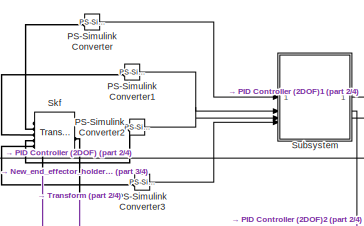
[diagram: root canvas - part 1/4, top center region]
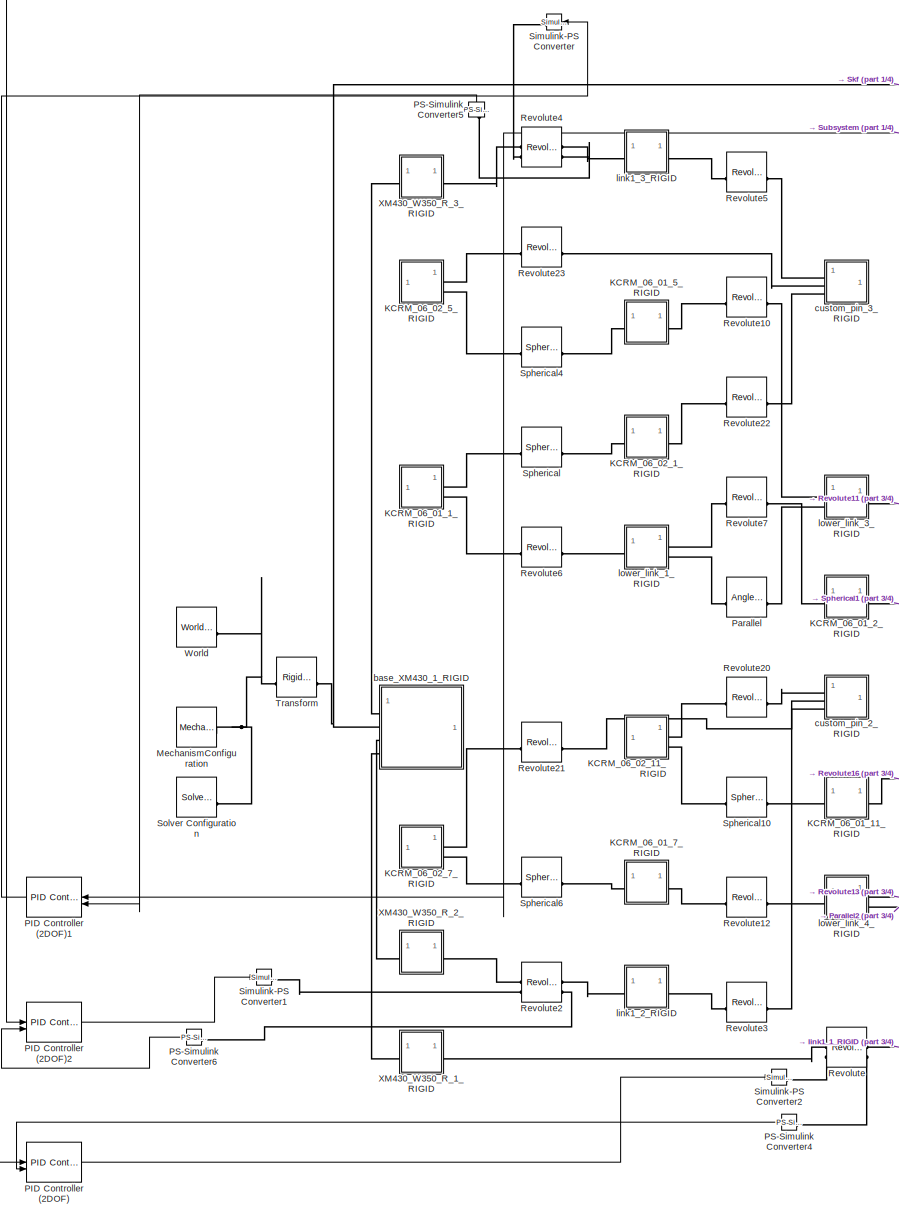
[diagram: root canvas - part 2/4, left side, full height]
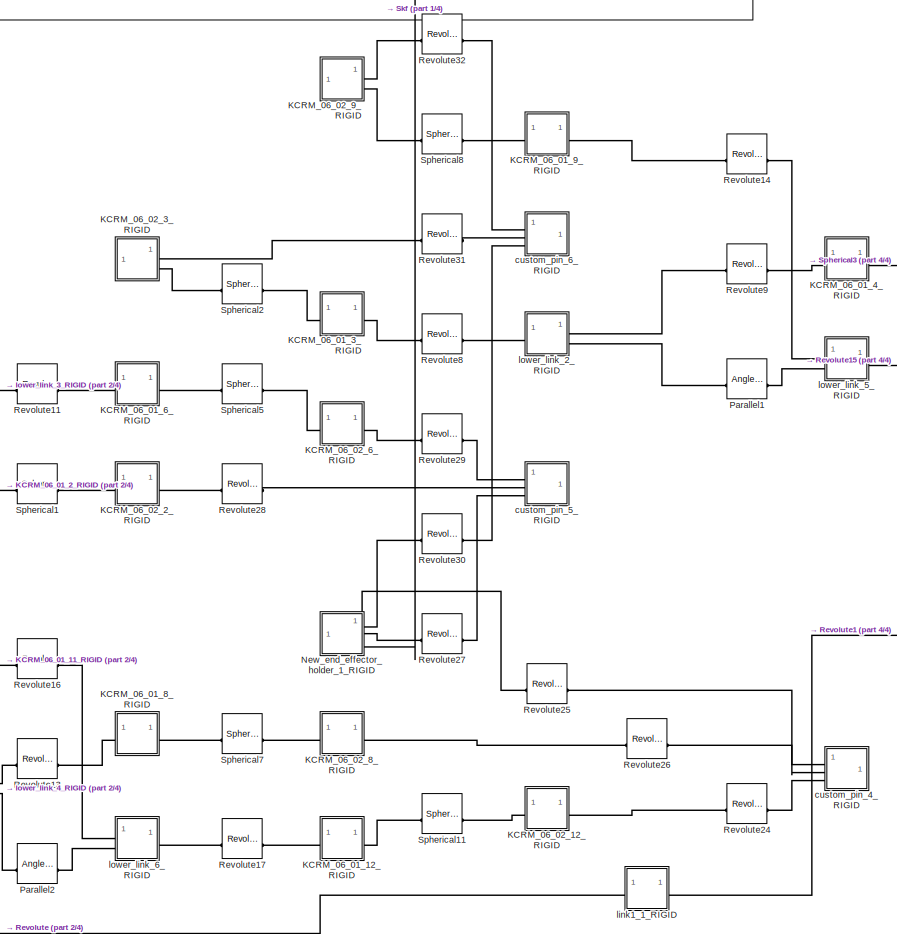
[diagram: root canvas - part 3/4, central region]
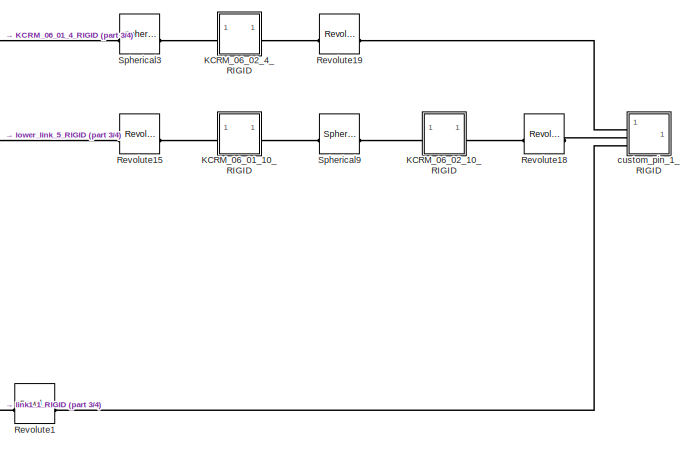
[diagram: root canvas - part 4/4, middle right region]
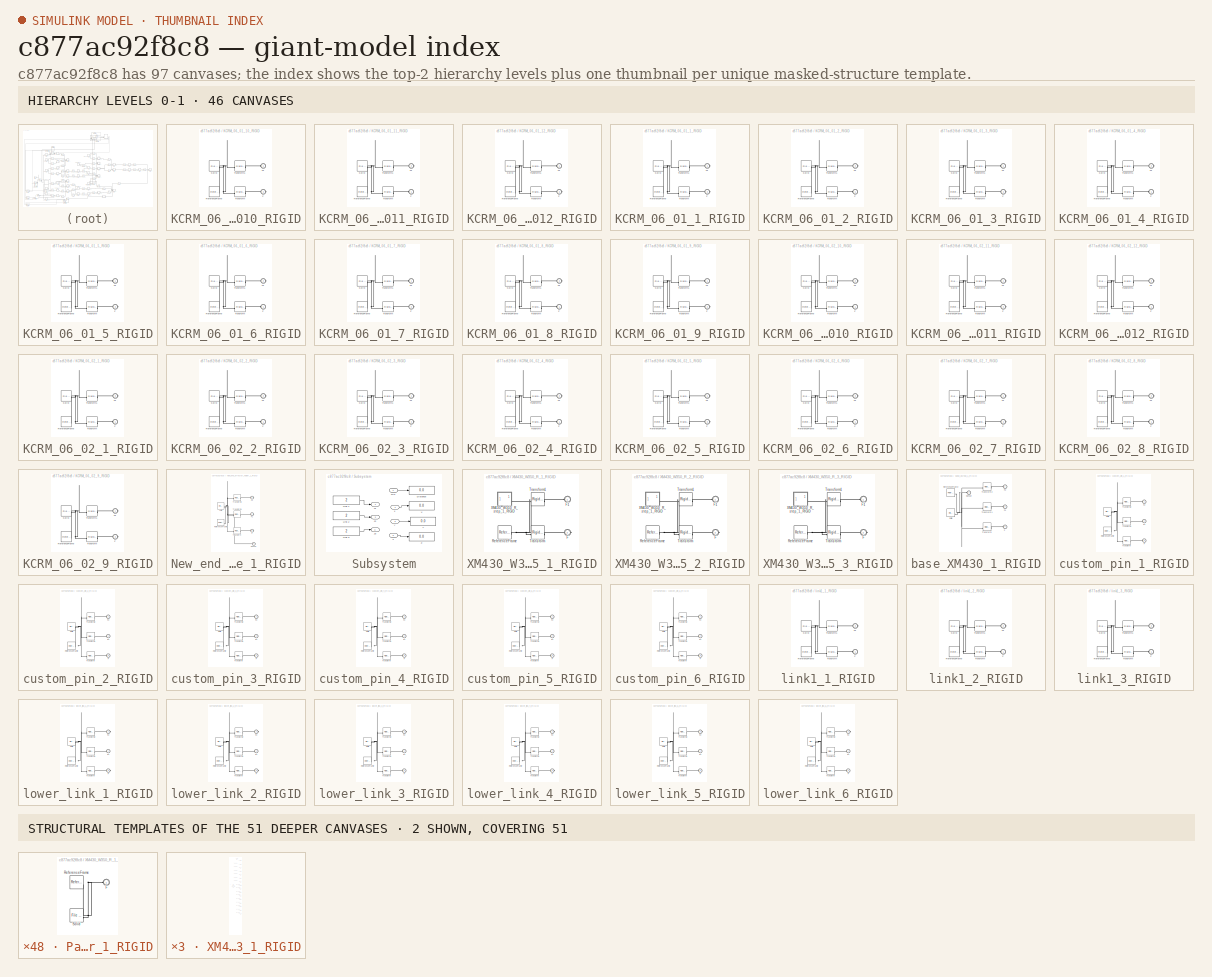
[diagram: thumbnail index - top-2 hierarchy levels (46 canvases) + 2 structural-template representatives of the remaining 51 canvases]
MODEL slx_c877ac92f8c8
KIND model
CONFIG AbsTol = auto
CONFIG EnableMultiTasking = off
CONFIG FixedStep = auto
CONFIG MaxStep = auto
CONFIG MinStep = auto
CONFIG RelTol = 1e-3
CONFIG SampleTimeConstraint = Unconstrained
CONFIG SolverName = VariableStepAuto
CONFIG StartTime = 0.0
CONFIG StopTime = 10.0
WORKSPACE source: external: MATLAB File  (data not in archive)
BLOCK [SubSystem] KCRM_06_01_10_RIGID
BLOCK [PMIOPort] KCRM_06_01_10_RIGID/F
  Port = 2
  Side = Right
BLOCK [PMIOPort] KCRM_06_01_10_RIGID/F1
  Side = Left
BLOCK [Reference] KCRM_06_01_10_RIGID/ReferenceFrame  REF=sm_lib/Frames and
Transforms/Reference
Frame
  SourceBlock = sm_lib/Frames and\nTransforms/Reference\nFrame
  SourceType = Reference\nFrame
BLOCK [Reference] KCRM_06_01_10_RIGID/Solid  REF=sm_lib/Body Elements/File Solid
  SourceBlock = sm_lib/Body Elements/File Solid
  SourceType = File Solid
BLOCK [Reference] KCRM_06_01_10_RIGID/Transform  REF=sm_lib/Frames and
Transforms/Rigid
Transform
  SourceBlock = sm_lib/Frames and\nTransforms/Rigid\nTransform
  SourceType = Rigid\nTransform
BLOCK [Reference] KCRM_06_01_10_RIGID/Transform1  REF=sm_lib/Frames and
Transforms/Rigid
Transform
  SourceBlock = sm_lib/Frames and\nTransforms/Rigid\nTransform
  SourceType = Rigid\nTransform
BLOCK [SubSystem] KCRM_06_01_11_RIGID
BLOCK [PMIOPort] KCRM_06_01_11_RIGID/F
  Side = Left
BLOCK [PMIOPort] KCRM_06_01_11_RIGID/F1
  Port = 2
  Side = Right
BLOCK [Reference] KCRM_06_01_11_RIGID/ReferenceFrame  REF=sm_lib/Frames and
Transforms/Reference
Frame
  SourceBlock = sm_lib/Frames and\nTransforms/Reference\nFrame
  SourceType = Reference\nFrame
BLOCK [Reference] KCRM_06_01_11_RIGID/Solid  REF=sm_lib/Body Elements/File Solid
  SourceBlock = sm_lib/Body Elements/File Solid
  SourceType = File Solid
BLOCK [Reference] KCRM_06_01_11_RIGID/Transform  REF=sm_lib/Frames and
Transforms/Rigid
Transform
  SourceBlock = sm_lib/Frames and\nTransforms/Rigid\nTransform
  SourceType = Rigid\nTransform
BLOCK [Reference] KCRM_06_01_11_RIGID/Transform1  REF=sm_lib/Frames and
Transforms/Rigid
Transform
  SourceBlock = sm_lib/Frames and\nTransforms/Rigid\nTransform
  SourceType = Rigid\nTransform
BLOCK [SubSystem] KCRM_06_01_12_RIGID
BLOCK [PMIOPort] KCRM_06_01_12_RIGID/F
  Port = 2
  Side = Right
BLOCK [PMIOPort] KCRM_06_01_12_RIGID/F1
  Side = Left
BLOCK [Reference] KCRM_06_01_12_RIGID/ReferenceFrame  REF=sm_lib/Frames and
Transforms/Reference
Frame
  SourceBlock = sm_lib/Frames and\nTransforms/Reference\nFrame
  SourceType = Reference\nFrame
BLOCK [Reference] KCRM_06_01_12_RIGID/Solid  REF=sm_lib/Body Elements/File Solid
  SourceBlock = sm_lib/Body Elements/File Solid
  SourceType = File Solid
BLOCK [Reference] KCRM_06_01_12_RIGID/Transform  REF=sm_lib/Frames and
Transforms/Rigid
Transform
  SourceBlock = sm_lib/Frames and\nTransforms/Rigid\nTransform
  SourceType = Rigid\nTransform
BLOCK [Reference] KCRM_06_01_12_RIGID/Transform1  REF=sm_lib/Frames and
Transforms/Rigid
Transform
  SourceBlock = sm_lib/Frames and\nTransforms/Rigid\nTransform
  SourceType = Rigid\nTransform
BLOCK [SubSystem] KCRM_06_01_1_RIGID
BLOCK [PMIOPort] KCRM_06_01_1_RIGID/F
  Port = 2
  Side = Right
BLOCK [PMIOPort] KCRM_06_01_1_RIGID/F1
  Side = Right
BLOCK [Reference] KCRM_06_01_1_RIGID/ReferenceFrame  REF=sm_lib/Frames and
Transforms/Reference
Frame
  SourceBlock = sm_lib/Frames and\nTransforms/Reference\nFrame
  SourceType = Reference\nFrame
BLOCK [Reference] KCRM_06_01_1_RIGID/Solid  REF=sm_lib/Body Elements/File Solid
  SourceBlock = sm_lib/Body Elements/File Solid
  SourceType = File Solid
BLOCK [Reference] KCRM_06_01_1_RIGID/Transform  REF=sm_lib/Frames and
Transforms/Rigid
Transform
  SourceBlock = sm_lib/Frames and\nTransforms/Rigid\nTransform
  SourceType = Rigid\nTransform
BLOCK [Reference] KCRM_06_01_1_RIGID/Transform1  REF=sm_lib/Frames and
Transforms/Rigid
Transform
  SourceBlock = sm_lib/Frames and\nTransforms/Rigid\nTransform
  SourceType = Rigid\nTransform
BLOCK [SubSystem] KCRM_06_01_2_RIGID
BLOCK [PMIOPort] KCRM_06_01_2_RIGID/F
  Side = Left
BLOCK [PMIOPort] KCRM_06_01_2_RIGID/F1
  Port = 2
  Side = Right
BLOCK [Reference] KCRM_06_01_2_RIGID/ReferenceFrame  REF=sm_lib/Frames and
Transforms/Reference
Frame
  SourceBlock = sm_lib/Frames and\nTransforms/Reference\nFrame
  SourceType = Reference\nFrame
BLOCK [Reference] KCRM_06_01_2_RIGID/Solid  REF=sm_lib/Body Elements/File Solid
  SourceBlock = sm_lib/Body Elements/File Solid
  SourceType = File Solid
BLOCK [Reference] KCRM_06_01_2_RIGID/Transform  REF=sm_lib/Frames and
Transforms/Rigid
Transform
  SourceBlock = sm_lib/Frames and\nTransforms/Rigid\nTransform
  SourceType = Rigid\nTransform
BLOCK [Reference] KCRM_06_01_2_RIGID/Transform1  REF=sm_lib/Frames and
Transforms/Rigid
Transform
  SourceBlock = sm_lib/Frames and\nTransforms/Rigid\nTransform
  SourceType = Rigid\nTransform
BLOCK [SubSystem] KCRM_06_01_3_RIGID
BLOCK [PMIOPort] KCRM_06_01_3_RIGID/F
  Port = 2
  Side = Right
BLOCK [PMIOPort] KCRM_06_01_3_RIGID/F1
  Side = Left
BLOCK [Reference] KCRM_06_01_3_RIGID/ReferenceFrame  REF=sm_lib/Frames and
Transforms/Reference
Frame
  SourceBlock = sm_lib/Frames and\nTransforms/Reference\nFrame
  SourceType = Reference\nFrame
BLOCK [Reference] KCRM_06_01_3_RIGID/Solid  REF=sm_lib/Body Elements/File Solid
  SourceBlock = sm_lib/Body Elements/File Solid
  SourceType = File Solid
BLOCK [Reference] KCRM_06_01_3_RIGID/Transform  REF=sm_lib/Frames and
Transforms/Rigid
Transform
  SourceBlock = sm_lib/Frames and\nTransforms/Rigid\nTransform
  SourceType = Rigid\nTransform
BLOCK [Reference] KCRM_06_01_3_RIGID/Transform1  REF=sm_lib/Frames and
Transforms/Rigid
Transform
  SourceBlock = sm_lib/Frames and\nTransforms/Rigid\nTransform
  SourceType = Rigid\nTransform
BLOCK [SubSystem] KCRM_06_01_4_RIGID
BLOCK [PMIOPort] KCRM_06_01_4_RIGID/F
  Side = Left
BLOCK [PMIOPort] KCRM_06_01_4_RIGID/F1
  Port = 2
  Side = Right
BLOCK [Reference] KCRM_06_01_4_RIGID/ReferenceFrame  REF=sm_lib/Frames and
Transforms/Reference
Frame
  SourceBlock = sm_lib/Frames and\nTransforms/Reference\nFrame
  SourceType = Reference\nFrame
BLOCK [Reference] KCRM_06_01_4_RIGID/Solid  REF=sm_lib/Body Elements/File Solid
  SourceBlock = sm_lib/Body Elements/File Solid
  SourceType = File Solid
BLOCK [Reference] KCRM_06_01_4_RIGID/Transform  REF=sm_lib/Frames and
Transforms/Rigid
Transform
  SourceBlock = sm_lib/Frames and\nTransforms/Rigid\nTransform
  SourceType = Rigid\nTransform
BLOCK [Reference] KCRM_06_01_4_RIGID/Transform1  REF=sm_lib/Frames and
Transforms/Rigid
Transform
  SourceBlock = sm_lib/Frames and\nTransforms/Rigid\nTransform
  SourceType = Rigid\nTransform
BLOCK [SubSystem] KCRM_06_01_5_RIGID
BLOCK [PMIOPort] KCRM_06_01_5_RIGID/F
  Port = 2
  Side = Right
BLOCK [PMIOPort] KCRM_06_01_5_RIGID/F1
  Side = Left
BLOCK [Reference] KCRM_06_01_5_RIGID/ReferenceFrame  REF=sm_lib/Frames and
Transforms/Reference
Frame
  SourceBlock = sm_lib/Frames and\nTransforms/Reference\nFrame
  SourceType = Reference\nFrame
BLOCK [Reference] KCRM_06_01_5_RIGID/Solid  REF=sm_lib/Body Elements/File Solid
  SourceBlock = sm_lib/Body Elements/File Solid
  SourceType = File Solid
BLOCK [Reference] KCRM_06_01_5_RIGID/Transform  REF=sm_lib/Frames and
Transforms/Rigid
Transform
  SourceBlock = sm_lib/Frames and\nTransforms/Rigid\nTransform
  SourceType = Rigid\nTransform
BLOCK [Reference] KCRM_06_01_5_RIGID/Transform1  REF=sm_lib/Frames and
Transforms/Rigid
Transform
  SourceBlock = sm_lib/Frames and\nTransforms/Rigid\nTransform
  SourceType = Rigid\nTransform
BLOCK [SubSystem] KCRM_06_01_6_RIGID
BLOCK [PMIOPort] KCRM_06_01_6_RIGID/F
  Side = Left
BLOCK [PMIOPort] KCRM_06_01_6_RIGID/F1
  Port = 2
  Side = Right
BLOCK [Reference] KCRM_06_01_6_RIGID/ReferenceFrame  REF=sm_lib/Frames and
Transforms/Reference
Frame
  SourceBlock = sm_lib/Frames and\nTransforms/Reference\nFrame
  SourceType = Reference\nFrame
BLOCK [Reference] KCRM_06_01_6_RIGID/Solid  REF=sm_lib/Body Elements/File Solid
  SourceBlock = sm_lib/Body Elements/File Solid
  SourceType = File Solid
BLOCK [Reference] KCRM_06_01_6_RIGID/Transform  REF=sm_lib/Frames and
Transforms/Rigid
Transform
  SourceBlock = sm_lib/Frames and\nTransforms/Rigid\nTransform
  SourceType = Rigid\nTransform
BLOCK [Reference] KCRM_06_01_6_RIGID/Transform1  REF=sm_lib/Frames and
Transforms/Rigid
Transform
  SourceBlock = sm_lib/Frames and\nTransforms/Rigid\nTransform
  SourceType = Rigid\nTransform
BLOCK [SubSystem] KCRM_06_01_7_RIGID
BLOCK [PMIOPort] KCRM_06_01_7_RIGID/F
  Port = 2
  Side = Right
BLOCK [PMIOPort] KCRM_06_01_7_RIGID/F1
  Side = Left
BLOCK [Reference] KCRM_06_01_7_RIGID/ReferenceFrame  REF=sm_lib/Frames and
Transforms/Reference
Frame
  SourceBlock = sm_lib/Frames and\nTransforms/Reference\nFrame
  SourceType = Reference\nFrame
BLOCK [Reference] KCRM_06_01_7_RIGID/Solid  REF=sm_lib/Body Elements/File Solid
  SourceBlock = sm_lib/Body Elements/File Solid
  SourceType = File Solid
BLOCK [Reference] KCRM_06_01_7_RIGID/Transform  REF=sm_lib/Frames and
Transforms/Rigid
Transform
  SourceBlock = sm_lib/Frames and\nTransforms/Rigid\nTransform
  SourceType = Rigid\nTransform
BLOCK [Reference] KCRM_06_01_7_RIGID/Transform1  REF=sm_lib/Frames and
Transforms/Rigid
Transform
  SourceBlock = sm_lib/Frames and\nTransforms/Rigid\nTransform
  SourceType = Rigid\nTransform
BLOCK [SubSystem] KCRM_06_01_8_RIGID
BLOCK [PMIOPort] KCRM_06_01_8_RIGID/F
  Side = Left
BLOCK [PMIOPort] KCRM_06_01_8_RIGID/F1
  Port = 2
  Side = Right
BLOCK [Reference] KCRM_06_01_8_RIGID/ReferenceFrame  REF=sm_lib/Frames and
Transforms/Reference
Frame
  SourceBlock = sm_lib/Frames and\nTransforms/Reference\nFrame
  SourceType = Reference\nFrame
BLOCK [Reference] KCRM_06_01_8_RIGID/Solid  REF=sm_lib/Body Elements/File Solid
  SourceBlock = sm_lib/Body Elements/File Solid
  SourceType = File Solid
BLOCK [Reference] KCRM_06_01_8_RIGID/Transform  REF=sm_lib/Frames and
Transforms/Rigid
Transform
  SourceBlock = sm_lib/Frames and\nTransforms/Rigid\nTransform
  SourceType = Rigid\nTransform
BLOCK [Reference] KCRM_06_01_8_RIGID/Transform1  REF=sm_lib/Frames and
Transforms/Rigid
Transform
  SourceBlock = sm_lib/Frames and\nTransforms/Rigid\nTransform
  SourceType = Rigid\nTransform
BLOCK [SubSystem] KCRM_06_01_9_RIGID
BLOCK [PMIOPort] KCRM_06_01_9_RIGID/F
  Port = 2
  Side = Right
BLOCK [PMIOPort] KCRM_06_01_9_RIGID/F1
  Side = Left
BLOCK [Reference] KCRM_06_01_9_RIGID/ReferenceFrame  REF=sm_lib/Frames and
Transforms/Reference
Frame
  SourceBlock = sm_lib/Frames and\nTransforms/Reference\nFrame
  SourceType = Reference\nFrame
BLOCK [Reference] KCRM_06_01_9_RIGID/Solid  REF=sm_lib/Body Elements/File Solid
  SourceBlock = sm_lib/Body Elements/File Solid
  SourceType = File Solid
BLOCK [Reference] KCRM_06_01_9_RIGID/Transform  REF=sm_lib/Frames and
Transforms/Rigid
Transform
  SourceBlock = sm_lib/Frames and\nTransforms/Rigid\nTransform
  SourceType = Rigid\nTransform
BLOCK [Reference] KCRM_06_01_9_RIGID/Transform1  REF=sm_lib/Frames and
Transforms/Rigid
Transform
  SourceBlock = sm_lib/Frames and\nTransforms/Rigid\nTransform
  SourceType = Rigid\nTransform
BLOCK [SubSystem] KCRM_06_02_10_RIGID
BLOCK [PMIOPort] KCRM_06_02_10_RIGID/F
  Side = Left
BLOCK [PMIOPort] KCRM_06_02_10_RIGID/F1
  Port = 2
  Side = Right
BLOCK [Reference] KCRM_06_02_10_RIGID/ReferenceFrame  REF=sm_lib/Frames and
Transforms/Reference
Frame
  SourceBlock = sm_lib/Frames and\nTransforms/Reference\nFrame
  SourceType = Reference\nFrame
BLOCK [Reference] KCRM_06_02_10_RIGID/Solid  REF=sm_lib/Body Elements/File Solid
  SourceBlock = sm_lib/Body Elements/File Solid
  SourceType = File Solid
BLOCK [Reference] KCRM_06_02_10_RIGID/Transform  REF=sm_lib/Frames and
Transforms/Rigid
Transform
  SourceBlock = sm_lib/Frames and\nTransforms/Rigid\nTransform
  SourceType = Rigid\nTransform
BLOCK [Reference] KCRM_06_02_10_RIGID/Transform1  REF=sm_lib/Frames and
Transforms/Rigid
Transform
  SourceBlock = sm_lib/Frames and\nTransforms/Rigid\nTransform
  SourceType = Rigid\nTransform
BLOCK [SubSystem] KCRM_06_02_11_RIGID
BLOCK [PMIOPort] KCRM_06_02_11_RIGID/F
  Port = 2
  Side = Right
BLOCK [PMIOPort] KCRM_06_02_11_RIGID/F1
  Side = Right
BLOCK [Reference] KCRM_06_02_11_RIGID/ReferenceFrame  REF=sm_lib/Frames and
Transforms/Reference
Frame
  SourceBlock = sm_lib/Frames and\nTransforms/Reference\nFrame
  SourceType = Reference\nFrame
BLOCK [Reference] KCRM_06_02_11_RIGID/Solid  REF=sm_lib/Body Elements/File Solid
  SourceBlock = sm_lib/Body Elements/File Solid
  SourceType = File Solid
BLOCK [Reference] KCRM_06_02_11_RIGID/Transform  REF=sm_lib/Frames and
Transforms/Rigid
Transform
  SourceBlock = sm_lib/Frames and\nTransforms/Rigid\nTransform
  SourceType = Rigid\nTransform
BLOCK [Reference] KCRM_06_02_11_RIGID/Transform1  REF=sm_lib/Frames and
Transforms/Rigid
Transform
  SourceBlock = sm_lib/Frames and\nTransforms/Rigid\nTransform
  SourceType = Rigid\nTransform
BLOCK [SubSystem] KCRM_06_02_12_RIGID
BLOCK [PMIOPort] KCRM_06_02_12_RIGID/F
  Side = Left
BLOCK [PMIOPort] KCRM_06_02_12_RIGID/F1
  Port = 2
  Side = Right
BLOCK [Reference] KCRM_06_02_12_RIGID/ReferenceFrame  REF=sm_lib/Frames and
Transforms/Reference
Frame
  SourceBlock = sm_lib/Frames and\nTransforms/Reference\nFrame
  SourceType = Reference\nFrame
BLOCK [Reference] KCRM_06_02_12_RIGID/Solid  REF=sm_lib/Body Elements/File Solid
  SourceBlock = sm_lib/Body Elements/File Solid
  SourceType = File Solid
BLOCK [Reference] KCRM_06_02_12_RIGID/Transform  REF=sm_lib/Frames and
Transforms/Rigid
Transform
  SourceBlock = sm_lib/Frames and\nTransforms/Rigid\nTransform
  SourceType = Rigid\nTransform
BLOCK [Reference] KCRM_06_02_12_RIGID/Transform1  REF=sm_lib/Frames and
Transforms/Rigid
Transform
  SourceBlock = sm_lib/Frames and\nTransforms/Rigid\nTransform
  SourceType = Rigid\nTransform
BLOCK [SubSystem] KCRM_06_02_1_RIGID
BLOCK [PMIOPort] KCRM_06_02_1_RIGID/F
  Side = Left
BLOCK [PMIOPort] KCRM_06_02_1_RIGID/F1
  Port = 2
  Side = Right
BLOCK [Reference] KCRM_06_02_1_RIGID/ReferenceFrame  REF=sm_lib/Frames and
Transforms/Reference
Frame
  SourceBlock = sm_lib/Frames and\nTransforms/Reference\nFrame
  SourceType = Reference\nFrame
BLOCK [Reference] KCRM_06_02_1_RIGID/Solid  REF=sm_lib/Body Elements/File Solid
  SourceBlock = sm_lib/Body Elements/File Solid
  SourceType = File Solid
BLOCK [Reference] KCRM_06_02_1_RIGID/Transform  REF=sm_lib/Frames and
Transforms/Rigid
Transform
  SourceBlock = sm_lib/Frames and\nTransforms/Rigid\nTransform
  SourceType = Rigid\nTransform
BLOCK [Reference] KCRM_06_02_1_RIGID/Transform1  REF=sm_lib/Frames and
Transforms/Rigid
Transform
  SourceBlock = sm_lib/Frames and\nTransforms/Rigid\nTransform
  SourceType = Rigid\nTransform
BLOCK [SubSystem] KCRM_06_02_2_RIGID
BLOCK [PMIOPort] KCRM_06_02_2_RIGID/F
  Side = Left
BLOCK [PMIOPort] KCRM_06_02_2_RIGID/F1
  Port = 2
  Side = Right
BLOCK [Reference] KCRM_06_02_2_RIGID/ReferenceFrame  REF=sm_lib/Frames and
Transforms/Reference
Frame
  SourceBlock = sm_lib/Frames and\nTransforms/Reference\nFrame
  SourceType = Reference\nFrame
BLOCK [Reference] KCRM_06_02_2_RIGID/Solid  REF=sm_lib/Body Elements/File Solid
  SourceBlock = sm_lib/Body Elements/File Solid
  SourceType = File Solid
BLOCK [Reference] KCRM_06_02_2_RIGID/Transform  REF=sm_lib/Frames and
Transforms/Rigid
Transform
  SourceBlock = sm_lib/Frames and\nTransforms/Rigid\nTransform
  SourceType = Rigid\nTransform
BLOCK [Reference] KCRM_06_02_2_RIGID/Transform1  REF=sm_lib/Frames and
Transforms/Rigid
Transform
  SourceBlock = sm_lib/Frames and\nTransforms/Rigid\nTransform
  SourceType = Rigid\nTransform
BLOCK [SubSystem] KCRM_06_02_3_RIGID
BLOCK [PMIOPort] KCRM_06_02_3_RIGID/F
  Port = 2
  Side = Right
BLOCK [PMIOPort] KCRM_06_02_3_RIGID/F1
  Side = Right
BLOCK [Reference] KCRM_06_02_3_RIGID/ReferenceFrame  REF=sm_lib/Frames and
Transforms/Reference
Frame
  SourceBlock = sm_lib/Frames and\nTransforms/Reference\nFrame
  SourceType = Reference\nFrame
BLOCK [Reference] KCRM_06_02_3_RIGID/Solid  REF=sm_lib/Body Elements/File Solid
  SourceBlock = sm_lib/Body Elements/File Solid
  SourceType = File Solid
BLOCK [Reference] KCRM_06_02_3_RIGID/Transform  REF=sm_lib/Frames and
Transforms/Rigid
Transform
  SourceBlock = sm_lib/Frames and\nTransforms/Rigid\nTransform
  SourceType = Rigid\nTransform
BLOCK [Reference] KCRM_06_02_3_RIGID/Transform1  REF=sm_lib/Frames and
Transforms/Rigid
Transform
  SourceBlock = sm_lib/Frames and\nTransforms/Rigid\nTransform
  SourceType = Rigid\nTransform
BLOCK [SubSystem] KCRM_06_02_4_RIGID
BLOCK [PMIOPort] KCRM_06_02_4_RIGID/F
  Side = Left
BLOCK [PMIOPort] KCRM_06_02_4_RIGID/F1
  Port = 2
  Side = Right
BLOCK [Reference] KCRM_06_02_4_RIGID/ReferenceFrame  REF=sm_lib/Frames and
Transforms/Reference
Frame
  SourceBlock = sm_lib/Frames and\nTransforms/Reference\nFrame
  SourceType = Reference\nFrame
BLOCK [Reference] KCRM_06_02_4_RIGID/Solid  REF=sm_lib/Body Elements/File Solid
  SourceBlock = sm_lib/Body Elements/File Solid
  SourceType = File Solid
BLOCK [Reference] KCRM_06_02_4_RIGID/Transform  REF=sm_lib/Frames and
Transforms/Rigid
Transform
  SourceBlock = sm_lib/Frames and\nTransforms/Rigid\nTransform
  SourceType = Rigid\nTransform
BLOCK [Reference] KCRM_06_02_4_RIGID/Transform1  REF=sm_lib/Frames and
Transforms/Rigid
Transform
  SourceBlock = sm_lib/Frames and\nTransforms/Rigid\nTransform
  SourceType = Rigid\nTransform
BLOCK [SubSystem] KCRM_06_02_5_RIGID
BLOCK [PMIOPort] KCRM_06_02_5_RIGID/F
  Port = 2
  Side = Right
BLOCK [PMIOPort] KCRM_06_02_5_RIGID/F1
  Side = Right
BLOCK [Reference] KCRM_06_02_5_RIGID/ReferenceFrame  REF=sm_lib/Frames and
Transforms/Reference
Frame
  SourceBlock = sm_lib/Frames and\nTransforms/Reference\nFrame
  SourceType = Reference\nFrame
BLOCK [Reference] KCRM_06_02_5_RIGID/Solid  REF=sm_lib/Body Elements/File Solid
  SourceBlock = sm_lib/Body Elements/File Solid
  SourceType = File Solid
BLOCK [Reference] KCRM_06_02_5_RIGID/Transform  REF=sm_lib/Frames and
Transforms/Rigid
Transform
  SourceBlock = sm_lib/Frames and\nTransforms/Rigid\nTransform
  SourceType = Rigid\nTransform
BLOCK [Reference] KCRM_06_02_5_RIGID/Transform1  REF=sm_lib/Frames and
Transforms/Rigid
Transform
  SourceBlock = sm_lib/Frames and\nTransforms/Rigid\nTransform
  SourceType = Rigid\nTransform
BLOCK [SubSystem] KCRM_06_02_6_RIGID
BLOCK [PMIOPort] KCRM_06_02_6_RIGID/F
  Side = Left
BLOCK [PMIOPort] KCRM_06_02_6_RIGID/F1
  Port = 2
  Side = Right
BLOCK [Reference] KCRM_06_02_6_RIGID/ReferenceFrame  REF=sm_lib/Frames and
Transforms/Reference
Frame
  SourceBlock = sm_lib/Frames and\nTransforms/Reference\nFrame
  SourceType = Reference\nFrame
BLOCK [Reference] KCRM_06_02_6_RIGID/Solid  REF=sm_lib/Body Elements/File Solid
  SourceBlock = sm_lib/Body Elements/File Solid
  SourceType = File Solid
BLOCK [Reference] KCRM_06_02_6_RIGID/Transform  REF=sm_lib/Frames and
Transforms/Rigid
Transform
  SourceBlock = sm_lib/Frames and\nTransforms/Rigid\nTransform
  SourceType = Rigid\nTransform
BLOCK [Reference] KCRM_06_02_6_RIGID/Transform1  REF=sm_lib/Frames and
Transforms/Rigid
Transform
  SourceBlock = sm_lib/Frames and\nTransforms/Rigid\nTransform
  SourceType = Rigid\nTransform
BLOCK [SubSystem] KCRM_06_02_7_RIGID
BLOCK [PMIOPort] KCRM_06_02_7_RIGID/F
  Port = 2
  Side = Right
BLOCK [PMIOPort] KCRM_06_02_7_RIGID/F1
  Side = Right
BLOCK [Reference] KCRM_06_02_7_RIGID/ReferenceFrame  REF=sm_lib/Frames and
Transforms/Reference
Frame
  SourceBlock = sm_lib/Frames and\nTransforms/Reference\nFrame
  SourceType = Reference\nFrame
BLOCK [Reference] KCRM_06_02_7_RIGID/Solid  REF=sm_lib/Body Elements/File Solid
  SourceBlock = sm_lib/Body Elements/File Solid
  SourceType = File Solid
BLOCK [Reference] KCRM_06_02_7_RIGID/Transform  REF=sm_lib/Frames and
Transforms/Rigid
Transform
  SourceBlock = sm_lib/Frames and\nTransforms/Rigid\nTransform
  SourceType = Rigid\nTransform
BLOCK [Reference] KCRM_06_02_7_RIGID/Transform1  REF=sm_lib/Frames and
Transforms/Rigid
Transform
  SourceBlock = sm_lib/Frames and\nTransforms/Rigid\nTransform
  SourceType = Rigid\nTransform
BLOCK [SubSystem] KCRM_06_02_8_RIGID
BLOCK [PMIOPort] KCRM_06_02_8_RIGID/F
  Side = Left
BLOCK [PMIOPort] KCRM_06_02_8_RIGID/F1
  Port = 2
  Side = Right
BLOCK [Reference] KCRM_06_02_8_RIGID/ReferenceFrame  REF=sm_lib/Frames and
Transforms/Reference
Frame
  SourceBlock = sm_lib/Frames and\nTransforms/Reference\nFrame
  SourceType = Reference\nFrame
BLOCK [Reference] KCRM_06_02_8_RIGID/Solid  REF=sm_lib/Body Elements/File Solid
  SourceBlock = sm_lib/Body Elements/File Solid
  SourceType = File Solid
BLOCK [Reference] KCRM_06_02_8_RIGID/Transform  REF=sm_lib/Frames and
Transforms/Rigid
Transform
  SourceBlock = sm_lib/Frames and\nTransforms/Rigid\nTransform
  SourceType = Rigid\nTransform
BLOCK [Reference] KCRM_06_02_8_RIGID/Transform1  REF=sm_lib/Frames and
Transforms/Rigid
Transform
  SourceBlock = sm_lib/Frames and\nTransforms/Rigid\nTransform
  SourceType = Rigid\nTransform
BLOCK [SubSystem] KCRM_06_02_9_RIGID
BLOCK [PMIOPort] KCRM_06_02_9_RIGID/F
  Port = 2
  Side = Right
BLOCK [PMIOPort] KCRM_06_02_9_RIGID/F1
  Side = Right
BLOCK [Reference] KCRM_06_02_9_RIGID/ReferenceFrame  REF=sm_lib/Frames and
Transforms/Reference
Frame
  SourceBlock = sm_lib/Frames and\nTransforms/Reference\nFrame
  SourceType = Reference\nFrame
BLOCK [Reference] KCRM_06_02_9_RIGID/Solid  REF=sm_lib/Body Elements/File Solid
  SourceBlock = sm_lib/Body Elements/File Solid
  SourceType = File Solid
BLOCK [Reference] KCRM_06_02_9_RIGID/Transform  REF=sm_lib/Frames and
Transforms/Rigid
Transform
  SourceBlock = sm_lib/Frames and\nTransforms/Rigid\nTransform
  SourceType = Rigid\nTransform
BLOCK [Reference] KCRM_06_02_9_RIGID/Transform1  REF=sm_lib/Frames and
Transforms/Rigid
Transform
  SourceBlock = sm_lib/Frames and\nTransforms/Rigid\nTransform
  SourceType = Rigid\nTransform
BLOCK [Reference] MechanismConfiguration  REF=sm_lib/Utilities/Mechanism
Configuration
  SourceBlock = sm_lib/Utilities/Mechanism\nConfiguration
  SourceType = Mechanism\nConfiguration
BLOCK [SubSystem] New_end_effector_holder_1_RIGID
BLOCK [PMIOPort] New_end_effector_holder_1_RIGID/F
  Port = 3
  Side = Right
BLOCK [PMIOPort] New_end_effector_holder_1_RIGID/F1
  Port = 2
  Side = Right
BLOCK [PMIOPort] New_end_effector_holder_1_RIGID/F2
  Side = Right
BLOCK [Reference] New_end_effector_holder_1_RIGID/ReferenceFrame  REF=sm_lib/Frames and
Transforms/Reference
Frame
  SourceBlock = sm_lib/Frames and\nTransforms/Reference\nFrame
  SourceType = Reference\nFrame
BLOCK [PMIOPort] New_end_effector_holder_1_RIGID/Sensor
  Port = 4
  Side = Right
BLOCK [Reference] New_end_effector_holder_1_RIGID/Solid  REF=sm_lib/Body Elements/File Solid
  SourceBlock = sm_lib/Body Elements/File Solid
  SourceType = File Solid
BLOCK [Reference] New_end_effector_holder_1_RIGID/Transform  REF=sm_lib/Frames and
Transforms/Rigid
Transform
  SourceBlock = sm_lib/Frames and\nTransforms/Rigid\nTransform
  SourceType = Rigid\nTransform
BLOCK [Reference] New_end_effector_holder_1_RIGID/Transform1  REF=sm_lib/Frames and
Transforms/Rigid
Transform
  SourceBlock = sm_lib/Frames and\nTransforms/Rigid\nTransform
  SourceType = Rigid\nTransform
BLOCK [Reference] New_end_effector_holder_1_RIGID/Transform2  REF=sm_lib/Frames and
Transforms/Rigid
Transform
  SourceBlock = sm_lib/Frames and\nTransforms/Rigid\nTransform
  SourceType = Rigid\nTransform
BLOCK [Reference] PID Controller (2DOF)  REF=slpidlib/PID Controller (2DOF)
  LibrarySourceBlock = simulink/Continuous/PID Controller (2DOF)
  SourceBlock = slpidlib/PID Controller (2DOF)
  SourceType = PID 2dof
BLOCK [Reference] PID Controller (2DOF)1  REF=slpidlib/PID Controller (2DOF)
  LibrarySourceBlock = simulink/Continuous/PID Controller (2DOF)
  NameLocation = top
  SourceBlock = slpidlib/PID Controller (2DOF)
  SourceType = PID 2dof
BLOCK [Reference] PID Controller (2DOF)2  REF=slpidlib/PID Controller (2DOF)
  LibrarySourceBlock = simulink/Continuous/PID Controller (2DOF)
  SourceBlock = slpidlib/PID Controller (2DOF)
  SourceType = PID 2dof
BLOCK [Reference] PS-Simulink Converter  REF=nesl_utility/PS-Simulink
Converter
  SourceBlock = nesl_utility/PS-Simulink\nConverter
  SourceType = PS-Simulink\nConverter
BLOCK [Reference] PS-Simulink Converter1  REF=nesl_utility/PS-Simulink
Converter
  SourceBlock = nesl_utility/PS-Simulink\nConverter
  SourceType = PS-Simulink\nConverter
BLOCK [Reference] PS-Simulink Converter2  REF=nesl_utility/PS-Simulink
Converter
  SourceBlock = nesl_utility/PS-Simulink\nConverter
  SourceType = PS-Simulink\nConverter
BLOCK [Reference] PS-Simulink Converter3  REF=nesl_utility/PS-Simulink
Converter
  SourceBlock = nesl_utility/PS-Simulink\nConverter
  SourceType = PS-Simulink\nConverter
BLOCK [Reference] PS-Simulink Converter4  REF=nesl_utility/PS-Simulink
Converter
  NameLocation = top
  SourceBlock = nesl_utility/PS-Simulink\nConverter
  SourceType = PS-Simulink\nConverter
BLOCK [Reference] PS-Simulink Converter5  REF=nesl_utility/PS-Simulink
Converter
  NameLocation = right
  SourceBlock = nesl_utility/PS-Simulink\nConverter
  SourceType = PS-Simulink\nConverter
BLOCK [Reference] PS-Simulink Converter6  REF=nesl_utility/PS-Simulink
Converter
  NameLocation = top
  SourceBlock = nesl_utility/PS-Simulink\nConverter
  SourceType = PS-Simulink\nConverter
BLOCK [Reference] Parallel  REF=sm_lib/Constraints/Angle
Constraint
  SourceBlock = sm_lib/Constraints/Angle\nConstraint
  SourceType = Angle\nConstraint
BLOCK [Reference] Parallel1  REF=sm_lib/Constraints/Angle
Constraint
  SourceBlock = sm_lib/Constraints/Angle\nConstraint
  SourceType = Angle\nConstraint
BLOCK [Reference] Parallel2  REF=sm_lib/Constraints/Angle
Constraint
  SourceBlock = sm_lib/Constraints/Angle\nConstraint
  SourceType = Angle\nConstraint
BLOCK [Reference] Revolute  REF=sm_lib/Joints/Revolute Joint
  SourceBlock = sm_lib/Joints/Revolute Joint
  SourceType = Revolute Joint
BLOCK [Reference] Revolute1  REF=sm_lib/Joints/Revolute Joint
  SourceBlock = sm_lib/Joints/Revolute Joint
  SourceType = Revolute Joint
BLOCK [Reference] Revolute10  REF=sm_lib/Joints/Revolute Joint
  SourceBlock = sm_lib/Joints/Revolute Joint
  SourceType = Revolute Joint
BLOCK [Reference] Revolute11  REF=sm_lib/Joints/Revolute Joint
  SourceBlock = sm_lib/Joints/Revolute Joint
  SourceType = Revolute Joint
BLOCK [Reference] Revolute12  REF=sm_lib/Joints/Revolute Joint
  SourceBlock = sm_lib/Joints/Revolute Joint
  SourceType = Revolute Joint
BLOCK [Reference] Revolute13  REF=sm_lib/Joints/Revolute Joint
  SourceBlock = sm_lib/Joints/Revolute Joint
  SourceType = Revolute Joint
BLOCK [Reference] Revolute14  REF=sm_lib/Joints/Revolute Joint
  SourceBlock = sm_lib/Joints/Revolute Joint
  SourceType = Revolute Joint
BLOCK [Reference] Revolute15  REF=sm_lib/Joints/Revolute Joint
  SourceBlock = sm_lib/Joints/Revolute Joint
  SourceType = Revolute Joint
BLOCK [Reference] Revolute16  REF=sm_lib/Joints/Revolute Joint
  SourceBlock = sm_lib/Joints/Revolute Joint
  SourceType = Revolute Joint
BLOCK [Reference] Revolute17  REF=sm_lib/Joints/Revolute Joint
  SourceBlock = sm_lib/Joints/Revolute Joint
  SourceType = Revolute Joint
BLOCK [Reference] Revolute18  REF=sm_lib/Joints/Revolute Joint
  SourceBlock = sm_lib/Joints/Revolute Joint
  SourceType = Revolute Joint
BLOCK [Reference] Revolute19  REF=sm_lib/Joints/Revolute Joint
  SourceBlock = sm_lib/Joints/Revolute Joint
  SourceType = Revolute Joint
BLOCK [Reference] Revolute2  REF=sm_lib/Joints/Revolute Joint
  SourceBlock = sm_lib/Joints/Revolute Joint
  SourceType = Revolute Joint
BLOCK [Reference] Revolute20  REF=sm_lib/Joints/Revolute Joint
  SourceBlock = sm_lib/Joints/Revolute Joint
  SourceType = Revolute Joint
BLOCK [Reference] Revolute21  REF=sm_lib/Joints/Revolute Joint
  SourceBlock = sm_lib/Joints/Revolute Joint
  SourceType = Revolute Joint
BLOCK [Reference] Revolute22  REF=sm_lib/Joints/Revolute Joint
  SourceBlock = sm_lib/Joints/Revolute Joint
  SourceType = Revolute Joint
BLOCK [Reference] Revolute23  REF=sm_lib/Joints/Revolute Joint
  SourceBlock = sm_lib/Joints/Revolute Joint
  SourceType = Revolute Joint
BLOCK [Reference] Revolute24  REF=sm_lib/Joints/Revolute Joint
  SourceBlock = sm_lib/Joints/Revolute Joint
  SourceType = Revolute Joint
BLOCK [Reference] Revolute25  REF=sm_lib/Joints/Revolute Joint
  SourceBlock = sm_lib/Joints/Revolute Joint
  SourceType = Revolute Joint
BLOCK [Reference] Revolute26  REF=sm_lib/Joints/Revolute Joint
  SourceBlock = sm_lib/Joints/Revolute Joint
  SourceType = Revolute Joint
BLOCK [Reference] Revolute27  REF=sm_lib/Joints/Revolute Joint
  SourceBlock = sm_lib/Joints/Revolute Joint
  SourceType = Revolute Joint
BLOCK [Reference] Revolute28  REF=sm_lib/Joints/Revolute Joint
  SourceBlock = sm_lib/Joints/Revolute Joint
  SourceType = Revolute Joint
BLOCK [Reference] Revolute29  REF=sm_lib/Joints/Revolute Joint
  SourceBlock = sm_lib/Joints/Revolute Joint
  SourceType = Revolute Joint
BLOCK [Reference] Revolute3  REF=sm_lib/Joints/Revolute Joint
  SourceBlock = sm_lib/Joints/Revolute Joint
  SourceType = Revolute Joint
BLOCK [Reference] Revolute30  REF=sm_lib/Joints/Revolute Joint
  SourceBlock = sm_lib/Joints/Revolute Joint
  SourceType = Revolute Joint
BLOCK [Reference] Revolute31  REF=sm_lib/Joints/Revolute Joint
  SourceBlock = sm_lib/Joints/Revolute Joint
  SourceType = Revolute Joint
BLOCK [Reference] Revolute32  REF=sm_lib/Joints/Revolute Joint
  SourceBlock = sm_lib/Joints/Revolute Joint
  SourceType = Revolute Joint
BLOCK [Reference] Revolute4  REF=sm_lib/Joints/Revolute Joint
  SourceBlock = sm_lib/Joints/Revolute Joint
  SourceType = Revolute Joint
BLOCK [Reference] Revolute5  REF=sm_lib/Joints/Revolute Joint
  SourceBlock = sm_lib/Joints/Revolute Joint
  SourceType = Revolute Joint
BLOCK [Reference] Revolute6  REF=sm_lib/Joints/Revolute Joint
  SourceBlock = sm_lib/Joints/Revolute Joint
  SourceType = Revolute Joint
BLOCK [Reference] Revolute7  REF=sm_lib/Joints/Revolute Joint
  SourceBlock = sm_lib/Joints/Revolute Joint
  SourceType = Revolute Joint
BLOCK [Reference] Revolute8  REF=sm_lib/Joints/Revolute Joint
  SourceBlock = sm_lib/Joints/Revolute Joint
  SourceType = Revolute Joint
BLOCK [Reference] Revolute9  REF=sm_lib/Joints/Revolute Joint
  SourceBlock = sm_lib/Joints/Revolute Joint
  SourceType = Revolute Joint
BLOCK [Reference] Simulink-PS Converter  REF=nesl_utility/Simulink-PS
Converter
  NameLocation = top
  SourceBlock = nesl_utility/Simulink-PS\nConverter
  SourceType = Simulink-PS\nConverter
BLOCK [Reference] Simulink-PS Converter1  REF=nesl_utility/Simulink-PS
Converter
  SourceBlock = nesl_utility/Simulink-PS\nConverter
  SourceType = Simulink-PS\nConverter
BLOCK [Reference] Simulink-PS Converter2  REF=nesl_utility/Simulink-PS
Converter
  SourceBlock = nesl_utility/Simulink-PS\nConverter
  SourceType = Simulink-PS\nConverter
BLOCK [Reference] Skf  REF=sm_lib/Frames and
Transforms/Transform
Sensor
  NameLocation = top
  SourceBlock = sm_lib/Frames and\nTransforms/Transform\nSensor
  SourceType = Transform\nSensor
BLOCK [Reference] Solver Configuration  REF=nesl_utility/Solver
Configuration
  SourceBlock = nesl_utility/Solver\nConfiguration
  SourceType = Solver\nConfiguration
BLOCK [Reference] Spherical  REF=sm_lib/Joints/Spherical
Joint
  SourceBlock = sm_lib/Joints/Spherical\nJoint
  SourceType = Spherical\nJoint
BLOCK [Reference] Spherical1  REF=sm_lib/Joints/Spherical
Joint
  SourceBlock = sm_lib/Joints/Spherical\nJoint
  SourceType = Spherical\nJoint
BLOCK [Reference] Spherical10  REF=sm_lib/Joints/Spherical
Joint
  SourceBlock = sm_lib/Joints/Spherical\nJoint
  SourceType = Spherical\nJoint
BLOCK [Reference] Spherical11  REF=sm_lib/Joints/Spherical
Joint
  SourceBlock = sm_lib/Joints/Spherical\nJoint
  SourceType = Spherical\nJoint
BLOCK [Reference] Spherical2  REF=sm_lib/Joints/Spherical
Joint
  SourceBlock = sm_lib/Joints/Spherical\nJoint
  SourceType = Spherical\nJoint
BLOCK [Reference] Spherical3  REF=sm_lib/Joints/Spherical
Joint
  SourceBlock = sm_lib/Joints/Spherical\nJoint
  SourceType = Spherical\nJoint
BLOCK [Reference] Spherical4  REF=sm_lib/Joints/Spherical
Joint
  SourceBlock = sm_lib/Joints/Spherical\nJoint
  SourceType = Spherical\nJoint
BLOCK [Reference] Spherical5  REF=sm_lib/Joints/Spherical
Joint
  SourceBlock = sm_lib/Joints/Spherical\nJoint
  SourceType = Spherical\nJoint
BLOCK [Reference] Spherical6  REF=sm_lib/Joints/Spherical
Joint
  SourceBlock = sm_lib/Joints/Spherical\nJoint
  SourceType = Spherical\nJoint
BLOCK [Reference] Spherical7  REF=sm_lib/Joints/Spherical
Joint
  SourceBlock = sm_lib/Joints/Spherical\nJoint
  SourceType = Spherical\nJoint
BLOCK [Reference] Spherical8  REF=sm_lib/Joints/Spherical
Joint
  SourceBlock = sm_lib/Joints/Spherical\nJoint
  SourceType = Spherical\nJoint
BLOCK [Reference] Spherical9  REF=sm_lib/Joints/Spherical
Joint
  SourceBlock = sm_lib/Joints/Spherical\nJoint
  SourceType = Spherical\nJoint
BLOCK [SubSystem] Subsystem
BLOCK [Inport] Subsystem/Dis
  Port = 4
BLOCK [Display] Subsystem/Distance
  Decimation = 1
BLOCK [Outport] Subsystem/J1
BLOCK [Outport] Subsystem/J2
  Port = 2
BLOCK [Outport] Subsystem/J3
  Port = 3
BLOCK [Constant] Subsystem/Link 1
  Value = 2
BLOCK [Constant] Subsystem/Link 2
  Value = 2
BLOCK [Constant] Subsystem/Link 3
  Value = 2
BLOCK [Display] Subsystem/X
  Decimation = 1
BLOCK [Display] Subsystem/Y
  Decimation = 1
BLOCK [Display] Subsystem/Z
  Decimation = 1
BLOCK [Inport] Subsystem/x
BLOCK [Inport] Subsystem/y
  Port = 2
BLOCK [Inport] Subsystem/z
  Port = 3
BLOCK [Reference] Transform  REF=sm_lib/Frames and
Transforms/Rigid
Transform
  SourceBlock = sm_lib/Frames and\nTransforms/Rigid\nTransform
  SourceType = Rigid\nTransform
BLOCK [Reference] World  REF=sm_lib/Frames and
Transforms/World Frame
  SourceBlock = sm_lib/Frames and\nTransforms/World Frame
  SourceType = World Frame
BLOCK [SubSystem] XM430_W350_R_1_RIGID
BLOCK [PMIOPort] XM430_W350_R_1_RIGID/F
  Port = 2
  Side = Right
BLOCK [PMIOPort] XM430_W350_R_1_RIGID/F1
  Side = Left
BLOCK [Reference] XM430_W350_R_1_RIGID/ReferenceFrame  REF=sm_lib/Frames and
Transforms/Reference
Frame
  SourceBlock = sm_lib/Frames and\nTransforms/Reference\nFrame
  SourceType = Reference\nFrame
BLOCK [Reference] XM430_W350_R_1_RIGID/Transform  REF=sm_lib/Frames and
Transforms/Rigid
Transform
  SourceBlock = sm_lib/Frames and\nTransforms/Rigid\nTransform
  SourceType = Rigid\nTransform
BLOCK [Reference] XM430_W350_R_1_RIGID/Transform1  REF=sm_lib/Frames and
Transforms/Rigid
Transform
  SourceBlock = sm_lib/Frames and\nTransforms/Rigid\nTransform
  SourceType = Rigid\nTransform
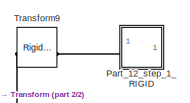
[diagram: XM430_W350_R_1_RIGID/XM430_W350_R_step_1_RIGID - part 1/2, top right region]
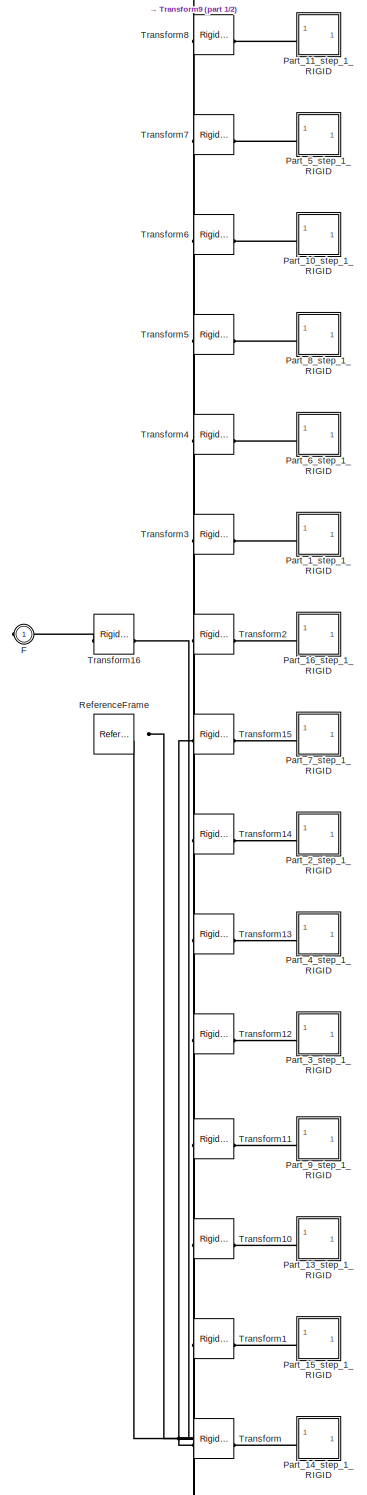
[diagram: XM430_W350_R_1_RIGID/XM430_W350_R_step_1_RIGID - part 2/2, full width, middle band]
BLOCK [SubSystem] XM430_W350_R_1_RIGID/XM430_W350_R_step_1_RIGID
BLOCK [PMIOPort] XM430_W350_R_1_RIGID/XM430_W350_R_step_1_RIGID/F
  Side = Right
BLOCK [SubSystem] XM430_W350_R_1_RIGID/XM430_W350_R_step_1_RIGID/Part_10_step_1_RIGID
BLOCK [PMIOPort] XM430_W350_R_1_RIGID/XM430_W350_R_step_1_RIGID/Part_10_step_1_RIGID/F
  Side = Left
BLOCK [Reference] XM430_W350_R_1_RIGID/XM430_W350_R_step_1_RIGID/Part_10_step_1_RIGID/ReferenceFrame  REF=sm_lib/Frames and
Transforms/Reference
Frame
  SourceBlock = sm_lib/Frames and\nTransforms/Reference\nFrame
  SourceType = Reference\nFrame
BLOCK [Reference] XM430_W350_R_1_RIGID/XM430_W350_R_step_1_RIGID/Part_10_step_1_RIGID/Solid  REF=sm_lib/Body Elements/File Solid
  SourceBlock = sm_lib/Body Elements/File Solid
  SourceType = File Solid
BLOCK [SubSystem] XM430_W350_R_1_RIGID/XM430_W350_R_step_1_RIGID/Part_11_step_1_RIGID
BLOCK [PMIOPort] XM430_W350_R_1_RIGID/XM430_W350_R_step_1_RIGID/Part_11_step_1_RIGID/F
  Side = Left
BLOCK [Reference] XM430_W350_R_1_RIGID/XM430_W350_R_step_1_RIGID/Part_11_step_1_RIGID/ReferenceFrame  REF=sm_lib/Frames and
Transforms/Reference
Frame
  SourceBlock = sm_lib/Frames and\nTransforms/Reference\nFrame
  SourceType = Reference\nFrame
BLOCK [Reference] XM430_W350_R_1_RIGID/XM430_W350_R_step_1_RIGID/Part_11_step_1_RIGID/Solid  REF=sm_lib/Body Elements/File Solid
  SourceBlock = sm_lib/Body Elements/File Solid
  SourceType = File Solid
BLOCK [SubSystem] XM430_W350_R_1_RIGID/XM430_W350_R_step_1_RIGID/Part_12_step_1_RIGID
BLOCK [PMIOPort] XM430_W350_R_1_RIGID/XM430_W350_R_step_1_RIGID/Part_12_step_1_RIGID/F
  Side = Left
BLOCK [Reference] XM430_W350_R_1_RIGID/XM430_W350_R_step_1_RIGID/Part_12_step_1_RIGID/ReferenceFrame  REF=sm_lib/Frames and
Transforms/Reference
Frame
  SourceBlock = sm_lib/Frames and\nTransforms/Reference\nFrame
  SourceType = Reference\nFrame
BLOCK [Reference] XM430_W350_R_1_RIGID/XM430_W350_R_step_1_RIGID/Part_12_step_1_RIGID/Solid  REF=sm_lib/Body Elements/File Solid
  SourceBlock = sm_lib/Body Elements/File Solid
  SourceType = File Solid
BLOCK [SubSystem] XM430_W350_R_1_RIGID/XM430_W350_R_step_1_RIGID/Part_13_step_1_RIGID
BLOCK [PMIOPort] XM430_W350_R_1_RIGID/XM430_W350_R_step_1_RIGID/Part_13_step_1_RIGID/F
  Side = Left
BLOCK [Reference] XM430_W350_R_1_RIGID/XM430_W350_R_step_1_RIGID/Part_13_step_1_RIGID/ReferenceFrame  REF=sm_lib/Frames and
Transforms/Reference
Frame
  SourceBlock = sm_lib/Frames and\nTransforms/Reference\nFrame
  SourceType = Reference\nFrame
BLOCK [Reference] XM430_W350_R_1_RIGID/XM430_W350_R_step_1_RIGID/Part_13_step_1_RIGID/Solid  REF=sm_lib/Body Elements/File Solid
  SourceBlock = sm_lib/Body Elements/File Solid
  SourceType = File Solid
BLOCK [SubSystem] XM430_W350_R_1_RIGID/XM430_W350_R_step_1_RIGID/Part_14_step_1_RIGID
BLOCK [PMIOPort] XM430_W350_R_1_RIGID/XM430_W350_R_step_1_RIGID/Part_14_step_1_RIGID/F
  Side = Left
BLOCK [Reference] XM430_W350_R_1_RIGID/XM430_W350_R_step_1_RIGID/Part_14_step_1_RIGID/ReferenceFrame  REF=sm_lib/Frames and
Transforms/Reference
Frame
  SourceBlock = sm_lib/Frames and\nTransforms/Reference\nFrame
  SourceType = Reference\nFrame
BLOCK [Reference] XM430_W350_R_1_RIGID/XM430_W350_R_step_1_RIGID/Part_14_step_1_RIGID/Solid  REF=sm_lib/Body Elements/File Solid
  SourceBlock = sm_lib/Body Elements/File Solid
  SourceType = File Solid
BLOCK [SubSystem] XM430_W350_R_1_RIGID/XM430_W350_R_step_1_RIGID/Part_15_step_1_RIGID
BLOCK [PMIOPort] XM430_W350_R_1_RIGID/XM430_W350_R_step_1_RIGID/Part_15_step_1_RIGID/F
  Side = Left
BLOCK [Reference] XM430_W350_R_1_RIGID/XM430_W350_R_step_1_RIGID/Part_15_step_1_RIGID/ReferenceFrame  REF=sm_lib/Frames and
Transforms/Reference
Frame
  SourceBlock = sm_lib/Frames and\nTransforms/Reference\nFrame
  SourceType = Reference\nFrame
BLOCK [Reference] XM430_W350_R_1_RIGID/XM430_W350_R_step_1_RIGID/Part_15_step_1_RIGID/Solid  REF=sm_lib/Body Elements/File Solid
  SourceBlock = sm_lib/Body Elements/File Solid
  SourceType = File Solid
BLOCK [SubSystem] XM430_W350_R_1_RIGID/XM430_W350_R_step_1_RIGID/Part_16_step_1_RIGID
BLOCK [PMIOPort] XM430_W350_R_1_RIGID/XM430_W350_R_step_1_RIGID/Part_16_step_1_RIGID/F
  Side = Left
BLOCK [Reference] XM430_W350_R_1_RIGID/XM430_W350_R_step_1_RIGID/Part_16_step_1_RIGID/ReferenceFrame  REF=sm_lib/Frames and
Transforms/Reference
Frame
  SourceBlock = sm_lib/Frames and\nTransforms/Reference\nFrame
  SourceType = Reference\nFrame
BLOCK [Reference] XM430_W350_R_1_RIGID/XM430_W350_R_step_1_RIGID/Part_16_step_1_RIGID/Solid  REF=sm_lib/Body Elements/File Solid
  SourceBlock = sm_lib/Body Elements/File Solid
  SourceType = File Solid
BLOCK [SubSystem] XM430_W350_R_1_RIGID/XM430_W350_R_step_1_RIGID/Part_1_step_1_RIGID
BLOCK [PMIOPort] XM430_W350_R_1_RIGID/XM430_W350_R_step_1_RIGID/Part_1_step_1_RIGID/F
  Side = Left
BLOCK [Reference] XM430_W350_R_1_RIGID/XM430_W350_R_step_1_RIGID/Part_1_step_1_RIGID/ReferenceFrame  REF=sm_lib/Frames and
Transforms/Reference
Frame
  SourceBlock = sm_lib/Frames and\nTransforms/Reference\nFrame
  SourceType = Reference\nFrame
BLOCK [Reference] XM430_W350_R_1_RIGID/XM430_W350_R_step_1_RIGID/Part_1_step_1_RIGID/Solid  REF=sm_lib/Body Elements/File Solid
  SourceBlock = sm_lib/Body Elements/File Solid
  SourceType = File Solid
BLOCK [SubSystem] XM430_W350_R_1_RIGID/XM430_W350_R_step_1_RIGID/Part_2_step_1_RIGID
BLOCK [PMIOPort] XM430_W350_R_1_RIGID/XM430_W350_R_step_1_RIGID/Part_2_step_1_RIGID/F
  Side = Left
BLOCK [Reference] XM430_W350_R_1_RIGID/XM430_W350_R_step_1_RIGID/Part_2_step_1_RIGID/ReferenceFrame  REF=sm_lib/Frames and
Transforms/Reference
Frame
  SourceBlock = sm_lib/Frames and\nTransforms/Reference\nFrame
  SourceType = Reference\nFrame
BLOCK [Reference] XM430_W350_R_1_RIGID/XM430_W350_R_step_1_RIGID/Part_2_step_1_RIGID/Solid  REF=sm_lib/Body Elements/File Solid
  SourceBlock = sm_lib/Body Elements/File Solid
  SourceType = File Solid
BLOCK [SubSystem] XM430_W350_R_1_RIGID/XM430_W350_R_step_1_RIGID/Part_3_step_1_RIGID
BLOCK [PMIOPort] XM430_W350_R_1_RIGID/XM430_W350_R_step_1_RIGID/Part_3_step_1_RIGID/F
  Side = Left
BLOCK [Reference] XM430_W350_R_1_RIGID/XM430_W350_R_step_1_RIGID/Part_3_step_1_RIGID/ReferenceFrame  REF=sm_lib/Frames and
Transforms/Reference
Frame
  SourceBlock = sm_lib/Frames and\nTransforms/Reference\nFrame
  SourceType = Reference\nFrame
BLOCK [Reference] XM430_W350_R_1_RIGID/XM430_W350_R_step_1_RIGID/Part_3_step_1_RIGID/Solid  REF=sm_lib/Body Elements/File Solid
  SourceBlock = sm_lib/Body Elements/File Solid
  SourceType = File Solid
BLOCK [SubSystem] XM430_W350_R_1_RIGID/XM430_W350_R_step_1_RIGID/Part_4_step_1_RIGID
BLOCK [PMIOPort] XM430_W350_R_1_RIGID/XM430_W350_R_step_1_RIGID/Part_4_step_1_RIGID/F
  Side = Left
BLOCK [Reference] XM430_W350_R_1_RIGID/XM430_W350_R_step_1_RIGID/Part_4_step_1_RIGID/ReferenceFrame  REF=sm_lib/Frames and
Transforms/Reference
Frame
  SourceBlock = sm_lib/Frames and\nTransforms/Reference\nFrame
  SourceType = Reference\nFrame
BLOCK [Reference] XM430_W350_R_1_RIGID/XM430_W350_R_step_1_RIGID/Part_4_step_1_RIGID/Solid  REF=sm_lib/Body Elements/File Solid
  SourceBlock = sm_lib/Body Elements/File Solid
  SourceType = File Solid
BLOCK [SubSystem] XM430_W350_R_1_RIGID/XM430_W350_R_step_1_RIGID/Part_5_step_1_RIGID
BLOCK [PMIOPort] XM430_W350_R_1_RIGID/XM430_W350_R_step_1_RIGID/Part_5_step_1_RIGID/F
  Side = Left
BLOCK [Reference] XM430_W350_R_1_RIGID/XM430_W350_R_step_1_RIGID/Part_5_step_1_RIGID/ReferenceFrame  REF=sm_lib/Frames and
Transforms/Reference
Frame
  SourceBlock = sm_lib/Frames and\nTransforms/Reference\nFrame
  SourceType = Reference\nFrame
BLOCK [Reference] XM430_W350_R_1_RIGID/XM430_W350_R_step_1_RIGID/Part_5_step_1_RIGID/Solid  REF=sm_lib/Body Elements/File Solid
  SourceBlock = sm_lib/Body Elements/File Solid
  SourceType = File Solid
BLOCK [SubSystem] XM430_W350_R_1_RIGID/XM430_W350_R_step_1_RIGID/Part_6_step_1_RIGID
BLOCK [PMIOPort] XM430_W350_R_1_RIGID/XM430_W350_R_step_1_RIGID/Part_6_step_1_RIGID/F
  Side = Left
BLOCK [Reference] XM430_W350_R_1_RIGID/XM430_W350_R_step_1_RIGID/Part_6_step_1_RIGID/ReferenceFrame  REF=sm_lib/Frames and
Transforms/Reference
Frame
  SourceBlock = sm_lib/Frames and\nTransforms/Reference\nFrame
  SourceType = Reference\nFrame
BLOCK [Reference] XM430_W350_R_1_RIGID/XM430_W350_R_step_1_RIGID/Part_6_step_1_RIGID/Solid  REF=sm_lib/Body Elements/File Solid
  SourceBlock = sm_lib/Body Elements/File Solid
  SourceType = File Solid
BLOCK [SubSystem] XM430_W350_R_1_RIGID/XM430_W350_R_step_1_RIGID/Part_7_step_1_RIGID
BLOCK [PMIOPort] XM430_W350_R_1_RIGID/XM430_W350_R_step_1_RIGID/Part_7_step_1_RIGID/F
  Side = Left
BLOCK [Reference] XM430_W350_R_1_RIGID/XM430_W350_R_step_1_RIGID/Part_7_step_1_RIGID/ReferenceFrame  REF=sm_lib/Frames and
Transforms/Reference
Frame
  SourceBlock = sm_lib/Frames and\nTransforms/Reference\nFrame
  SourceType = Reference\nFrame
BLOCK [Reference] XM430_W350_R_1_RIGID/XM430_W350_R_step_1_RIGID/Part_7_step_1_RIGID/Solid  REF=sm_lib/Body Elements/File Solid
  SourceBlock = sm_lib/Body Elements/File Solid
  SourceType = File Solid
BLOCK [SubSystem] XM430_W350_R_1_RIGID/XM430_W350_R_step_1_RIGID/Part_8_step_1_RIGID
BLOCK [PMIOPort] XM430_W350_R_1_RIGID/XM430_W350_R_step_1_RIGID/Part_8_step_1_RIGID/F
  Side = Left
BLOCK [Reference] XM430_W350_R_1_RIGID/XM430_W350_R_step_1_RIGID/Part_8_step_1_RIGID/ReferenceFrame  REF=sm_lib/Frames and
Transforms/Reference
Frame
  SourceBlock = sm_lib/Frames and\nTransforms/Reference\nFrame
  SourceType = Reference\nFrame
BLOCK [Reference] XM430_W350_R_1_RIGID/XM430_W350_R_step_1_RIGID/Part_8_step_1_RIGID/Solid  REF=sm_lib/Body Elements/File Solid
  SourceBlock = sm_lib/Body Elements/File Solid
  SourceType = File Solid
BLOCK [SubSystem] XM430_W350_R_1_RIGID/XM430_W350_R_step_1_RIGID/Part_9_step_1_RIGID
BLOCK [PMIOPort] XM430_W350_R_1_RIGID/XM430_W350_R_step_1_RIGID/Part_9_step_1_RIGID/F
  Side = Left
BLOCK [Reference] XM430_W350_R_1_RIGID/XM430_W350_R_step_1_RIGID/Part_9_step_1_RIGID/ReferenceFrame  REF=sm_lib/Frames and
Transforms/Reference
Frame
  SourceBlock = sm_lib/Frames and\nTransforms/Reference\nFrame
  SourceType = Reference\nFrame
BLOCK [Reference] XM430_W350_R_1_RIGID/XM430_W350_R_step_1_RIGID/Part_9_step_1_RIGID/Solid  REF=sm_lib/Body Elements/File Solid
  SourceBlock = sm_lib/Body Elements/File Solid
  SourceType = File Solid
BLOCK [Reference] XM430_W350_R_1_RIGID/XM430_W350_R_step_1_RIGID/ReferenceFrame  REF=sm_lib/Frames and
Transforms/Reference
Frame
  SourceBlock = sm_lib/Frames and\nTransforms/Reference\nFrame
  SourceType = Reference\nFrame
BLOCK [Reference] XM430_W350_R_1_RIGID/XM430_W350_R_step_1_RIGID/Transform  REF=sm_lib/Frames and
Transforms/Rigid
Transform
  SourceBlock = sm_lib/Frames and\nTransforms/Rigid\nTransform
  SourceType = Rigid\nTransform
BLOCK [Reference] XM430_W350_R_1_RIGID/XM430_W350_R_step_1_RIGID/Transform1  REF=sm_lib/Frames and
Transforms/Rigid
Transform
  SourceBlock = sm_lib/Frames and\nTransforms/Rigid\nTransform
  SourceType = Rigid\nTransform
BLOCK [Reference] XM430_W350_R_1_RIGID/XM430_W350_R_step_1_RIGID/Transform10  REF=sm_lib/Frames and
Transforms/Rigid
Transform
  SourceBlock = sm_lib/Frames and\nTransforms/Rigid\nTransform
  SourceType = Rigid\nTransform
BLOCK [Reference] XM430_W350_R_1_RIGID/XM430_W350_R_step_1_RIGID/Transform11  REF=sm_lib/Frames and
Transforms/Rigid
Transform
  SourceBlock = sm_lib/Frames and\nTransforms/Rigid\nTransform
  SourceType = Rigid\nTransform
BLOCK [Reference] XM430_W350_R_1_RIGID/XM430_W350_R_step_1_RIGID/Transform12  REF=sm_lib/Frames and
Transforms/Rigid
Transform
  SourceBlock = sm_lib/Frames and\nTransforms/Rigid\nTransform
  SourceType = Rigid\nTransform
BLOCK [Reference] XM430_W350_R_1_RIGID/XM430_W350_R_step_1_RIGID/Transform13  REF=sm_lib/Frames and
Transforms/Rigid
Transform
  SourceBlock = sm_lib/Frames and\nTransforms/Rigid\nTransform
  SourceType = Rigid\nTransform
BLOCK [Reference] XM430_W350_R_1_RIGID/XM430_W350_R_step_1_RIGID/Transform14  REF=sm_lib/Frames and
Transforms/Rigid
Transform
  SourceBlock = sm_lib/Frames and\nTransforms/Rigid\nTransform
  SourceType = Rigid\nTransform
BLOCK [Reference] XM430_W350_R_1_RIGID/XM430_W350_R_step_1_RIGID/Transform15  REF=sm_lib/Frames and
Transforms/Rigid
Transform
  SourceBlock = sm_lib/Frames and\nTransforms/Rigid\nTransform
  SourceType = Rigid\nTransform
BLOCK [Reference] XM430_W350_R_1_RIGID/XM430_W350_R_step_1_RIGID/Transform16  REF=sm_lib/Frames and
Transforms/Rigid
Transform
  SourceBlock = sm_lib/Frames and\nTransforms/Rigid\nTransform
  SourceType = Rigid\nTransform
BLOCK [Reference] XM430_W350_R_1_RIGID/XM430_W350_R_step_1_RIGID/Transform2  REF=sm_lib/Frames and
Transforms/Rigid
Transform
  SourceBlock = sm_lib/Frames and\nTransforms/Rigid\nTransform
  SourceType = Rigid\nTransform
BLOCK [Reference] XM430_W350_R_1_RIGID/XM430_W350_R_step_1_RIGID/Transform3  REF=sm_lib/Frames and
Transforms/Rigid
Transform
  SourceBlock = sm_lib/Frames and\nTransforms/Rigid\nTransform
  SourceType = Rigid\nTransform
BLOCK [Reference] XM430_W350_R_1_RIGID/XM430_W350_R_step_1_RIGID/Transform4  REF=sm_lib/Frames and
Transforms/Rigid
Transform
  SourceBlock = sm_lib/Frames and\nTransforms/Rigid\nTransform
  SourceType = Rigid\nTransform
BLOCK [Reference] XM430_W350_R_1_RIGID/XM430_W350_R_step_1_RIGID/Transform5  REF=sm_lib/Frames and
Transforms/Rigid
Transform
  SourceBlock = sm_lib/Frames and\nTransforms/Rigid\nTransform
  SourceType = Rigid\nTransform
BLOCK [Reference] XM430_W350_R_1_RIGID/XM430_W350_R_step_1_RIGID/Transform6  REF=sm_lib/Frames and
Transforms/Rigid
Transform
  SourceBlock = sm_lib/Frames and\nTransforms/Rigid\nTransform
  SourceType = Rigid\nTransform
BLOCK [Reference] XM430_W350_R_1_RIGID/XM430_W350_R_step_1_RIGID/Transform7  REF=sm_lib/Frames and
Transforms/Rigid
Transform
  SourceBlock = sm_lib/Frames and\nTransforms/Rigid\nTransform
  SourceType = Rigid\nTransform
BLOCK [Reference] XM430_W350_R_1_RIGID/XM430_W350_R_step_1_RIGID/Transform8  REF=sm_lib/Frames and
Transforms/Rigid
Transform
  SourceBlock = sm_lib/Frames and\nTransforms/Rigid\nTransform
  SourceType = Rigid\nTransform
BLOCK [Reference] XM430_W350_R_1_RIGID/XM430_W350_R_step_1_RIGID/Transform9  REF=sm_lib/Frames and
Transforms/Rigid
Transform
  SourceBlock = sm_lib/Frames and\nTransforms/Rigid\nTransform
  SourceType = Rigid\nTransform
BLOCK [SubSystem] XM430_W350_R_2_RIGID
BLOCK [PMIOPort] XM430_W350_R_2_RIGID/F
  Port = 2
  Side = Right
BLOCK [PMIOPort] XM430_W350_R_2_RIGID/F1
  Side = Left
BLOCK [Reference] XM430_W350_R_2_RIGID/ReferenceFrame  REF=sm_lib/Frames and
Transforms/Reference
Frame
  SourceBlock = sm_lib/Frames and\nTransforms/Reference\nFrame
  SourceType = Reference\nFrame
BLOCK [Reference] XM430_W350_R_2_RIGID/Transform  REF=sm_lib/Frames and
Transforms/Rigid
Transform
  SourceBlock = sm_lib/Frames and\nTransforms/Rigid\nTransform
  SourceType = Rigid\nTransform
BLOCK [Reference] XM430_W350_R_2_RIGID/Transform1  REF=sm_lib/Frames and
Transforms/Rigid
Transform
  SourceBlock = sm_lib/Frames and\nTransforms/Rigid\nTransform
  SourceType = Rigid\nTransform
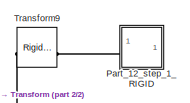
[diagram: XM430_W350_R_2_RIGID/XM430_W350_R_step_1_RIGID - part 1/2, top right region]
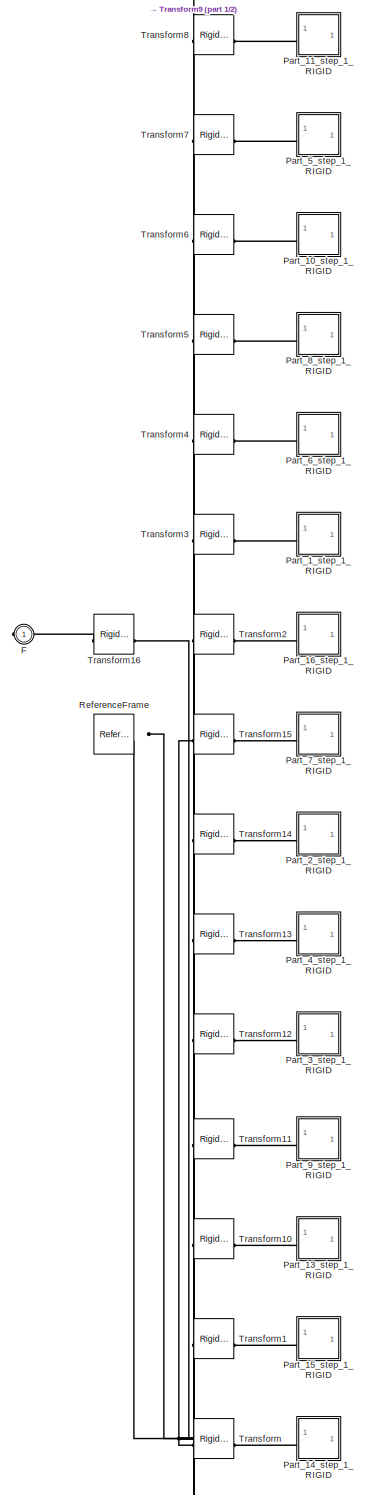
[diagram: XM430_W350_R_2_RIGID/XM430_W350_R_step_1_RIGID - part 2/2, full width, middle band]
BLOCK [SubSystem] XM430_W350_R_2_RIGID/XM430_W350_R_step_1_RIGID
BLOCK [PMIOPort] XM430_W350_R_2_RIGID/XM430_W350_R_step_1_RIGID/F
  Side = Right
BLOCK [SubSystem] XM430_W350_R_2_RIGID/XM430_W350_R_step_1_RIGID/Part_10_step_1_RIGID
BLOCK [PMIOPort] XM430_W350_R_2_RIGID/XM430_W350_R_step_1_RIGID/Part_10_step_1_RIGID/F
  Side = Left
BLOCK [Reference] XM430_W350_R_2_RIGID/XM430_W350_R_step_1_RIGID/Part_10_step_1_RIGID/ReferenceFrame  REF=sm_lib/Frames and
Transforms/Reference
Frame
  SourceBlock = sm_lib/Frames and\nTransforms/Reference\nFrame
  SourceType = Reference\nFrame
BLOCK [Reference] XM430_W350_R_2_RIGID/XM430_W350_R_step_1_RIGID/Part_10_step_1_RIGID/Solid  REF=sm_lib/Body Elements/File Solid
  SourceBlock = sm_lib/Body Elements/File Solid
  SourceType = File Solid
BLOCK [SubSystem] XM430_W350_R_2_RIGID/XM430_W350_R_step_1_RIGID/Part_11_step_1_RIGID
BLOCK [PMIOPort] XM430_W350_R_2_RIGID/XM430_W350_R_step_1_RIGID/Part_11_step_1_RIGID/F
  Side = Left
BLOCK [Reference] XM430_W350_R_2_RIGID/XM430_W350_R_step_1_RIGID/Part_11_step_1_RIGID/ReferenceFrame  REF=sm_lib/Frames and
Transforms/Reference
Frame
  SourceBlock = sm_lib/Frames and\nTransforms/Reference\nFrame
  SourceType = Reference\nFrame
BLOCK [Reference] XM430_W350_R_2_RIGID/XM430_W350_R_step_1_RIGID/Part_11_step_1_RIGID/Solid  REF=sm_lib/Body Elements/File Solid
  SourceBlock = sm_lib/Body Elements/File Solid
  SourceType = File Solid
BLOCK [SubSystem] XM430_W350_R_2_RIGID/XM430_W350_R_step_1_RIGID/Part_12_step_1_RIGID
BLOCK [PMIOPort] XM430_W350_R_2_RIGID/XM430_W350_R_step_1_RIGID/Part_12_step_1_RIGID/F
  Side = Left
BLOCK [Reference] XM430_W350_R_2_RIGID/XM430_W350_R_step_1_RIGID/Part_12_step_1_RIGID/ReferenceFrame  REF=sm_lib/Frames and
Transforms/Reference
Frame
  SourceBlock = sm_lib/Frames and\nTransforms/Reference\nFrame
  SourceType = Reference\nFrame
BLOCK [Reference] XM430_W350_R_2_RIGID/XM430_W350_R_step_1_RIGID/Part_12_step_1_RIGID/Solid  REF=sm_lib/Body Elements/File Solid
  SourceBlock = sm_lib/Body Elements/File Solid
  SourceType = File Solid
BLOCK [SubSystem] XM430_W350_R_2_RIGID/XM430_W350_R_step_1_RIGID/Part_13_step_1_RIGID
BLOCK [PMIOPort] XM430_W350_R_2_RIGID/XM430_W350_R_step_1_RIGID/Part_13_step_1_RIGID/F
  Side = Left
BLOCK [Reference] XM430_W350_R_2_RIGID/XM430_W350_R_step_1_RIGID/Part_13_step_1_RIGID/ReferenceFrame  REF=sm_lib/Frames and
Transforms/Reference
Frame
  SourceBlock = sm_lib/Frames and\nTransforms/Reference\nFrame
  SourceType = Reference\nFrame
BLOCK [Reference] XM430_W350_R_2_RIGID/XM430_W350_R_step_1_RIGID/Part_13_step_1_RIGID/Solid  REF=sm_lib/Body Elements/File Solid
  SourceBlock = sm_lib/Body Elements/File Solid
  SourceType = File Solid
BLOCK [SubSystem] XM430_W350_R_2_RIGID/XM430_W350_R_step_1_RIGID/Part_14_step_1_RIGID
BLOCK [PMIOPort] XM430_W350_R_2_RIGID/XM430_W350_R_step_1_RIGID/Part_14_step_1_RIGID/F
  Side = Left
BLOCK [Reference] XM430_W350_R_2_RIGID/XM430_W350_R_step_1_RIGID/Part_14_step_1_RIGID/ReferenceFrame  REF=sm_lib/Frames and
Transforms/Reference
Frame
  SourceBlock = sm_lib/Frames and\nTransforms/Reference\nFrame
  SourceType = Reference\nFrame
BLOCK [Reference] XM430_W350_R_2_RIGID/XM430_W350_R_step_1_RIGID/Part_14_step_1_RIGID/Solid  REF=sm_lib/Body Elements/File Solid
  SourceBlock = sm_lib/Body Elements/File Solid
  SourceType = File Solid
BLOCK [SubSystem] XM430_W350_R_2_RIGID/XM430_W350_R_step_1_RIGID/Part_15_step_1_RIGID
BLOCK [PMIOPort] XM430_W350_R_2_RIGID/XM430_W350_R_step_1_RIGID/Part_15_step_1_RIGID/F
  Side = Left
BLOCK [Reference] XM430_W350_R_2_RIGID/XM430_W350_R_step_1_RIGID/Part_15_step_1_RIGID/ReferenceFrame  REF=sm_lib/Frames and
Transforms/Reference
Frame
  SourceBlock = sm_lib/Frames and\nTransforms/Reference\nFrame
  SourceType = Reference\nFrame
BLOCK [Reference] XM430_W350_R_2_RIGID/XM430_W350_R_step_1_RIGID/Part_15_step_1_RIGID/Solid  REF=sm_lib/Body Elements/File Solid
  SourceBlock = sm_lib/Body Elements/File Solid
  SourceType = File Solid
BLOCK [SubSystem] XM430_W350_R_2_RIGID/XM430_W350_R_step_1_RIGID/Part_16_step_1_RIGID
BLOCK [PMIOPort] XM430_W350_R_2_RIGID/XM430_W350_R_step_1_RIGID/Part_16_step_1_RIGID/F
  Side = Left
BLOCK [Reference] XM430_W350_R_2_RIGID/XM430_W350_R_step_1_RIGID/Part_16_step_1_RIGID/ReferenceFrame  REF=sm_lib/Frames and
Transforms/Reference
Frame
  SourceBlock = sm_lib/Frames and\nTransforms/Reference\nFrame
  SourceType = Reference\nFrame
BLOCK [Reference] XM430_W350_R_2_RIGID/XM430_W350_R_step_1_RIGID/Part_16_step_1_RIGID/Solid  REF=sm_lib/Body Elements/File Solid
  SourceBlock = sm_lib/Body Elements/File Solid
  SourceType = File Solid
BLOCK [SubSystem] XM430_W350_R_2_RIGID/XM430_W350_R_step_1_RIGID/Part_1_step_1_RIGID
BLOCK [PMIOPort] XM430_W350_R_2_RIGID/XM430_W350_R_step_1_RIGID/Part_1_step_1_RIGID/F
  Side = Left
BLOCK [Reference] XM430_W350_R_2_RIGID/XM430_W350_R_step_1_RIGID/Part_1_step_1_RIGID/ReferenceFrame  REF=sm_lib/Frames and
Transforms/Reference
Frame
  SourceBlock = sm_lib/Frames and\nTransforms/Reference\nFrame
  SourceType = Reference\nFrame
BLOCK [Reference] XM430_W350_R_2_RIGID/XM430_W350_R_step_1_RIGID/Part_1_step_1_RIGID/Solid  REF=sm_lib/Body Elements/File Solid
  SourceBlock = sm_lib/Body Elements/File Solid
  SourceType = File Solid
BLOCK [SubSystem] XM430_W350_R_2_RIGID/XM430_W350_R_step_1_RIGID/Part_2_step_1_RIGID
BLOCK [PMIOPort] XM430_W350_R_2_RIGID/XM430_W350_R_step_1_RIGID/Part_2_step_1_RIGID/F
  Side = Left
BLOCK [Reference] XM430_W350_R_2_RIGID/XM430_W350_R_step_1_RIGID/Part_2_step_1_RIGID/ReferenceFrame  REF=sm_lib/Frames and
Transforms/Reference
Frame
  SourceBlock = sm_lib/Frames and\nTransforms/Reference\nFrame
  SourceType = Reference\nFrame
BLOCK [Reference] XM430_W350_R_2_RIGID/XM430_W350_R_step_1_RIGID/Part_2_step_1_RIGID/Solid  REF=sm_lib/Body Elements/File Solid
  SourceBlock = sm_lib/Body Elements/File Solid
  SourceType = File Solid
BLOCK [SubSystem] XM430_W350_R_2_RIGID/XM430_W350_R_step_1_RIGID/Part_3_step_1_RIGID
BLOCK [PMIOPort] XM430_W350_R_2_RIGID/XM430_W350_R_step_1_RIGID/Part_3_step_1_RIGID/F
  Side = Left
BLOCK [Reference] XM430_W350_R_2_RIGID/XM430_W350_R_step_1_RIGID/Part_3_step_1_RIGID/ReferenceFrame  REF=sm_lib/Frames and
Transforms/Reference
Frame
  SourceBlock = sm_lib/Frames and\nTransforms/Reference\nFrame
  SourceType = Reference\nFrame
BLOCK [Reference] XM430_W350_R_2_RIGID/XM430_W350_R_step_1_RIGID/Part_3_step_1_RIGID/Solid  REF=sm_lib/Body Elements/File Solid
  SourceBlock = sm_lib/Body Elements/File Solid
  SourceType = File Solid
BLOCK [SubSystem] XM430_W350_R_2_RIGID/XM430_W350_R_step_1_RIGID/Part_4_step_1_RIGID
BLOCK [PMIOPort] XM430_W350_R_2_RIGID/XM430_W350_R_step_1_RIGID/Part_4_step_1_RIGID/F
  Side = Left
BLOCK [Reference] XM430_W350_R_2_RIGID/XM430_W350_R_step_1_RIGID/Part_4_step_1_RIGID/ReferenceFrame  REF=sm_lib/Frames and
Transforms/Reference
Frame
  SourceBlock = sm_lib/Frames and\nTransforms/Reference\nFrame
  SourceType = Reference\nFrame
BLOCK [Reference] XM430_W350_R_2_RIGID/XM430_W350_R_step_1_RIGID/Part_4_step_1_RIGID/Solid  REF=sm_lib/Body Elements/File Solid
  SourceBlock = sm_lib/Body Elements/File Solid
  SourceType = File Solid
BLOCK [SubSystem] XM430_W350_R_2_RIGID/XM430_W350_R_step_1_RIGID/Part_5_step_1_RIGID
BLOCK [PMIOPort] XM430_W350_R_2_RIGID/XM430_W350_R_step_1_RIGID/Part_5_step_1_RIGID/F
  Side = Left
BLOCK [Reference] XM430_W350_R_2_RIGID/XM430_W350_R_step_1_RIGID/Part_5_step_1_RIGID/ReferenceFrame  REF=sm_lib/Frames and
Transforms/Reference
Frame
  SourceBlock = sm_lib/Frames and\nTransforms/Reference\nFrame
  SourceType = Reference\nFrame
BLOCK [Reference] XM430_W350_R_2_RIGID/XM430_W350_R_step_1_RIGID/Part_5_step_1_RIGID/Solid  REF=sm_lib/Body Elements/File Solid
  SourceBlock = sm_lib/Body Elements/File Solid
  SourceType = File Solid
BLOCK [SubSystem] XM430_W350_R_2_RIGID/XM430_W350_R_step_1_RIGID/Part_6_step_1_RIGID
BLOCK [PMIOPort] XM430_W350_R_2_RIGID/XM430_W350_R_step_1_RIGID/Part_6_step_1_RIGID/F
  Side = Left
BLOCK [Reference] XM430_W350_R_2_RIGID/XM430_W350_R_step_1_RIGID/Part_6_step_1_RIGID/ReferenceFrame  REF=sm_lib/Frames and
Transforms/Reference
Frame
  SourceBlock = sm_lib/Frames and\nTransforms/Reference\nFrame
  SourceType = Reference\nFrame
BLOCK [Reference] XM430_W350_R_2_RIGID/XM430_W350_R_step_1_RIGID/Part_6_step_1_RIGID/Solid  REF=sm_lib/Body Elements/File Solid
  SourceBlock = sm_lib/Body Elements/File Solid
  SourceType = File Solid
BLOCK [SubSystem] XM430_W350_R_2_RIGID/XM430_W350_R_step_1_RIGID/Part_7_step_1_RIGID
BLOCK [PMIOPort] XM430_W350_R_2_RIGID/XM430_W350_R_step_1_RIGID/Part_7_step_1_RIGID/F
  Side = Left
BLOCK [Reference] XM430_W350_R_2_RIGID/XM430_W350_R_step_1_RIGID/Part_7_step_1_RIGID/ReferenceFrame  REF=sm_lib/Frames and
Transforms/Reference
Frame
  SourceBlock = sm_lib/Frames and\nTransforms/Reference\nFrame
  SourceType = Reference\nFrame
BLOCK [Reference] XM430_W350_R_2_RIGID/XM430_W350_R_step_1_RIGID/Part_7_step_1_RIGID/Solid  REF=sm_lib/Body Elements/File Solid
  SourceBlock = sm_lib/Body Elements/File Solid
  SourceType = File Solid
BLOCK [SubSystem] XM430_W350_R_2_RIGID/XM430_W350_R_step_1_RIGID/Part_8_step_1_RIGID
BLOCK [PMIOPort] XM430_W350_R_2_RIGID/XM430_W350_R_step_1_RIGID/Part_8_step_1_RIGID/F
  Side = Left
BLOCK [Reference] XM430_W350_R_2_RIGID/XM430_W350_R_step_1_RIGID/Part_8_step_1_RIGID/ReferenceFrame  REF=sm_lib/Frames and
Transforms/Reference
Frame
  SourceBlock = sm_lib/Frames and\nTransforms/Reference\nFrame
  SourceType = Reference\nFrame
BLOCK [Reference] XM430_W350_R_2_RIGID/XM430_W350_R_step_1_RIGID/Part_8_step_1_RIGID/Solid  REF=sm_lib/Body Elements/File Solid
  SourceBlock = sm_lib/Body Elements/File Solid
  SourceType = File Solid
BLOCK [SubSystem] XM430_W350_R_2_RIGID/XM430_W350_R_step_1_RIGID/Part_9_step_1_RIGID
BLOCK [PMIOPort] XM430_W350_R_2_RIGID/XM430_W350_R_step_1_RIGID/Part_9_step_1_RIGID/F
  Side = Left
BLOCK [Reference] XM430_W350_R_2_RIGID/XM430_W350_R_step_1_RIGID/Part_9_step_1_RIGID/ReferenceFrame  REF=sm_lib/Frames and
Transforms/Reference
Frame
  SourceBlock = sm_lib/Frames and\nTransforms/Reference\nFrame
  SourceType = Reference\nFrame
BLOCK [Reference] XM430_W350_R_2_RIGID/XM430_W350_R_step_1_RIGID/Part_9_step_1_RIGID/Solid  REF=sm_lib/Body Elements/File Solid
  SourceBlock = sm_lib/Body Elements/File Solid
  SourceType = File Solid
BLOCK [Reference] XM430_W350_R_2_RIGID/XM430_W350_R_step_1_RIGID/ReferenceFrame  REF=sm_lib/Frames and
Transforms/Reference
Frame
  SourceBlock = sm_lib/Frames and\nTransforms/Reference\nFrame
  SourceType = Reference\nFrame
BLOCK [Reference] XM430_W350_R_2_RIGID/XM430_W350_R_step_1_RIGID/Transform  REF=sm_lib/Frames and
Transforms/Rigid
Transform
  SourceBlock = sm_lib/Frames and\nTransforms/Rigid\nTransform
  SourceType = Rigid\nTransform
BLOCK [Reference] XM430_W350_R_2_RIGID/XM430_W350_R_step_1_RIGID/Transform1  REF=sm_lib/Frames and
Transforms/Rigid
Transform
  SourceBlock = sm_lib/Frames and\nTransforms/Rigid\nTransform
  SourceType = Rigid\nTransform
BLOCK [Reference] XM430_W350_R_2_RIGID/XM430_W350_R_step_1_RIGID/Transform10  REF=sm_lib/Frames and
Transforms/Rigid
Transform
  SourceBlock = sm_lib/Frames and\nTransforms/Rigid\nTransform
  SourceType = Rigid\nTransform
BLOCK [Reference] XM430_W350_R_2_RIGID/XM430_W350_R_step_1_RIGID/Transform11  REF=sm_lib/Frames and
Transforms/Rigid
Transform
  SourceBlock = sm_lib/Frames and\nTransforms/Rigid\nTransform
  SourceType = Rigid\nTransform
BLOCK [Reference] XM430_W350_R_2_RIGID/XM430_W350_R_step_1_RIGID/Transform12  REF=sm_lib/Frames and
Transforms/Rigid
Transform
  SourceBlock = sm_lib/Frames and\nTransforms/Rigid\nTransform
  SourceType = Rigid\nTransform
BLOCK [Reference] XM430_W350_R_2_RIGID/XM430_W350_R_step_1_RIGID/Transform13  REF=sm_lib/Frames and
Transforms/Rigid
Transform
  SourceBlock = sm_lib/Frames and\nTransforms/Rigid\nTransform
  SourceType = Rigid\nTransform
BLOCK [Reference] XM430_W350_R_2_RIGID/XM430_W350_R_step_1_RIGID/Transform14  REF=sm_lib/Frames and
Transforms/Rigid
Transform
  SourceBlock = sm_lib/Frames and\nTransforms/Rigid\nTransform
  SourceType = Rigid\nTransform
BLOCK [Reference] XM430_W350_R_2_RIGID/XM430_W350_R_step_1_RIGID/Transform15  REF=sm_lib/Frames and
Transforms/Rigid
Transform
  SourceBlock = sm_lib/Frames and\nTransforms/Rigid\nTransform
  SourceType = Rigid\nTransform
BLOCK [Reference] XM430_W350_R_2_RIGID/XM430_W350_R_step_1_RIGID/Transform16  REF=sm_lib/Frames and
Transforms/Rigid
Transform
  SourceBlock = sm_lib/Frames and\nTransforms/Rigid\nTransform
  SourceType = Rigid\nTransform
BLOCK [Reference] XM430_W350_R_2_RIGID/XM430_W350_R_step_1_RIGID/Transform2  REF=sm_lib/Frames and
Transforms/Rigid
Transform
  SourceBlock = sm_lib/Frames and\nTransforms/Rigid\nTransform
  SourceType = Rigid\nTransform
BLOCK [Reference] XM430_W350_R_2_RIGID/XM430_W350_R_step_1_RIGID/Transform3  REF=sm_lib/Frames and
Transforms/Rigid
Transform
  SourceBlock = sm_lib/Frames and\nTransforms/Rigid\nTransform
  SourceType = Rigid\nTransform
BLOCK [Reference] XM430_W350_R_2_RIGID/XM430_W350_R_step_1_RIGID/Transform4  REF=sm_lib/Frames and
Transforms/Rigid
Transform
  SourceBlock = sm_lib/Frames and\nTransforms/Rigid\nTransform
  SourceType = Rigid\nTransform
BLOCK [Reference] XM430_W350_R_2_RIGID/XM430_W350_R_step_1_RIGID/Transform5  REF=sm_lib/Frames and
Transforms/Rigid
Transform
  SourceBlock = sm_lib/Frames and\nTransforms/Rigid\nTransform
  SourceType = Rigid\nTransform
BLOCK [Reference] XM430_W350_R_2_RIGID/XM430_W350_R_step_1_RIGID/Transform6  REF=sm_lib/Frames and
Transforms/Rigid
Transform
  SourceBlock = sm_lib/Frames and\nTransforms/Rigid\nTransform
  SourceType = Rigid\nTransform
BLOCK [Reference] XM430_W350_R_2_RIGID/XM430_W350_R_step_1_RIGID/Transform7  REF=sm_lib/Frames and
Transforms/Rigid
Transform
  SourceBlock = sm_lib/Frames and\nTransforms/Rigid\nTransform
  SourceType = Rigid\nTransform
BLOCK [Reference] XM430_W350_R_2_RIGID/XM430_W350_R_step_1_RIGID/Transform8  REF=sm_lib/Frames and
Transforms/Rigid
Transform
  SourceBlock = sm_lib/Frames and\nTransforms/Rigid\nTransform
  SourceType = Rigid\nTransform
BLOCK [Reference] XM430_W350_R_2_RIGID/XM430_W350_R_step_1_RIGID/Transform9  REF=sm_lib/Frames and
Transforms/Rigid
Transform
  SourceBlock = sm_lib/Frames and\nTransforms/Rigid\nTransform
  SourceType = Rigid\nTransform
BLOCK [SubSystem] XM430_W350_R_3_RIGID
BLOCK [PMIOPort] XM430_W350_R_3_RIGID/F
  Port = 2
  Side = Right
BLOCK [PMIOPort] XM430_W350_R_3_RIGID/F1
  Side = Left
BLOCK [Reference] XM430_W350_R_3_RIGID/ReferenceFrame  REF=sm_lib/Frames and
Transforms/Reference
Frame
  SourceBlock = sm_lib/Frames and\nTransforms/Reference\nFrame
  SourceType = Reference\nFrame
BLOCK [Reference] XM430_W350_R_3_RIGID/Transform  REF=sm_lib/Frames and
Transforms/Rigid
Transform
  SourceBlock = sm_lib/Frames and\nTransforms/Rigid\nTransform
  SourceType = Rigid\nTransform
BLOCK [Reference] XM430_W350_R_3_RIGID/Transform1  REF=sm_lib/Frames and
Transforms/Rigid
Transform
  SourceBlock = sm_lib/Frames and\nTransforms/Rigid\nTransform
  SourceType = Rigid\nTransform
BLOCK [SubSystem] XM430_W350_R_3_RIGID/XM430_W350_R_step_1_RIGID
BLOCK [PMIOPort] XM430_W350_R_3_RIGID/XM430_W350_R_step_1_RIGID/F
  Side = Right
BLOCK [SubSystem] XM430_W350_R_3_RIGID/XM430_W350_R_step_1_RIGID/Part_10_step_1_RIGID
BLOCK [PMIOPort] XM430_W350_R_3_RIGID/XM430_W350_R_step_1_RIGID/Part_10_step_1_RIGID/F
  Side = Left
BLOCK [Reference] XM430_W350_R_3_RIGID/XM430_W350_R_step_1_RIGID/Part_10_step_1_RIGID/ReferenceFrame  REF=sm_lib/Frames and
Transforms/Reference
Frame
  SourceBlock = sm_lib/Frames and\nTransforms/Reference\nFrame
  SourceType = Reference\nFrame
BLOCK [Reference] XM430_W350_R_3_RIGID/XM430_W350_R_step_1_RIGID/Part_10_step_1_RIGID/Solid  REF=sm_lib/Body Elements/File Solid
  SourceBlock = sm_lib/Body Elements/File Solid
  SourceType = File Solid
BLOCK [SubSystem] XM430_W350_R_3_RIGID/XM430_W350_R_step_1_RIGID/Part_11_step_1_RIGID
BLOCK [PMIOPort] XM430_W350_R_3_RIGID/XM430_W350_R_step_1_RIGID/Part_11_step_1_RIGID/F
  Side = Left
BLOCK [Reference] XM430_W350_R_3_RIGID/XM430_W350_R_step_1_RIGID/Part_11_step_1_RIGID/ReferenceFrame  REF=sm_lib/Frames and
Transforms/Reference
Frame
  SourceBlock = sm_lib/Frames and\nTransforms/Reference\nFrame
  SourceType = Reference\nFrame
BLOCK [Reference] XM430_W350_R_3_RIGID/XM430_W350_R_step_1_RIGID/Part_11_step_1_RIGID/Solid  REF=sm_lib/Body Elements/File Solid
  SourceBlock = sm_lib/Body Elements/File Solid
  SourceType = File Solid
BLOCK [SubSystem] XM430_W350_R_3_RIGID/XM430_W350_R_step_1_RIGID/Part_12_step_1_RIGID
BLOCK [PMIOPort] XM430_W350_R_3_RIGID/XM430_W350_R_step_1_RIGID/Part_12_step_1_RIGID/F
  Side = Left
BLOCK [Reference] XM430_W350_R_3_RIGID/XM430_W350_R_step_1_RIGID/Part_12_step_1_RIGID/ReferenceFrame  REF=sm_lib/Frames and
Transforms/Reference
Frame
  SourceBlock = sm_lib/Frames and\nTransforms/Reference\nFrame
  SourceType = Reference\nFrame
BLOCK [Reference] XM430_W350_R_3_RIGID/XM430_W350_R_step_1_RIGID/Part_12_step_1_RIGID/Solid  REF=sm_lib/Body Elements/File Solid
  SourceBlock = sm_lib/Body Elements/File Solid
  SourceType = File Solid
BLOCK [SubSystem] XM430_W350_R_3_RIGID/XM430_W350_R_step_1_RIGID/Part_13_step_1_RIGID
BLOCK [PMIOPort] XM430_W350_R_3_RIGID/XM430_W350_R_step_1_RIGID/Part_13_step_1_RIGID/F
  Side = Left
BLOCK [Reference] XM430_W350_R_3_RIGID/XM430_W350_R_step_1_RIGID/Part_13_step_1_RIGID/ReferenceFrame  REF=sm_lib/Frames and
Transforms/Reference
Frame
  SourceBlock = sm_lib/Frames and\nTransforms/Reference\nFrame
  SourceType = Reference\nFrame
BLOCK [Reference] XM430_W350_R_3_RIGID/XM430_W350_R_step_1_RIGID/Part_13_step_1_RIGID/Solid  REF=sm_lib/Body Elements/File Solid
  SourceBlock = sm_lib/Body Elements/File Solid
  SourceType = File Solid
BLOCK [SubSystem] XM430_W350_R_3_RIGID/XM430_W350_R_step_1_RIGID/Part_14_step_1_RIGID
BLOCK [PMIOPort] XM430_W350_R_3_RIGID/XM430_W350_R_step_1_RIGID/Part_14_step_1_RIGID/F
  Side = Left
BLOCK [Reference] XM430_W350_R_3_RIGID/XM430_W350_R_step_1_RIGID/Part_14_step_1_RIGID/ReferenceFrame  REF=sm_lib/Frames and
Transforms/Reference
Frame
  SourceBlock = sm_lib/Frames and\nTransforms/Reference\nFrame
  SourceType = Reference\nFrame
BLOCK [Reference] XM430_W350_R_3_RIGID/XM430_W350_R_step_1_RIGID/Part_14_step_1_RIGID/Solid  REF=sm_lib/Body Elements/File Solid
  SourceBlock = sm_lib/Body Elements/File Solid
  SourceType = File Solid
BLOCK [SubSystem] XM430_W350_R_3_RIGID/XM430_W350_R_step_1_RIGID/Part_15_step_1_RIGID
BLOCK [PMIOPort] XM430_W350_R_3_RIGID/XM430_W350_R_step_1_RIGID/Part_15_step_1_RIGID/F
  Side = Left
BLOCK [Reference] XM430_W350_R_3_RIGID/XM430_W350_R_step_1_RIGID/Part_15_step_1_RIGID/ReferenceFrame  REF=sm_lib/Frames and
Transforms/Reference
Frame
  SourceBlock = sm_lib/Frames and\nTransforms/Reference\nFrame
  SourceType = Reference\nFrame
BLOCK [Reference] XM430_W350_R_3_RIGID/XM430_W350_R_step_1_RIGID/Part_15_step_1_RIGID/Solid  REF=sm_lib/Body Elements/File Solid
  SourceBlock = sm_lib/Body Elements/File Solid
  SourceType = File Solid
BLOCK [SubSystem] XM430_W350_R_3_RIGID/XM430_W350_R_step_1_RIGID/Part_16_step_1_RIGID
BLOCK [PMIOPort] XM430_W350_R_3_RIGID/XM430_W350_R_step_1_RIGID/Part_16_step_1_RIGID/F
  Side = Left
BLOCK [Reference] XM430_W350_R_3_RIGID/XM430_W350_R_step_1_RIGID/Part_16_step_1_RIGID/ReferenceFrame  REF=sm_lib/Frames and
Transforms/Reference
Frame
  SourceBlock = sm_lib/Frames and\nTransforms/Reference\nFrame
  SourceType = Reference\nFrame
BLOCK [Reference] XM430_W350_R_3_RIGID/XM430_W350_R_step_1_RIGID/Part_16_step_1_RIGID/Solid  REF=sm_lib/Body Elements/File Solid
  SourceBlock = sm_lib/Body Elements/File Solid
  SourceType = File Solid
BLOCK [SubSystem] XM430_W350_R_3_RIGID/XM430_W350_R_step_1_RIGID/Part_1_step_1_RIGID
BLOCK [PMIOPort] XM430_W350_R_3_RIGID/XM430_W350_R_step_1_RIGID/Part_1_step_1_RIGID/F
  Side = Left
BLOCK [Reference] XM430_W350_R_3_RIGID/XM430_W350_R_step_1_RIGID/Part_1_step_1_RIGID/ReferenceFrame  REF=sm_lib/Frames and
Transforms/Reference
Frame
  SourceBlock = sm_lib/Frames and\nTransforms/Reference\nFrame
  SourceType = Reference\nFrame
BLOCK [Reference] XM430_W350_R_3_RIGID/XM430_W350_R_step_1_RIGID/Part_1_step_1_RIGID/Solid  REF=sm_lib/Body Elements/File Solid
  SourceBlock = sm_lib/Body Elements/File Solid
  SourceType = File Solid
BLOCK [SubSystem] XM430_W350_R_3_RIGID/XM430_W350_R_step_1_RIGID/Part_2_step_1_RIGID
BLOCK [PMIOPort] XM430_W350_R_3_RIGID/XM430_W350_R_step_1_RIGID/Part_2_step_1_RIGID/F
  Side = Left
BLOCK [Reference] XM430_W350_R_3_RIGID/XM430_W350_R_step_1_RIGID/Part_2_step_1_RIGID/ReferenceFrame  REF=sm_lib/Frames and
Transforms/Reference
Frame
  SourceBlock = sm_lib/Frames and\nTransforms/Reference\nFrame
  SourceType = Reference\nFrame
BLOCK [Reference] XM430_W350_R_3_RIGID/XM430_W350_R_step_1_RIGID/Part_2_step_1_RIGID/Solid  REF=sm_lib/Body Elements/File Solid
  SourceBlock = sm_lib/Body Elements/File Solid
  SourceType = File Solid
BLOCK [SubSystem] XM430_W350_R_3_RIGID/XM430_W350_R_step_1_RIGID/Part_3_step_1_RIGID
BLOCK [PMIOPort] XM430_W350_R_3_RIGID/XM430_W350_R_step_1_RIGID/Part_3_step_1_RIGID/F
  Side = Left
BLOCK [Reference] XM430_W350_R_3_RIGID/XM430_W350_R_step_1_RIGID/Part_3_step_1_RIGID/ReferenceFrame  REF=sm_lib/Frames and
Transforms/Reference
Frame
  SourceBlock = sm_lib/Frames and\nTransforms/Reference\nFrame
  SourceType = Reference\nFrame
BLOCK [Reference] XM430_W350_R_3_RIGID/XM430_W350_R_step_1_RIGID/Part_3_step_1_RIGID/Solid  REF=sm_lib/Body Elements/File Solid
  SourceBlock = sm_lib/Body Elements/File Solid
  SourceType = File Solid
BLOCK [SubSystem] XM430_W350_R_3_RIGID/XM430_W350_R_step_1_RIGID/Part_4_step_1_RIGID
BLOCK [PMIOPort] XM430_W350_R_3_RIGID/XM430_W350_R_step_1_RIGID/Part_4_step_1_RIGID/F
  Side = Left
BLOCK [Reference] XM430_W350_R_3_RIGID/XM430_W350_R_step_1_RIGID/Part_4_step_1_RIGID/ReferenceFrame  REF=sm_lib/Frames and
Transforms/Reference
Frame
  SourceBlock = sm_lib/Frames and\nTransforms/Reference\nFrame
  SourceType = Reference\nFrame
BLOCK [Reference] XM430_W350_R_3_RIGID/XM430_W350_R_step_1_RIGID/Part_4_step_1_RIGID/Solid  REF=sm_lib/Body Elements/File Solid
  SourceBlock = sm_lib/Body Elements/File Solid
  SourceType = File Solid
BLOCK [SubSystem] XM430_W350_R_3_RIGID/XM430_W350_R_step_1_RIGID/Part_5_step_1_RIGID
BLOCK [PMIOPort] XM430_W350_R_3_RIGID/XM430_W350_R_step_1_RIGID/Part_5_step_1_RIGID/F
  Side = Left
BLOCK [Reference] XM430_W350_R_3_RIGID/XM430_W350_R_step_1_RIGID/Part_5_step_1_RIGID/ReferenceFrame  REF=sm_lib/Frames and
Transforms/Reference
Frame
  SourceBlock = sm_lib/Frames and\nTransforms/Reference\nFrame
  SourceType = Reference\nFrame
BLOCK [Reference] XM430_W350_R_3_RIGID/XM430_W350_R_step_1_RIGID/Part_5_step_1_RIGID/Solid  REF=sm_lib/Body Elements/File Solid
  SourceBlock = sm_lib/Body Elements/File Solid
  SourceType = File Solid
BLOCK [SubSystem] XM430_W350_R_3_RIGID/XM430_W350_R_step_1_RIGID/Part_6_step_1_RIGID
BLOCK [PMIOPort] XM430_W350_R_3_RIGID/XM430_W350_R_step_1_RIGID/Part_6_step_1_RIGID/F
  Side = Left
BLOCK [Reference] XM430_W350_R_3_RIGID/XM430_W350_R_step_1_RIGID/Part_6_step_1_RIGID/ReferenceFrame  REF=sm_lib/Frames and
Transforms/Reference
Frame
  SourceBlock = sm_lib/Frames and\nTransforms/Reference\nFrame
  SourceType = Reference\nFrame
BLOCK [Reference] XM430_W350_R_3_RIGID/XM430_W350_R_step_1_RIGID/Part_6_step_1_RIGID/Solid  REF=sm_lib/Body Elements/File Solid
  SourceBlock = sm_lib/Body Elements/File Solid
  SourceType = File Solid
BLOCK [SubSystem] XM430_W350_R_3_RIGID/XM430_W350_R_step_1_RIGID/Part_7_step_1_RIGID
BLOCK [PMIOPort] XM430_W350_R_3_RIGID/XM430_W350_R_step_1_RIGID/Part_7_step_1_RIGID/F
  Side = Left
BLOCK [Reference] XM430_W350_R_3_RIGID/XM430_W350_R_step_1_RIGID/Part_7_step_1_RIGID/ReferenceFrame  REF=sm_lib/Frames and
Transforms/Reference
Frame
  SourceBlock = sm_lib/Frames and\nTransforms/Reference\nFrame
  SourceType = Reference\nFrame
BLOCK [Reference] XM430_W350_R_3_RIGID/XM430_W350_R_step_1_RIGID/Part_7_step_1_RIGID/Solid  REF=sm_lib/Body Elements/File Solid
  SourceBlock = sm_lib/Body Elements/File Solid
  SourceType = File Solid
BLOCK [SubSystem] XM430_W350_R_3_RIGID/XM430_W350_R_step_1_RIGID/Part_8_step_1_RIGID
BLOCK [PMIOPort] XM430_W350_R_3_RIGID/XM430_W350_R_step_1_RIGID/Part_8_step_1_RIGID/F
  Side = Left
BLOCK [Reference] XM430_W350_R_3_RIGID/XM430_W350_R_step_1_RIGID/Part_8_step_1_RIGID/ReferenceFrame  REF=sm_lib/Frames and
Transforms/Reference
Frame
  SourceBlock = sm_lib/Frames and\nTransforms/Reference\nFrame
  SourceType = Reference\nFrame
BLOCK [Reference] XM430_W350_R_3_RIGID/XM430_W350_R_step_1_RIGID/Part_8_step_1_RIGID/Solid  REF=sm_lib/Body Elements/File Solid
  SourceBlock = sm_lib/Body Elements/File Solid
  SourceType = File Solid
BLOCK [SubSystem] XM430_W350_R_3_RIGID/XM430_W350_R_step_1_RIGID/Part_9_step_1_RIGID
BLOCK [PMIOPort] XM430_W350_R_3_RIGID/XM430_W350_R_step_1_RIGID/Part_9_step_1_RIGID/F
  Side = Left
BLOCK [Reference] XM430_W350_R_3_RIGID/XM430_W350_R_step_1_RIGID/Part_9_step_1_RIGID/ReferenceFrame  REF=sm_lib/Frames and
Transforms/Reference
Frame
  SourceBlock = sm_lib/Frames and\nTransforms/Reference\nFrame
  SourceType = Reference\nFrame
BLOCK [Reference] XM430_W350_R_3_RIGID/XM430_W350_R_step_1_RIGID/Part_9_step_1_RIGID/Solid  REF=sm_lib/Body Elements/File Solid
  SourceBlock = sm_lib/Body Elements/File Solid
  SourceType = File Solid
BLOCK [Reference] XM430_W350_R_3_RIGID/XM430_W350_R_step_1_RIGID/ReferenceFrame  REF=sm_lib/Frames and
Transforms/Reference
Frame
  SourceBlock = sm_lib/Frames and\nTransforms/Reference\nFrame
  SourceType = Reference\nFrame
BLOCK [Reference] XM430_W350_R_3_RIGID/XM430_W350_R_step_1_RIGID/Transform  REF=sm_lib/Frames and
Transforms/Rigid
Transform
  SourceBlock = sm_lib/Frames and\nTransforms/Rigid\nTransform
  SourceType = Rigid\nTransform
BLOCK [Reference] XM430_W350_R_3_RIGID/XM430_W350_R_step_1_RIGID/Transform1  REF=sm_lib/Frames and
Transforms/Rigid
Transform
  SourceBlock = sm_lib/Frames and\nTransforms/Rigid\nTransform
  SourceType = Rigid\nTransform
BLOCK [Reference] XM430_W350_R_3_RIGID/XM430_W350_R_step_1_RIGID/Transform10  REF=sm_lib/Frames and
Transforms/Rigid
Transform
  SourceBlock = sm_lib/Frames and\nTransforms/Rigid\nTransform
  SourceType = Rigid\nTransform
BLOCK [Reference] XM430_W350_R_3_RIGID/XM430_W350_R_step_1_RIGID/Transform11  REF=sm_lib/Frames and
Transforms/Rigid
Transform
  SourceBlock = sm_lib/Frames and\nTransforms/Rigid\nTransform
  SourceType = Rigid\nTransform
BLOCK [Reference] XM430_W350_R_3_RIGID/XM430_W350_R_step_1_RIGID/Transform12  REF=sm_lib/Frames and
Transforms/Rigid
Transform
  SourceBlock = sm_lib/Frames and\nTransforms/Rigid\nTransform
  SourceType = Rigid\nTransform
BLOCK [Reference] XM430_W350_R_3_RIGID/XM430_W350_R_step_1_RIGID/Transform13  REF=sm_lib/Frames and
Transforms/Rigid
Transform
  SourceBlock = sm_lib/Frames and\nTransforms/Rigid\nTransform
  SourceType = Rigid\nTransform
BLOCK [Reference] XM430_W350_R_3_RIGID/XM430_W350_R_step_1_RIGID/Transform14  REF=sm_lib/Frames and
Transforms/Rigid
Transform
  SourceBlock = sm_lib/Frames and\nTransforms/Rigid\nTransform
  SourceType = Rigid\nTransform
BLOCK [Reference] XM430_W350_R_3_RIGID/XM430_W350_R_step_1_RIGID/Transform15  REF=sm_lib/Frames and
Transforms/Rigid
Transform
  SourceBlock = sm_lib/Frames and\nTransforms/Rigid\nTransform
  SourceType = Rigid\nTransform
BLOCK [Reference] XM430_W350_R_3_RIGID/XM430_W350_R_step_1_RIGID/Transform16  REF=sm_lib/Frames and
Transforms/Rigid
Transform
  SourceBlock = sm_lib/Frames and\nTransforms/Rigid\nTransform
  SourceType = Rigid\nTransform
BLOCK [Reference] XM430_W350_R_3_RIGID/XM430_W350_R_step_1_RIGID/Transform2  REF=sm_lib/Frames and
Transforms/Rigid
Transform
  SourceBlock = sm_lib/Frames and\nTransforms/Rigid\nTransform
  SourceType = Rigid\nTransform
BLOCK [Reference] XM430_W350_R_3_RIGID/XM430_W350_R_step_1_RIGID/Transform3  REF=sm_lib/Frames and
Transforms/Rigid
Transform
  SourceBlock = sm_lib/Frames and\nTransforms/Rigid\nTransform
  SourceType = Rigid\nTransform
BLOCK [Reference] XM430_W350_R_3_RIGID/XM430_W350_R_step_1_RIGID/Transform4  REF=sm_lib/Frames and
Transforms/Rigid
Transform
  SourceBlock = sm_lib/Frames and\nTransforms/Rigid\nTransform
  SourceType = Rigid\nTransform
BLOCK [Reference] XM430_W350_R_3_RIGID/XM430_W350_R_step_1_RIGID/Transform5  REF=sm_lib/Frames and
Transforms/Rigid
Transform
  SourceBlock = sm_lib/Frames and\nTransforms/Rigid\nTransform
  SourceType = Rigid\nTransform
BLOCK [Reference] XM430_W350_R_3_RIGID/XM430_W350_R_step_1_RIGID/Transform6  REF=sm_lib/Frames and
Transforms/Rigid
Transform
  SourceBlock = sm_lib/Frames and\nTransforms/Rigid\nTransform
  SourceType = Rigid\nTransform
BLOCK [Reference] XM430_W350_R_3_RIGID/XM430_W350_R_step_1_RIGID/Transform7  REF=sm_lib/Frames and
Transforms/Rigid
Transform
  SourceBlock = sm_lib/Frames and\nTransforms/Rigid\nTransform
  SourceType = Rigid\nTransform
BLOCK [Reference] XM430_W350_R_3_RIGID/XM430_W350_R_step_1_RIGID/Transform8  REF=sm_lib/Frames and
Transforms/Rigid
Transform
  SourceBlock = sm_lib/Frames and\nTransforms/Rigid\nTransform
  SourceType = Rigid\nTransform
BLOCK [Reference] XM430_W350_R_3_RIGID/XM430_W350_R_step_1_RIGID/Transform9  REF=sm_lib/Frames and
Transforms/Rigid
Transform
  SourceBlock = sm_lib/Frames and\nTransforms/Rigid\nTransform
  SourceType = Rigid\nTransform
BLOCK [SubSystem] base_XM430_1_RIGID
BLOCK [PMIOPort] base_XM430_1_RIGID/F
  Port = 4
  Side = Left
BLOCK [PMIOPort] base_XM430_1_RIGID/F1
  Port = 3
  Side = Left
BLOCK [PMIOPort] base_XM430_1_RIGID/F2
  Side = Left
BLOCK [Reference] base_XM430_1_RIGID/ReferenceFrame  REF=sm_lib/Frames and
Transforms/Reference
Frame
  SourceBlock = sm_lib/Frames and\nTransforms/Reference\nFrame
  SourceType = Reference\nFrame
BLOCK [PMIOPort] base_XM430_1_RIGID/Sensor
  Port = 2
  Side = Left
BLOCK [Reference] base_XM430_1_RIGID/Solid  REF=sm_lib/Body Elements/File Solid
  SourceBlock = sm_lib/Body Elements/File Solid
  SourceType = File Solid
BLOCK [Reference] base_XM430_1_RIGID/Transform  REF=sm_lib/Frames and
Transforms/Rigid
Transform
  SourceBlock = sm_lib/Frames and\nTransforms/Rigid\nTransform
  SourceType = Rigid\nTransform
BLOCK [Reference] base_XM430_1_RIGID/Transform1  REF=sm_lib/Frames and
Transforms/Rigid
Transform
  SourceBlock = sm_lib/Frames and\nTransforms/Rigid\nTransform
  SourceType = Rigid\nTransform
BLOCK [Reference] base_XM430_1_RIGID/Transform2  REF=sm_lib/Frames and
Transforms/Rigid
Transform
  SourceBlock = sm_lib/Frames and\nTransforms/Rigid\nTransform
  SourceType = Rigid\nTransform
BLOCK [SubSystem] custom_pin_1_RIGID
BLOCK [PMIOPort] custom_pin_1_RIGID/F
  Port = 3
  Side = Left
BLOCK [PMIOPort] custom_pin_1_RIGID/F1
  Port = 2
  Side = Left
BLOCK [PMIOPort] custom_pin_1_RIGID/F2
  Side = Left
BLOCK [Reference] custom_pin_1_RIGID/ReferenceFrame  REF=sm_lib/Frames and
Transforms/Reference
Frame
  SourceBlock = sm_lib/Frames and\nTransforms/Reference\nFrame
  SourceType = Reference\nFrame
BLOCK [Reference] custom_pin_1_RIGID/Solid  REF=sm_lib/Body Elements/File Solid
  SourceBlock = sm_lib/Body Elements/File Solid
  SourceType = File Solid
BLOCK [Reference] custom_pin_1_RIGID/Transform  REF=sm_lib/Frames and
Transforms/Rigid
Transform
  SourceBlock = sm_lib/Frames and\nTransforms/Rigid\nTransform
  SourceType = Rigid\nTransform
BLOCK [Reference] custom_pin_1_RIGID/Transform1  REF=sm_lib/Frames and
Transforms/Rigid
Transform
  SourceBlock = sm_lib/Frames and\nTransforms/Rigid\nTransform
  SourceType = Rigid\nTransform
BLOCK [Reference] custom_pin_1_RIGID/Transform2  REF=sm_lib/Frames and
Transforms/Rigid
Transform
  SourceBlock = sm_lib/Frames and\nTransforms/Rigid\nTransform
  SourceType = Rigid\nTransform
BLOCK [SubSystem] custom_pin_2_RIGID
BLOCK [PMIOPort] custom_pin_2_RIGID/F
  Port = 3
  Side = Left
BLOCK [PMIOPort] custom_pin_2_RIGID/F1
  Side = Left
BLOCK [PMIOPort] custom_pin_2_RIGID/F2
  Port = 2
  Side = Left
BLOCK [Reference] custom_pin_2_RIGID/ReferenceFrame  REF=sm_lib/Frames and
Transforms/Reference
Frame
  SourceBlock = sm_lib/Frames and\nTransforms/Reference\nFrame
  SourceType = Reference\nFrame
BLOCK [Reference] custom_pin_2_RIGID/Solid  REF=sm_lib/Body Elements/File Solid
  SourceBlock = sm_lib/Body Elements/File Solid
  SourceType = File Solid
BLOCK [Reference] custom_pin_2_RIGID/Transform  REF=sm_lib/Frames and
Transforms/Rigid
Transform
  SourceBlock = sm_lib/Frames and\nTransforms/Rigid\nTransform
  SourceType = Rigid\nTransform
BLOCK [Reference] custom_pin_2_RIGID/Transform1  REF=sm_lib/Frames and
Transforms/Rigid
Transform
  SourceBlock = sm_lib/Frames and\nTransforms/Rigid\nTransform
  SourceType = Rigid\nTransform
BLOCK [Reference] custom_pin_2_RIGID/Transform2  REF=sm_lib/Frames and
Transforms/Rigid
Transform
  SourceBlock = sm_lib/Frames and\nTransforms/Rigid\nTransform
  SourceType = Rigid\nTransform
BLOCK [SubSystem] custom_pin_3_RIGID
BLOCK [PMIOPort] custom_pin_3_RIGID/F
  Side = Left
BLOCK [PMIOPort] custom_pin_3_RIGID/F1
  Port = 3
  Side = Left
BLOCK [PMIOPort] custom_pin_3_RIGID/F2
  Port = 2
  Side = Left
BLOCK [Reference] custom_pin_3_RIGID/ReferenceFrame  REF=sm_lib/Frames and
Transforms/Reference
Frame
  SourceBlock = sm_lib/Frames and\nTransforms/Reference\nFrame
  SourceType = Reference\nFrame
BLOCK [Reference] custom_pin_3_RIGID/Solid  REF=sm_lib/Body Elements/File Solid
  SourceBlock = sm_lib/Body Elements/File Solid
  SourceType = File Solid
BLOCK [Reference] custom_pin_3_RIGID/Transform  REF=sm_lib/Frames and
Transforms/Rigid
Transform
  SourceBlock = sm_lib/Frames and\nTransforms/Rigid\nTransform
  SourceType = Rigid\nTransform
BLOCK [Reference] custom_pin_3_RIGID/Transform1  REF=sm_lib/Frames and
Transforms/Rigid
Transform
  SourceBlock = sm_lib/Frames and\nTransforms/Rigid\nTransform
  SourceType = Rigid\nTransform
BLOCK [Reference] custom_pin_3_RIGID/Transform2  REF=sm_lib/Frames and
Transforms/Rigid
Transform
  SourceBlock = sm_lib/Frames and\nTransforms/Rigid\nTransform
  SourceType = Rigid\nTransform
BLOCK [SubSystem] custom_pin_4_RIGID
BLOCK [PMIOPort] custom_pin_4_RIGID/F
  Port = 3
  Side = Left
BLOCK [PMIOPort] custom_pin_4_RIGID/F1
  Side = Left
BLOCK [PMIOPort] custom_pin_4_RIGID/F2
  Port = 2
  Side = Left
BLOCK [Reference] custom_pin_4_RIGID/ReferenceFrame  REF=sm_lib/Frames and
Transforms/Reference
Frame
  SourceBlock = sm_lib/Frames and\nTransforms/Reference\nFrame
  SourceType = Reference\nFrame
BLOCK [Reference] custom_pin_4_RIGID/Solid  REF=sm_lib/Body Elements/File Solid
  SourceBlock = sm_lib/Body Elements/File Solid
  SourceType = File Solid
BLOCK [Reference] custom_pin_4_RIGID/Transform  REF=sm_lib/Frames and
Transforms/Rigid
Transform
  SourceBlock = sm_lib/Frames and\nTransforms/Rigid\nTransform
  SourceType = Rigid\nTransform
BLOCK [Reference] custom_pin_4_RIGID/Transform1  REF=sm_lib/Frames and
Transforms/Rigid
Transform
  SourceBlock = sm_lib/Frames and\nTransforms/Rigid\nTransform
  SourceType = Rigid\nTransform
BLOCK [Reference] custom_pin_4_RIGID/Transform2  REF=sm_lib/Frames and
Transforms/Rigid
Transform
  SourceBlock = sm_lib/Frames and\nTransforms/Rigid\nTransform
  SourceType = Rigid\nTransform
BLOCK [SubSystem] custom_pin_5_RIGID
BLOCK [PMIOPort] custom_pin_5_RIGID/F
  Port = 3
  Side = Left
BLOCK [PMIOPort] custom_pin_5_RIGID/F1
  Port = 2
  Side = Left
BLOCK [PMIOPort] custom_pin_5_RIGID/F2
  Side = Left
BLOCK [Reference] custom_pin_5_RIGID/ReferenceFrame  REF=sm_lib/Frames and
Transforms/Reference
Frame
  SourceBlock = sm_lib/Frames and\nTransforms/Reference\nFrame
  SourceType = Reference\nFrame
BLOCK [Reference] custom_pin_5_RIGID/Solid  REF=sm_lib/Body Elements/File Solid
  SourceBlock = sm_lib/Body Elements/File Solid
  SourceType = File Solid
BLOCK [Reference] custom_pin_5_RIGID/Transform  REF=sm_lib/Frames and
Transforms/Rigid
Transform
  SourceBlock = sm_lib/Frames and\nTransforms/Rigid\nTransform
  SourceType = Rigid\nTransform
BLOCK [Reference] custom_pin_5_RIGID/Transform1  REF=sm_lib/Frames and
Transforms/Rigid
Transform
  SourceBlock = sm_lib/Frames and\nTransforms/Rigid\nTransform
  SourceType = Rigid\nTransform
BLOCK [Reference] custom_pin_5_RIGID/Transform2  REF=sm_lib/Frames and
Transforms/Rigid
Transform
  SourceBlock = sm_lib/Frames and\nTransforms/Rigid\nTransform
  SourceType = Rigid\nTransform
BLOCK [SubSystem] custom_pin_6_RIGID
BLOCK [PMIOPort] custom_pin_6_RIGID/F
  Port = 3
  Side = Left
BLOCK [PMIOPort] custom_pin_6_RIGID/F1
  Port = 2
  Side = Left
BLOCK [PMIOPort] custom_pin_6_RIGID/F2
  Side = Left
BLOCK [Reference] custom_pin_6_RIGID/ReferenceFrame  REF=sm_lib/Frames and
Transforms/Reference
Frame
  SourceBlock = sm_lib/Frames and\nTransforms/Reference\nFrame
  SourceType = Reference\nFrame
BLOCK [Reference] custom_pin_6_RIGID/Solid  REF=sm_lib/Body Elements/File Solid
  SourceBlock = sm_lib/Body Elements/File Solid
  SourceType = File Solid
BLOCK [Reference] custom_pin_6_RIGID/Transform  REF=sm_lib/Frames and
Transforms/Rigid
Transform
  SourceBlock = sm_lib/Frames and\nTransforms/Rigid\nTransform
  SourceType = Rigid\nTransform
BLOCK [Reference] custom_pin_6_RIGID/Transform1  REF=sm_lib/Frames and
Transforms/Rigid
Transform
  SourceBlock = sm_lib/Frames and\nTransforms/Rigid\nTransform
  SourceType = Rigid\nTransform
BLOCK [Reference] custom_pin_6_RIGID/Transform2  REF=sm_lib/Frames and
Transforms/Rigid
Transform
  SourceBlock = sm_lib/Frames and\nTransforms/Rigid\nTransform
  SourceType = Rigid\nTransform
BLOCK [SubSystem] link1_1_RIGID
BLOCK [PMIOPort] link1_1_RIGID/F
  Side = Left
BLOCK [PMIOPort] link1_1_RIGID/F1
  Port = 2
  Side = Right
BLOCK [Reference] link1_1_RIGID/ReferenceFrame  REF=sm_lib/Frames and
Transforms/Reference
Frame
  SourceBlock = sm_lib/Frames and\nTransforms/Reference\nFrame
  SourceType = Reference\nFrame
BLOCK [Reference] link1_1_RIGID/Solid  REF=sm_lib/Body Elements/File Solid
  SourceBlock = sm_lib/Body Elements/File Solid
  SourceType = File Solid
BLOCK [Reference] link1_1_RIGID/Transform  REF=sm_lib/Frames and
Transforms/Rigid
Transform
  SourceBlock = sm_lib/Frames and\nTransforms/Rigid\nTransform
  SourceType = Rigid\nTransform
BLOCK [Reference] link1_1_RIGID/Transform1  REF=sm_lib/Frames and
Transforms/Rigid
Transform
  SourceBlock = sm_lib/Frames and\nTransforms/Rigid\nTransform
  SourceType = Rigid\nTransform
BLOCK [SubSystem] link1_2_RIGID
BLOCK [PMIOPort] link1_2_RIGID/F
  Side = Left
BLOCK [PMIOPort] link1_2_RIGID/F1
  Port = 2
  Side = Right
BLOCK [Reference] link1_2_RIGID/ReferenceFrame  REF=sm_lib/Frames and
Transforms/Reference
Frame
  SourceBlock = sm_lib/Frames and\nTransforms/Reference\nFrame
  SourceType = Reference\nFrame
BLOCK [Reference] link1_2_RIGID/Solid  REF=sm_lib/Body Elements/File Solid
  SourceBlock = sm_lib/Body Elements/File Solid
  SourceType = File Solid
BLOCK [Reference] link1_2_RIGID/Transform  REF=sm_lib/Frames and
Transforms/Rigid
Transform
  SourceBlock = sm_lib/Frames and\nTransforms/Rigid\nTransform
  SourceType = Rigid\nTransform
BLOCK [Reference] link1_2_RIGID/Transform1  REF=sm_lib/Frames and
Transforms/Rigid
Transform
  SourceBlock = sm_lib/Frames and\nTransforms/Rigid\nTransform
  SourceType = Rigid\nTransform
BLOCK [SubSystem] link1_3_RIGID
BLOCK [PMIOPort] link1_3_RIGID/F
  Side = Left
BLOCK [PMIOPort] link1_3_RIGID/F1
  Port = 2
  Side = Right
BLOCK [Reference] link1_3_RIGID/ReferenceFrame  REF=sm_lib/Frames and
Transforms/Reference
Frame
  SourceBlock = sm_lib/Frames and\nTransforms/Reference\nFrame
  SourceType = Reference\nFrame
BLOCK [Reference] link1_3_RIGID/Solid  REF=sm_lib/Body Elements/File Solid
  SourceBlock = sm_lib/Body Elements/File Solid
  SourceType = File Solid
BLOCK [Reference] link1_3_RIGID/Transform  REF=sm_lib/Frames and
Transforms/Rigid
Transform
  SourceBlock = sm_lib/Frames and\nTransforms/Rigid\nTransform
  SourceType = Rigid\nTransform
BLOCK [Reference] link1_3_RIGID/Transform1  REF=sm_lib/Frames and
Transforms/Rigid
Transform
  SourceBlock = sm_lib/Frames and\nTransforms/Rigid\nTransform
  SourceType = Rigid\nTransform
BLOCK [SubSystem] lower_link_1_RIGID
BLOCK [PMIOPort] lower_link_1_RIGID/F
  Port = 3
  Side = Right
BLOCK [PMIOPort] lower_link_1_RIGID/F1
  Side = Left
BLOCK [PMIOPort] lower_link_1_RIGID/F2
  Port = 2
  Side = Right
BLOCK [Reference] lower_link_1_RIGID/ReferenceFrame  REF=sm_lib/Frames and
Transforms/Reference
Frame
  SourceBlock = sm_lib/Frames and\nTransforms/Reference\nFrame
  SourceType = Reference\nFrame
BLOCK [Reference] lower_link_1_RIGID/Solid  REF=sm_lib/Body Elements/File Solid
  SourceBlock = sm_lib/Body Elements/File Solid
  SourceType = File Solid
BLOCK [Reference] lower_link_1_RIGID/Transform  REF=sm_lib/Frames and
Transforms/Rigid
Transform
  SourceBlock = sm_lib/Frames and\nTransforms/Rigid\nTransform
  SourceType = Rigid\nTransform
BLOCK [Reference] lower_link_1_RIGID/Transform1  REF=sm_lib/Frames and
Transforms/Rigid
Transform
  SourceBlock = sm_lib/Frames and\nTransforms/Rigid\nTransform
  SourceType = Rigid\nTransform
BLOCK [Reference] lower_link_1_RIGID/Transform2  REF=sm_lib/Frames and
Transforms/Rigid
Transform
  SourceBlock = sm_lib/Frames and\nTransforms/Rigid\nTransform
  SourceType = Rigid\nTransform
BLOCK [SubSystem] lower_link_2_RIGID
BLOCK [PMIOPort] lower_link_2_RIGID/F
  Port = 3
  Side = Right
BLOCK [PMIOPort] lower_link_2_RIGID/F1
  Side = Left
BLOCK [PMIOPort] lower_link_2_RIGID/F2
  Port = 2
  Side = Right
BLOCK [Reference] lower_link_2_RIGID/ReferenceFrame  REF=sm_lib/Frames and
Transforms/Reference
Frame
  SourceBlock = sm_lib/Frames and\nTransforms/Reference\nFrame
  SourceType = Reference\nFrame
BLOCK [Reference] lower_link_2_RIGID/Solid  REF=sm_lib/Body Elements/File Solid
  SourceBlock = sm_lib/Body Elements/File Solid
  SourceType = File Solid
BLOCK [Reference] lower_link_2_RIGID/Transform  REF=sm_lib/Frames and
Transforms/Rigid
Transform
  SourceBlock = sm_lib/Frames and\nTransforms/Rigid\nTransform
  SourceType = Rigid\nTransform
BLOCK [Reference] lower_link_2_RIGID/Transform1  REF=sm_lib/Frames and
Transforms/Rigid
Transform
  SourceBlock = sm_lib/Frames and\nTransforms/Rigid\nTransform
  SourceType = Rigid\nTransform
BLOCK [Reference] lower_link_2_RIGID/Transform2  REF=sm_lib/Frames and
Transforms/Rigid
Transform
  SourceBlock = sm_lib/Frames and\nTransforms/Rigid\nTransform
  SourceType = Rigid\nTransform
BLOCK [SubSystem] lower_link_3_RIGID
BLOCK [PMIOPort] lower_link_3_RIGID/F
  Port = 2
  Side = Left
BLOCK [PMIOPort] lower_link_3_RIGID/F1
  Side = Left
BLOCK [PMIOPort] lower_link_3_RIGID/F2
  Port = 3
  Side = Right
BLOCK [Reference] lower_link_3_RIGID/ReferenceFrame  REF=sm_lib/Frames and
Transforms/Reference
Frame
  SourceBlock = sm_lib/Frames and\nTransforms/Reference\nFrame
  SourceType = Reference\nFrame
BLOCK [Reference] lower_link_3_RIGID/Solid  REF=sm_lib/Body Elements/File Solid
  SourceBlock = sm_lib/Body Elements/File Solid
  SourceType = File Solid
BLOCK [Reference] lower_link_3_RIGID/Transform  REF=sm_lib/Frames and
Transforms/Rigid
Transform
  SourceBlock = sm_lib/Frames and\nTransforms/Rigid\nTransform
  SourceType = Rigid\nTransform
BLOCK [Reference] lower_link_3_RIGID/Transform1  REF=sm_lib/Frames and
Transforms/Rigid
Transform
  SourceBlock = sm_lib/Frames and\nTransforms/Rigid\nTransform
  SourceType = Rigid\nTransform
BLOCK [Reference] lower_link_3_RIGID/Transform2  REF=sm_lib/Frames and
Transforms/Rigid
Transform
  SourceBlock = sm_lib/Frames and\nTransforms/Rigid\nTransform
  SourceType = Rigid\nTransform
BLOCK [SubSystem] lower_link_4_RIGID
BLOCK [PMIOPort] lower_link_4_RIGID/F
  Port = 3
  Side = Right
BLOCK [PMIOPort] lower_link_4_RIGID/F1
  Side = Left
BLOCK [PMIOPort] lower_link_4_RIGID/F2
  Port = 2
  Side = Right
BLOCK [Reference] lower_link_4_RIGID/ReferenceFrame  REF=sm_lib/Frames and
Transforms/Reference
Frame
  SourceBlock = sm_lib/Frames and\nTransforms/Reference\nFrame
  SourceType = Reference\nFrame
BLOCK [Reference] lower_link_4_RIGID/Solid  REF=sm_lib/Body Elements/File Solid
  SourceBlock = sm_lib/Body Elements/File Solid
  SourceType = File Solid
BLOCK [Reference] lower_link_4_RIGID/Transform  REF=sm_lib/Frames and
Transforms/Rigid
Transform
  SourceBlock = sm_lib/Frames and\nTransforms/Rigid\nTransform
  SourceType = Rigid\nTransform
BLOCK [Reference] lower_link_4_RIGID/Transform1  REF=sm_lib/Frames and
Transforms/Rigid
Transform
  SourceBlock = sm_lib/Frames and\nTransforms/Rigid\nTransform
  SourceType = Rigid\nTransform
BLOCK [Reference] lower_link_4_RIGID/Transform2  REF=sm_lib/Frames and
Transforms/Rigid
Transform
  SourceBlock = sm_lib/Frames and\nTransforms/Rigid\nTransform
  SourceType = Rigid\nTransform
BLOCK [SubSystem] lower_link_5_RIGID
BLOCK [PMIOPort] lower_link_5_RIGID/F
  Port = 2
  Side = Left
BLOCK [PMIOPort] lower_link_5_RIGID/F1
  Side = Left
BLOCK [PMIOPort] lower_link_5_RIGID/F2
  Port = 3
  Side = Right
BLOCK [Reference] lower_link_5_RIGID/ReferenceFrame  REF=sm_lib/Frames and
Transforms/Reference
Frame
  SourceBlock = sm_lib/Frames and\nTransforms/Reference\nFrame
  SourceType = Reference\nFrame
BLOCK [Reference] lower_link_5_RIGID/Solid  REF=sm_lib/Body Elements/File Solid
  SourceBlock = sm_lib/Body Elements/File Solid
  SourceType = File Solid
BLOCK [Reference] lower_link_5_RIGID/Transform  REF=sm_lib/Frames and
Transforms/Rigid
Transform
  SourceBlock = sm_lib/Frames and\nTransforms/Rigid\nTransform
  SourceType = Rigid\nTransform
BLOCK [Reference] lower_link_5_RIGID/Transform1  REF=sm_lib/Frames and
Transforms/Rigid
Transform
  SourceBlock = sm_lib/Frames and\nTransforms/Rigid\nTransform
  SourceType = Rigid\nTransform
BLOCK [Reference] lower_link_5_RIGID/Transform2  REF=sm_lib/Frames and
Transforms/Rigid
Transform
  SourceBlock = sm_lib/Frames and\nTransforms/Rigid\nTransform
  SourceType = Rigid\nTransform
BLOCK [SubSystem] lower_link_6_RIGID
BLOCK [PMIOPort] lower_link_6_RIGID/F
  Port = 2
  Side = Left
BLOCK [PMIOPort] lower_link_6_RIGID/F1
  Side = Left
BLOCK [PMIOPort] lower_link_6_RIGID/F2
  Port = 3
  Side = Right
BLOCK [Reference] lower_link_6_RIGID/ReferenceFrame  REF=sm_lib/Frames and
Transforms/Reference
Frame
  SourceBlock = sm_lib/Frames and\nTransforms/Reference\nFrame
  SourceType = Reference\nFrame
BLOCK [Reference] lower_link_6_RIGID/Solid  REF=sm_lib/Body Elements/File Solid
  SourceBlock = sm_lib/Body Elements/File Solid
  SourceType = File Solid
BLOCK [Reference] lower_link_6_RIGID/Transform  REF=sm_lib/Frames and
Transforms/Rigid
Transform
  SourceBlock = sm_lib/Frames and\nTransforms/Rigid\nTransform
  SourceType = Rigid\nTransform
BLOCK [Reference] lower_link_6_RIGID/Transform1  REF=sm_lib/Frames and
Transforms/Rigid
Transform
  SourceBlock = sm_lib/Frames and\nTransforms/Rigid\nTransform
  SourceType = Rigid\nTransform
BLOCK [Reference] lower_link_6_RIGID/Transform2  REF=sm_lib/Frames and
Transforms/Rigid
Transform
  SourceBlock = sm_lib/Frames and\nTransforms/Rigid\nTransform
  SourceType = Rigid\nTransform
LINE PID Controller (2DOF)1:1 -> Simulink-PS Converter:1
LINE PID Controller (2DOF)2:1 -> Simulink-PS Converter1:1
LINE PID Controller (2DOF):1 -> Simulink-PS Converter2:1
LINE PS-Simulink Converter1:1 -> Subsystem:2
LINE PS-Simulink Converter2:1 -> Subsystem:3
LINE PS-Simulink Converter3:1 -> Subsystem:4
LINE PS-Simulink Converter4:1 -> PID Controller (2DOF):2
LINE PS-Simulink Converter5:1 -> PID Controller (2DOF)1:2
LINE PS-Simulink Converter6:1 -> PID Controller (2DOF)2:2
LINE PS-Simulink Converter:1 -> Subsystem:1
LINE Subsystem/Dis:1 -> Subsystem/Distance:1
LINE Subsystem/Link 1:1 -> Subsystem/J1:1
LINE Subsystem/Link 2:1 -> Subsystem/J2:1
LINE Subsystem/Link 3:1 -> Subsystem/J3:1
LINE Subsystem/x:1 -> Subsystem/X:1
LINE Subsystem/y:1 -> Subsystem/Y:1
LINE Subsystem/z:1 -> Subsystem/Z:1
LINE Subsystem:1 -> PID Controller (2DOF)1:1
LINE Subsystem:2 -> PID Controller (2DOF)2:1
LINE Subsystem:3 -> PID Controller (2DOF):1
PLINE KCRM_06_01_10_RIGID/F1:RConn1 -- KCRM_06_01_10_RIGID/Transform1:RConn1
PLINE KCRM_06_01_10_RIGID/F:RConn1 -- KCRM_06_01_10_RIGID/Transform:RConn1
PNET net1: KCRM_06_01_10_RIGID/ReferenceFrame:RConn1 -- KCRM_06_01_10_RIGID/Solid:RConn1 -- KCRM_06_01_10_RIGID/Transform1:LConn1 -- KCRM_06_01_10_RIGID/Transform:LConn1
PLINE KCRM_06_01_10_RIGID:LConn1 -- Revolute15:RConn1
PLINE KCRM_06_01_10_RIGID:RConn1 -- Spherical9:LConn1
PLINE KCRM_06_01_11_RIGID/F1:RConn1 -- KCRM_06_01_11_RIGID/Transform1:RConn1
PLINE KCRM_06_01_11_RIGID/F:RConn1 -- KCRM_06_01_11_RIGID/Transform:RConn1
PNET net2: KCRM_06_01_11_RIGID/ReferenceFrame:RConn1 -- KCRM_06_01_11_RIGID/Solid:RConn1 -- KCRM_06_01_11_RIGID/Transform1:LConn1 -- KCRM_06_01_11_RIGID/Transform:LConn1
PLINE KCRM_06_01_11_RIGID:LConn1 -- Spherical10:RConn1
PLINE KCRM_06_01_11_RIGID:RConn1 -- Revolute16:LConn1
PLINE KCRM_06_01_12_RIGID/F1:RConn1 -- KCRM_06_01_12_RIGID/Transform1:RConn1
PLINE KCRM_06_01_12_RIGID/F:RConn1 -- KCRM_06_01_12_RIGID/Transform:RConn1
PNET net3: KCRM_06_01_12_RIGID/ReferenceFrame:RConn1 -- KCRM_06_01_12_RIGID/Solid:RConn1 -- KCRM_06_01_12_RIGID/Transform1:LConn1 -- KCRM_06_01_12_RIGID/Transform:LConn1
PLINE KCRM_06_01_12_RIGID:LConn1 -- Revolute17:RConn1
PLINE KCRM_06_01_12_RIGID:RConn1 -- Spherical11:LConn1
PLINE KCRM_06_01_1_RIGID/F1:RConn1 -- KCRM_06_01_1_RIGID/Transform1:RConn1
PLINE KCRM_06_01_1_RIGID/F:RConn1 -- KCRM_06_01_1_RIGID/Transform:RConn1
PNET net4: KCRM_06_01_1_RIGID/ReferenceFrame:RConn1 -- KCRM_06_01_1_RIGID/Solid:RConn1 -- KCRM_06_01_1_RIGID/Transform1:LConn1 -- KCRM_06_01_1_RIGID/Transform:LConn1
PLINE KCRM_06_01_1_RIGID:RConn1 -- Spherical:LConn1
PLINE KCRM_06_01_1_RIGID:RConn2 -- Revolute6:LConn1
PLINE KCRM_06_01_2_RIGID/F1:RConn1 -- KCRM_06_01_2_RIGID/Transform1:RConn1
PLINE KCRM_06_01_2_RIGID/F:RConn1 -- KCRM_06_01_2_RIGID/Transform:RConn1
PNET net5: KCRM_06_01_2_RIGID/ReferenceFrame:RConn1 -- KCRM_06_01_2_RIGID/Solid:RConn1 -- KCRM_06_01_2_RIGID/Transform1:LConn1 -- KCRM_06_01_2_RIGID/Transform:LConn1
PLINE KCRM_06_01_2_RIGID:LConn1 -- Revolute7:RConn1
PLINE KCRM_06_01_2_RIGID:RConn1 -- Spherical1:LConn1
PLINE KCRM_06_01_3_RIGID/F1:RConn1 -- KCRM_06_01_3_RIGID/Transform1:RConn1
PLINE KCRM_06_01_3_RIGID/F:RConn1 -- KCRM_06_01_3_RIGID/Transform:RConn1
PNET net6: KCRM_06_01_3_RIGID/ReferenceFrame:RConn1 -- KCRM_06_01_3_RIGID/Solid:RConn1 -- KCRM_06_01_3_RIGID/Transform1:LConn1 -- KCRM_06_01_3_RIGID/Transform:LConn1
PLINE KCRM_06_01_3_RIGID:LConn1 -- Spherical2:RConn1
PLINE KCRM_06_01_3_RIGID:RConn1 -- Revolute8:LConn1
PLINE KCRM_06_01_4_RIGID/F1:RConn1 -- KCRM_06_01_4_RIGID/Transform1:RConn1
PLINE KCRM_06_01_4_RIGID/F:RConn1 -- KCRM_06_01_4_RIGID/Transform:RConn1
PNET net7: KCRM_06_01_4_RIGID/ReferenceFrame:RConn1 -- KCRM_06_01_4_RIGID/Solid:RConn1 -- KCRM_06_01_4_RIGID/Transform1:LConn1 -- KCRM_06_01_4_RIGID/Transform:LConn1
PLINE KCRM_06_01_4_RIGID:LConn1 -- Revolute9:RConn1
PLINE KCRM_06_01_4_RIGID:RConn1 -- Spherical3:LConn1
PLINE KCRM_06_01_5_RIGID/F1:RConn1 -- KCRM_06_01_5_RIGID/Transform1:RConn1
PLINE KCRM_06_01_5_RIGID/F:RConn1 -- KCRM_06_01_5_RIGID/Transform:RConn1
PNET net8: KCRM_06_01_5_RIGID/ReferenceFrame:RConn1 -- KCRM_06_01_5_RIGID/Solid:RConn1 -- KCRM_06_01_5_RIGID/Transform1:LConn1 -- KCRM_06_01_5_RIGID/Transform:LConn1
PLINE KCRM_06_01_5_RIGID:LConn1 -- Spherical4:RConn1
PLINE KCRM_06_01_5_RIGID:RConn1 -- Revolute10:LConn1
PLINE KCRM_06_01_6_RIGID/F1:RConn1 -- KCRM_06_01_6_RIGID/Transform1:RConn1
PLINE KCRM_06_01_6_RIGID/F:RConn1 -- KCRM_06_01_6_RIGID/Transform:RConn1
PNET net9: KCRM_06_01_6_RIGID/ReferenceFrame:RConn1 -- KCRM_06_01_6_RIGID/Solid:RConn1 -- KCRM_06_01_6_RIGID/Transform1:LConn1 -- KCRM_06_01_6_RIGID/Transform:LConn1
PLINE KCRM_06_01_6_RIGID:LConn1 -- Revolute11:RConn1
PLINE KCRM_06_01_6_RIGID:RConn1 -- Spherical5:LConn1
PLINE KCRM_06_01_7_RIGID/F1:RConn1 -- KCRM_06_01_7_RIGID/Transform1:RConn1
PLINE KCRM_06_01_7_RIGID/F:RConn1 -- KCRM_06_01_7_RIGID/Transform:RConn1
PNET net10: KCRM_06_01_7_RIGID/ReferenceFrame:RConn1 -- KCRM_06_01_7_RIGID/Solid:RConn1 -- KCRM_06_01_7_RIGID/Transform1:LConn1 -- KCRM_06_01_7_RIGID/Transform:LConn1
PLINE KCRM_06_01_7_RIGID:LConn1 -- Spherical6:RConn1
PLINE KCRM_06_01_7_RIGID:RConn1 -- Revolute12:LConn1
PLINE KCRM_06_01_8_RIGID/F1:RConn1 -- KCRM_06_01_8_RIGID/Transform1:RConn1
PLINE KCRM_06_01_8_RIGID/F:RConn1 -- KCRM_06_01_8_RIGID/Transform:RConn1
PNET net11: KCRM_06_01_8_RIGID/ReferenceFrame:RConn1 -- KCRM_06_01_8_RIGID/Solid:RConn1 -- KCRM_06_01_8_RIGID/Transform1:LConn1 -- KCRM_06_01_8_RIGID/Transform:LConn1
PLINE KCRM_06_01_8_RIGID:LConn1 -- Revolute13:RConn1
PLINE KCRM_06_01_8_RIGID:RConn1 -- Spherical7:LConn1
PLINE KCRM_06_01_9_RIGID/F1:RConn1 -- KCRM_06_01_9_RIGID/Transform1:RConn1
PLINE KCRM_06_01_9_RIGID/F:RConn1 -- KCRM_06_01_9_RIGID/Transform:RConn1
PNET net12: KCRM_06_01_9_RIGID/ReferenceFrame:RConn1 -- KCRM_06_01_9_RIGID/Solid:RConn1 -- KCRM_06_01_9_RIGID/Transform1:LConn1 -- KCRM_06_01_9_RIGID/Transform:LConn1
PLINE KCRM_06_01_9_RIGID:LConn1 -- Spherical8:RConn1
PLINE KCRM_06_01_9_RIGID:RConn1 -- Revolute14:LConn1
PLINE KCRM_06_02_10_RIGID/F1:RConn1 -- KCRM_06_02_10_RIGID/Transform1:RConn1
PLINE KCRM_06_02_10_RIGID/F:RConn1 -- KCRM_06_02_10_RIGID/Transform:RConn1
PNET net13: KCRM_06_02_10_RIGID/ReferenceFrame:RConn1 -- KCRM_06_02_10_RIGID/Solid:RConn1 -- KCRM_06_02_10_RIGID/Transform1:LConn1 -- KCRM_06_02_10_RIGID/Transform:LConn1
PLINE KCRM_06_02_10_RIGID:LConn1 -- Spherical9:RConn1
PLINE KCRM_06_02_10_RIGID:RConn1 -- Revolute18:LConn1
PLINE KCRM_06_02_11_RIGID/F1:RConn1 -- KCRM_06_02_11_RIGID/Transform1:RConn1
PLINE KCRM_06_02_11_RIGID/F:RConn1 -- KCRM_06_02_11_RIGID/Transform:RConn1
PNET net14: KCRM_06_02_11_RIGID/ReferenceFrame:RConn1 -- KCRM_06_02_11_RIGID/Solid:RConn1 -- KCRM_06_02_11_RIGID/Transform1:LConn1 -- KCRM_06_02_11_RIGID/Transform:LConn1
PLINE KCRM_06_02_11_RIGID:RConn1 -- Revolute20:LConn1
PLINE KCRM_06_02_11_RIGID:RConn2 -- Spherical10:LConn1
PLINE KCRM_06_02_12_RIGID/F1:RConn1 -- KCRM_06_02_12_RIGID/Transform1:RConn1
PLINE KCRM_06_02_12_RIGID/F:RConn1 -- KCRM_06_02_12_RIGID/Transform:RConn1
PNET net15: KCRM_06_02_12_RIGID/ReferenceFrame:RConn1 -- KCRM_06_02_12_RIGID/Solid:RConn1 -- KCRM_06_02_12_RIGID/Transform1:LConn1 -- KCRM_06_02_12_RIGID/Transform:LConn1
PLINE KCRM_06_02_12_RIGID:LConn1 -- Spherical11:RConn1
PLINE KCRM_06_02_12_RIGID:RConn1 -- Revolute24:LConn1
PLINE KCRM_06_02_1_RIGID/F1:RConn1 -- KCRM_06_02_1_RIGID/Transform1:RConn1
PLINE KCRM_06_02_1_RIGID/F:RConn1 -- KCRM_06_02_1_RIGID/Transform:RConn1
PNET net16: KCRM_06_02_1_RIGID/ReferenceFrame:RConn1 -- KCRM_06_02_1_RIGID/Solid:RConn1 -- KCRM_06_02_1_RIGID/Transform1:LConn1 -- KCRM_06_02_1_RIGID/Transform:LConn1
PLINE KCRM_06_02_1_RIGID:LConn1 -- Spherical:RConn1
PLINE KCRM_06_02_1_RIGID:RConn1 -- Revolute22:LConn1
PLINE KCRM_06_02_2_RIGID/F1:RConn1 -- KCRM_06_02_2_RIGID/Transform1:RConn1
PLINE KCRM_06_02_2_RIGID/F:RConn1 -- KCRM_06_02_2_RIGID/Transform:RConn1
PNET net17: KCRM_06_02_2_RIGID/ReferenceFrame:RConn1 -- KCRM_06_02_2_RIGID/Solid:RConn1 -- KCRM_06_02_2_RIGID/Transform1:LConn1 -- KCRM_06_02_2_RIGID/Transform:LConn1
PLINE KCRM_06_02_2_RIGID:LConn1 -- Spherical1:RConn1
PLINE KCRM_06_02_2_RIGID:RConn1 -- Revolute28:LConn1
PLINE KCRM_06_02_3_RIGID/F1:RConn1 -- KCRM_06_02_3_RIGID/Transform1:RConn1
PLINE KCRM_06_02_3_RIGID/F:RConn1 -- KCRM_06_02_3_RIGID/Transform:RConn1
PNET net18: KCRM_06_02_3_RIGID/ReferenceFrame:RConn1 -- KCRM_06_02_3_RIGID/Solid:RConn1 -- KCRM_06_02_3_RIGID/Transform1:LConn1 -- KCRM_06_02_3_RIGID/Transform:LConn1
PLINE KCRM_06_02_3_RIGID:RConn1 -- Revolute31:LConn1
PLINE KCRM_06_02_3_RIGID:RConn2 -- Spherical2:LConn1
PLINE KCRM_06_02_4_RIGID/F1:RConn1 -- KCRM_06_02_4_RIGID/Transform1:RConn1
PLINE KCRM_06_02_4_RIGID/F:RConn1 -- KCRM_06_02_4_RIGID/Transform:RConn1
PNET net19: KCRM_06_02_4_RIGID/ReferenceFrame:RConn1 -- KCRM_06_02_4_RIGID/Solid:RConn1 -- KCRM_06_02_4_RIGID/Transform1:LConn1 -- KCRM_06_02_4_RIGID/Transform:LConn1
PLINE KCRM_06_02_4_RIGID:LConn1 -- Spherical3:RConn1
PLINE KCRM_06_02_4_RIGID:RConn1 -- Revolute19:LConn1
PLINE KCRM_06_02_5_RIGID/F1:RConn1 -- KCRM_06_02_5_RIGID/Transform1:RConn1
PLINE KCRM_06_02_5_RIGID/F:RConn1 -- KCRM_06_02_5_RIGID/Transform:RConn1
PNET net20: KCRM_06_02_5_RIGID/ReferenceFrame:RConn1 -- KCRM_06_02_5_RIGID/Solid:RConn1 -- KCRM_06_02_5_RIGID/Transform1:LConn1 -- KCRM_06_02_5_RIGID/Transform:LConn1
PLINE KCRM_06_02_5_RIGID:RConn1 -- Revolute23:LConn1
PLINE KCRM_06_02_5_RIGID:RConn2 -- Spherical4:LConn1
PLINE KCRM_06_02_6_RIGID/F1:RConn1 -- KCRM_06_02_6_RIGID/Transform1:RConn1
PLINE KCRM_06_02_6_RIGID/F:RConn1 -- KCRM_06_02_6_RIGID/Transform:RConn1
PNET net21: KCRM_06_02_6_RIGID/ReferenceFrame:RConn1 -- KCRM_06_02_6_RIGID/Solid:RConn1 -- KCRM_06_02_6_RIGID/Transform1:LConn1 -- KCRM_06_02_6_RIGID/Transform:LConn1
PLINE KCRM_06_02_6_RIGID:LConn1 -- Spherical5:RConn1
PLINE KCRM_06_02_6_RIGID:RConn1 -- Revolute29:LConn1
PLINE KCRM_06_02_7_RIGID/F1:RConn1 -- KCRM_06_02_7_RIGID/Transform1:RConn1
PLINE KCRM_06_02_7_RIGID/F:RConn1 -- KCRM_06_02_7_RIGID/Transform:RConn1
PNET net22: KCRM_06_02_7_RIGID/ReferenceFrame:RConn1 -- KCRM_06_02_7_RIGID/Solid:RConn1 -- KCRM_06_02_7_RIGID/Transform1:LConn1 -- KCRM_06_02_7_RIGID/Transform:LConn1
PLINE KCRM_06_02_7_RIGID:RConn1 -- Revolute21:LConn1
PLINE KCRM_06_02_7_RIGID:RConn2 -- Spherical6:LConn1
PLINE KCRM_06_02_8_RIGID/F1:RConn1 -- KCRM_06_02_8_RIGID/Transform1:RConn1
PLINE KCRM_06_02_8_RIGID/F:RConn1 -- KCRM_06_02_8_RIGID/Transform:RConn1
PNET net23: KCRM_06_02_8_RIGID/ReferenceFrame:RConn1 -- KCRM_06_02_8_RIGID/Solid:RConn1 -- KCRM_06_02_8_RIGID/Transform1:LConn1 -- KCRM_06_02_8_RIGID/Transform:LConn1
PLINE KCRM_06_02_8_RIGID:LConn1 -- Spherical7:RConn1
PLINE KCRM_06_02_8_RIGID:RConn1 -- Revolute26:LConn1
PLINE KCRM_06_02_9_RIGID/F1:RConn1 -- KCRM_06_02_9_RIGID/Transform1:RConn1
PLINE KCRM_06_02_9_RIGID/F:RConn1 -- KCRM_06_02_9_RIGID/Transform:RConn1
PNET net24: KCRM_06_02_9_RIGID/ReferenceFrame:RConn1 -- KCRM_06_02_9_RIGID/Solid:RConn1 -- KCRM_06_02_9_RIGID/Transform1:LConn1 -- KCRM_06_02_9_RIGID/Transform:LConn1
PLINE KCRM_06_02_9_RIGID:RConn1 -- Revolute32:LConn1
PLINE KCRM_06_02_9_RIGID:RConn2 -- Spherical8:LConn1
PNET net25: MechanismConfiguration:RConn1 -- Solver Configuration:RConn1 -- Transform:LConn1 -- World:RConn1
PLINE New_end_effector_holder_1_RIGID/F1:RConn1 -- New_end_effector_holder_1_RIGID/Transform1:RConn1
PLINE New_end_effector_holder_1_RIGID/F2:RConn1 -- New_end_effector_holder_1_RIGID/Transform2:RConn1
PLINE New_end_effector_holder_1_RIGID/F:RConn1 -- New_end_effector_holder_1_RIGID/Transform:RConn1
PNET net26: New_end_effector_holder_1_RIGID/ReferenceFrame:RConn1 -- New_end_effector_holder_1_RIGID/Sensor:RConn1 -- New_end_effector_holder_1_RIGID/Solid:RConn1 -- New_end_effector_holder_1_RIGID/Transform1:LConn1 -- New_end_effector_holder_1_RIGID/Transform2:LConn1 -- New_end_effector_holder_1_RIGID/Transform:LConn1
PLINE New_end_effector_holder_1_RIGID:RConn1 -- Revolute30:LConn1
PLINE New_end_effector_holder_1_RIGID:RConn2 -- Revolute27:LConn1
PLINE New_end_effector_holder_1_RIGID:RConn3 -- Revolute25:LConn1
PLINE New_end_effector_holder_1_RIGID:RConn4 -- Skf:RConn1
PLINE PS-Simulink Converter1:LConn1 -- Skf:RConn3
PLINE PS-Simulink Converter2:LConn1 -- Skf:RConn4
PLINE PS-Simulink Converter3:LConn1 -- Skf:RConn5
PLINE PS-Simulink Converter4:LConn1 -- Revolute:RConn2
PLINE PS-Simulink Converter5:LConn1 -- Revolute4:RConn2
PLINE PS-Simulink Converter6:LConn1 -- Revolute2:RConn2
PLINE PS-Simulink Converter:LConn1 -- Skf:RConn2
PLINE Parallel1:LConn1 -- lower_link_2_RIGID:RConn2
PLINE Parallel1:RConn1 -- lower_link_5_RIGID:LConn2
PLINE Parallel2:LConn1 -- lower_link_4_RIGID:RConn2
PLINE Parallel2:RConn1 -- lower_link_6_RIGID:LConn2
PLINE Parallel:LConn1 -- lower_link_1_RIGID:RConn2
PLINE Parallel:RConn1 -- lower_link_3_RIGID:LConn2
PLINE Revolute10:RConn1 -- lower_link_3_RIGID:LConn1
PLINE Revolute11:LConn1 -- lower_link_3_RIGID:RConn1
PLINE Revolute12:RConn1 -- lower_link_4_RIGID:LConn1
PLINE Revolute13:LConn1 -- lower_link_4_RIGID:RConn1
PLINE Revolute14:RConn1 -- lower_link_5_RIGID:LConn1
PLINE Revolute15:LConn1 -- lower_link_5_RIGID:RConn1
PLINE Revolute16:RConn1 -- lower_link_6_RIGID:LConn1
PLINE Revolute17:LConn1 -- lower_link_6_RIGID:RConn1
PLINE Revolute18:RConn1 -- custom_pin_1_RIGID:LConn2
PLINE Revolute19:RConn1 -- custom_pin_1_RIGID:LConn1
PLINE Revolute1:LConn1 -- link1_1_RIGID:RConn1
PLINE Revolute1:RConn1 -- custom_pin_1_RIGID:LConn3
PLINE Revolute20:RConn1 -- custom_pin_2_RIGID:LConn1
PLINE Revolute21:RConn1 -- custom_pin_2_RIGID:LConn2
PLINE Revolute22:RConn1 -- custom_pin_3_RIGID:LConn3
PLINE Revolute23:RConn1 -- custom_pin_3_RIGID:LConn2
PLINE Revolute24:RConn1 -- custom_pin_4_RIGID:LConn3
PLINE Revolute25:RConn1 -- custom_pin_4_RIGID:LConn1
PLINE Revolute26:RConn1 -- custom_pin_4_RIGID:LConn2
PLINE Revolute27:RConn1 -- custom_pin_5_RIGID:LConn3
PLINE Revolute28:RConn1 -- custom_pin_5_RIGID:LConn2
PLINE Revolute29:RConn1 -- custom_pin_5_RIGID:LConn1
PLINE Revolute2:LConn1 -- XM430_W350_R_2_RIGID:RConn1
PLINE Revolute2:LConn2 -- Simulink-PS Converter1:RConn1
PLINE Revolute2:RConn1 -- link1_2_RIGID:LConn1
PLINE Revolute30:RConn1 -- custom_pin_6_RIGID:LConn3
PLINE Revolute31:RConn1 -- custom_pin_6_RIGID:LConn2
PLINE Revolute32:RConn1 -- custom_pin_6_RIGID:LConn1
PLINE Revolute3:LConn1 -- link1_2_RIGID:RConn1
PLINE Revolute3:RConn1 -- custom_pin_2_RIGID:LConn3
PLINE Revolute4:LConn1 -- XM430_W350_R_3_RIGID:RConn1
PLINE Revolute4:LConn2 -- Simulink-PS Converter:RConn1
PLINE Revolute4:RConn1 -- link1_3_RIGID:LConn1
PLINE Revolute5:LConn1 -- link1_3_RIGID:RConn1
PLINE Revolute5:RConn1 -- custom_pin_3_RIGID:LConn1
PLINE Revolute6:RConn1 -- lower_link_1_RIGID:LConn1
PLINE Revolute7:LConn1 -- lower_link_1_RIGID:RConn1
PLINE Revolute8:RConn1 -- lower_link_2_RIGID:LConn1
PLINE Revolute9:LConn1 -- lower_link_2_RIGID:RConn1
PLINE Revolute:LConn1 -- XM430_W350_R_1_RIGID:RConn1
PLINE Revolute:LConn2 -- Simulink-PS Converter2:RConn1
PLINE Revolute:RConn1 -- link1_1_RIGID:LConn1
PNET net27: Skf:LConn1 -- Transform:RConn1 -- base_XM430_1_RIGID:LConn2
PLINE XM430_W350_R_1_RIGID/F1:RConn1 -- XM430_W350_R_1_RIGID/Transform1:RConn1
PLINE XM430_W350_R_1_RIGID/F:RConn1 -- XM430_W350_R_1_RIGID/Transform:RConn1
PNET net28: XM430_W350_R_1_RIGID/ReferenceFrame:RConn1 -- XM430_W350_R_1_RIGID/Transform1:LConn1 -- XM430_W350_R_1_RIGID/Transform:LConn1 -- XM430_W350_R_1_RIGID/XM430_W350_R_step_1_RIGID:RConn1
PLINE XM430_W350_R_1_RIGID/XM430_W350_R_step_1_RIGID/F:RConn1 -- XM430_W350_R_1_RIGID/XM430_W350_R_step_1_RIGID/Transform16:LConn1
PNET net29: XM430_W350_R_1_RIGID/XM430_W350_R_step_1_RIGID/Part_10_step_1_RIGID/F:RConn1 -- XM430_W350_R_1_RIGID/XM430_W350_R_step_1_RIGID/Part_10_step_1_RIGID/ReferenceFrame:RConn1 -- XM430_W350_R_1_RIGID/XM430_W350_R_step_1_RIGID/Part_10_step_1_RIGID/Solid:RConn1
PLINE XM430_W350_R_1_RIGID/XM430_W350_R_step_1_RIGID/Part_10_step_1_RIGID:LConn1 -- XM430_W350_R_1_RIGID/XM430_W350_R_step_1_RIGID/Transform6:RConn1
PNET net30: XM430_W350_R_1_RIGID/XM430_W350_R_step_1_RIGID/Part_11_step_1_RIGID/F:RConn1 -- XM430_W350_R_1_RIGID/XM430_W350_R_step_1_RIGID/Part_11_step_1_RIGID/ReferenceFrame:RConn1 -- XM430_W350_R_1_RIGID/XM430_W350_R_step_1_RIGID/Part_11_step_1_RIGID/Solid:RConn1
PLINE XM430_W350_R_1_RIGID/XM430_W350_R_step_1_RIGID/Part_11_step_1_RIGID:LConn1 -- XM430_W350_R_1_RIGID/XM430_W350_R_step_1_RIGID/Transform8:RConn1
PNET net31: XM430_W350_R_1_RIGID/XM430_W350_R_step_1_RIGID/Part_12_step_1_RIGID/F:RConn1 -- XM430_W350_R_1_RIGID/XM430_W350_R_step_1_RIGID/Part_12_step_1_RIGID/ReferenceFrame:RConn1 -- XM430_W350_R_1_RIGID/XM430_W350_R_step_1_RIGID/Part_12_step_1_RIGID/Solid:RConn1
PLINE XM430_W350_R_1_RIGID/XM430_W350_R_step_1_RIGID/Part_12_step_1_RIGID:LConn1 -- XM430_W350_R_1_RIGID/XM430_W350_R_step_1_RIGID/Transform9:RConn1
PNET net32: XM430_W350_R_1_RIGID/XM430_W350_R_step_1_RIGID/Part_13_step_1_RIGID/F:RConn1 -- XM430_W350_R_1_RIGID/XM430_W350_R_step_1_RIGID/Part_13_step_1_RIGID/ReferenceFrame:RConn1 -- XM430_W350_R_1_RIGID/XM430_W350_R_step_1_RIGID/Part_13_step_1_RIGID/Solid:RConn1
PLINE XM430_W350_R_1_RIGID/XM430_W350_R_step_1_RIGID/Part_13_step_1_RIGID:LConn1 -- XM430_W350_R_1_RIGID/XM430_W350_R_step_1_RIGID/Transform10:RConn1
PNET net33: XM430_W350_R_1_RIGID/XM430_W350_R_step_1_RIGID/Part_14_step_1_RIGID/F:RConn1 -- XM430_W350_R_1_RIGID/XM430_W350_R_step_1_RIGID/Part_14_step_1_RIGID/ReferenceFrame:RConn1 -- XM430_W350_R_1_RIGID/XM430_W350_R_step_1_RIGID/Part_14_step_1_RIGID/Solid:RConn1
PLINE XM430_W350_R_1_RIGID/XM430_W350_R_step_1_RIGID/Part_14_step_1_RIGID:LConn1 -- XM430_W350_R_1_RIGID/XM430_W350_R_step_1_RIGID/Transform:RConn1
PNET net34: XM430_W350_R_1_RIGID/XM430_W350_R_step_1_RIGID/Part_15_step_1_RIGID/F:RConn1 -- XM430_W350_R_1_RIGID/XM430_W350_R_step_1_RIGID/Part_15_step_1_RIGID/ReferenceFrame:RConn1 -- XM430_W350_R_1_RIGID/XM430_W350_R_step_1_RIGID/Part_15_step_1_RIGID/Solid:RConn1
PLINE XM430_W350_R_1_RIGID/XM430_W350_R_step_1_RIGID/Part_15_step_1_RIGID:LConn1 -- XM430_W350_R_1_RIGID/XM430_W350_R_step_1_RIGID/Transform1:RConn1
PNET net35: XM430_W350_R_1_RIGID/XM430_W350_R_step_1_RIGID/Part_16_step_1_RIGID/F:RConn1 -- XM430_W350_R_1_RIGID/XM430_W350_R_step_1_RIGID/Part_16_step_1_RIGID/ReferenceFrame:RConn1 -- XM430_W350_R_1_RIGID/XM430_W350_R_step_1_RIGID/Part_16_step_1_RIGID/Solid:RConn1
PLINE XM430_W350_R_1_RIGID/XM430_W350_R_step_1_RIGID/Part_16_step_1_RIGID:LConn1 -- XM430_W350_R_1_RIGID/XM430_W350_R_step_1_RIGID/Transform2:RConn1
PNET net36: XM430_W350_R_1_RIGID/XM430_W350_R_step_1_RIGID/Part_1_step_1_RIGID/F:RConn1 -- XM430_W350_R_1_RIGID/XM430_W350_R_step_1_RIGID/Part_1_step_1_RIGID/ReferenceFrame:RConn1 -- XM430_W350_R_1_RIGID/XM430_W350_R_step_1_RIGID/Part_1_step_1_RIGID/Solid:RConn1
PLINE XM430_W350_R_1_RIGID/XM430_W350_R_step_1_RIGID/Part_1_step_1_RIGID:LConn1 -- XM430_W350_R_1_RIGID/XM430_W350_R_step_1_RIGID/Transform3:RConn1
PNET net37: XM430_W350_R_1_RIGID/XM430_W350_R_step_1_RIGID/Part_2_step_1_RIGID/F:RConn1 -- XM430_W350_R_1_RIGID/XM430_W350_R_step_1_RIGID/Part_2_step_1_RIGID/ReferenceFrame:RConn1 -- XM430_W350_R_1_RIGID/XM430_W350_R_step_1_RIGID/Part_2_step_1_RIGID/Solid:RConn1
PLINE XM430_W350_R_1_RIGID/XM430_W350_R_step_1_RIGID/Part_2_step_1_RIGID:LConn1 -- XM430_W350_R_1_RIGID/XM430_W350_R_step_1_RIGID/Transform14:RConn1
PNET net38: XM430_W350_R_1_RIGID/XM430_W350_R_step_1_RIGID/Part_3_step_1_RIGID/F:RConn1 -- XM430_W350_R_1_RIGID/XM430_W350_R_step_1_RIGID/Part_3_step_1_RIGID/ReferenceFrame:RConn1 -- XM430_W350_R_1_RIGID/XM430_W350_R_step_1_RIGID/Part_3_step_1_RIGID/Solid:RConn1
PLINE XM430_W350_R_1_RIGID/XM430_W350_R_step_1_RIGID/Part_3_step_1_RIGID:LConn1 -- XM430_W350_R_1_RIGID/XM430_W350_R_step_1_RIGID/Transform12:RConn1
PNET net39: XM430_W350_R_1_RIGID/XM430_W350_R_step_1_RIGID/Part_4_step_1_RIGID/F:RConn1 -- XM430_W350_R_1_RIGID/XM430_W350_R_step_1_RIGID/Part_4_step_1_RIGID/ReferenceFrame:RConn1 -- XM430_W350_R_1_RIGID/XM430_W350_R_step_1_RIGID/Part_4_step_1_RIGID/Solid:RConn1
PLINE XM430_W350_R_1_RIGID/XM430_W350_R_step_1_RIGID/Part_4_step_1_RIGID:LConn1 -- XM430_W350_R_1_RIGID/XM430_W350_R_step_1_RIGID/Transform13:RConn1
PNET net40: XM430_W350_R_1_RIGID/XM430_W350_R_step_1_RIGID/Part_5_step_1_RIGID/F:RConn1 -- XM430_W350_R_1_RIGID/XM430_W350_R_step_1_RIGID/Part_5_step_1_RIGID/ReferenceFrame:RConn1 -- XM430_W350_R_1_RIGID/XM430_W350_R_step_1_RIGID/Part_5_step_1_RIGID/Solid:RConn1
PLINE XM430_W350_R_1_RIGID/XM430_W350_R_step_1_RIGID/Part_5_step_1_RIGID:LConn1 -- XM430_W350_R_1_RIGID/XM430_W350_R_step_1_RIGID/Transform7:RConn1
PNET net41: XM430_W350_R_1_RIGID/XM430_W350_R_step_1_RIGID/Part_6_step_1_RIGID/F:RConn1 -- XM430_W350_R_1_RIGID/XM430_W350_R_step_1_RIGID/Part_6_step_1_RIGID/ReferenceFrame:RConn1 -- XM430_W350_R_1_RIGID/XM430_W350_R_step_1_RIGID/Part_6_step_1_RIGID/Solid:RConn1
PLINE XM430_W350_R_1_RIGID/XM430_W350_R_step_1_RIGID/Part_6_step_1_RIGID:LConn1 -- XM430_W350_R_1_RIGID/XM430_W350_R_step_1_RIGID/Transform4:RConn1
PNET net42: XM430_W350_R_1_RIGID/XM430_W350_R_step_1_RIGID/Part_7_step_1_RIGID/F:RConn1 -- XM430_W350_R_1_RIGID/XM430_W350_R_step_1_RIGID/Part_7_step_1_RIGID/ReferenceFrame:RConn1 -- XM430_W350_R_1_RIGID/XM430_W350_R_step_1_RIGID/Part_7_step_1_RIGID/Solid:RConn1
PLINE XM430_W350_R_1_RIGID/XM430_W350_R_step_1_RIGID/Part_7_step_1_RIGID:LConn1 -- XM430_W350_R_1_RIGID/XM430_W350_R_step_1_RIGID/Transform15:RConn1
PNET net43: XM430_W350_R_1_RIGID/XM430_W350_R_step_1_RIGID/Part_8_step_1_RIGID/F:RConn1 -- XM430_W350_R_1_RIGID/XM430_W350_R_step_1_RIGID/Part_8_step_1_RIGID/ReferenceFrame:RConn1 -- XM430_W350_R_1_RIGID/XM430_W350_R_step_1_RIGID/Part_8_step_1_RIGID/Solid:RConn1
PLINE XM430_W350_R_1_RIGID/XM430_W350_R_step_1_RIGID/Part_8_step_1_RIGID:LConn1 -- XM430_W350_R_1_RIGID/XM430_W350_R_step_1_RIGID/Transform5:RConn1
PNET net44: XM430_W350_R_1_RIGID/XM430_W350_R_step_1_RIGID/Part_9_step_1_RIGID/F:RConn1 -- XM430_W350_R_1_RIGID/XM430_W350_R_step_1_RIGID/Part_9_step_1_RIGID/ReferenceFrame:RConn1 -- XM430_W350_R_1_RIGID/XM430_W350_R_step_1_RIGID/Part_9_step_1_RIGID/Solid:RConn1
PLINE XM430_W350_R_1_RIGID/XM430_W350_R_step_1_RIGID/Part_9_step_1_RIGID:LConn1 -- XM430_W350_R_1_RIGID/XM430_W350_R_step_1_RIGID/Transform11:RConn1
PNET net45: XM430_W350_R_1_RIGID/XM430_W350_R_step_1_RIGID/ReferenceFrame:RConn1 -- XM430_W350_R_1_RIGID/XM430_W350_R_step_1_RIGID/Transform10:LConn1 -- XM430_W350_R_1_RIGID/XM430_W350_R_step_1_RIGID/Transform11:LConn1 -- XM430_W350_R_1_RIGID/XM430_W350_R_step_1_RIGID/Transform12:LConn1 -- XM430_W350_R_1_RIGID/XM430_W350_R_step_1_RIGID/Transform13:LConn1 -- XM430_W350_R_1_RIGID/XM430_W350_R_step_1_RIGID/Transform14:LConn1 -- XM430_W350_R_1_RIGID/XM430_W350_R_step_1_RIGID/Transform15:LConn1 -- XM430_W350_R_1_RIGID/XM430_W350_R_step_1_RIGID/Transform16:RConn1 -- XM430_W350_R_1_RIGID/XM430_W350_R_step_1_RIGID/Transform1:LConn1 -- XM430_W350_R_1_RIGID/XM430_W350_R_step_1_RIGID/Transform2:LConn1 -- XM430_W350_R_1_RIGID/XM430_W350_R_step_1_RIGID/Transform3:LConn1 -- XM430_W350_R_1_RIGID/XM430_W350_R_step_1_RIGID/Transform4:LConn1 -- XM430_W350_R_1_RIGID/XM430_W350_R_step_1_RIGID/Transform5:LConn1 -- XM430_W350_R_1_RIGID/XM430_W350_R_step_1_RIGID/Transform6:LConn1 -- XM430_W350_R_1_RIGID/XM430_W350_R_step_1_RIGID/Transform7:LConn1 -- XM430_W350_R_1_RIGID/XM430_W350_R_step_1_RIGID/Transform8:LConn1 -- XM430_W350_R_1_RIGID/XM430_W350_R_step_1_RIGID/Transform9:LConn1 -- XM430_W350_R_1_RIGID/XM430_W350_R_step_1_RIGID/Transform:LConn1
PLINE XM430_W350_R_1_RIGID:LConn1 -- base_XM430_1_RIGID:LConn4
PLINE XM430_W350_R_2_RIGID/F1:RConn1 -- XM430_W350_R_2_RIGID/Transform1:RConn1
PLINE XM430_W350_R_2_RIGID/F:RConn1 -- XM430_W350_R_2_RIGID/Transform:RConn1
PNET net46: XM430_W350_R_2_RIGID/ReferenceFrame:RConn1 -- XM430_W350_R_2_RIGID/Transform1:LConn1 -- XM430_W350_R_2_RIGID/Transform:LConn1 -- XM430_W350_R_2_RIGID/XM430_W350_R_step_1_RIGID:RConn1
PLINE XM430_W350_R_2_RIGID/XM430_W350_R_step_1_RIGID/F:RConn1 -- XM430_W350_R_2_RIGID/XM430_W350_R_step_1_RIGID/Transform16:LConn1
PNET net47: XM430_W350_R_2_RIGID/XM430_W350_R_step_1_RIGID/Part_10_step_1_RIGID/F:RConn1 -- XM430_W350_R_2_RIGID/XM430_W350_R_step_1_RIGID/Part_10_step_1_RIGID/ReferenceFrame:RConn1 -- XM430_W350_R_2_RIGID/XM430_W350_R_step_1_RIGID/Part_10_step_1_RIGID/Solid:RConn1
PLINE XM430_W350_R_2_RIGID/XM430_W350_R_step_1_RIGID/Part_10_step_1_RIGID:LConn1 -- XM430_W350_R_2_RIGID/XM430_W350_R_step_1_RIGID/Transform6:RConn1
PNET net48: XM430_W350_R_2_RIGID/XM430_W350_R_step_1_RIGID/Part_11_step_1_RIGID/F:RConn1 -- XM430_W350_R_2_RIGID/XM430_W350_R_step_1_RIGID/Part_11_step_1_RIGID/ReferenceFrame:RConn1 -- XM430_W350_R_2_RIGID/XM430_W350_R_step_1_RIGID/Part_11_step_1_RIGID/Solid:RConn1
PLINE XM430_W350_R_2_RIGID/XM430_W350_R_step_1_RIGID/Part_11_step_1_RIGID:LConn1 -- XM430_W350_R_2_RIGID/XM430_W350_R_step_1_RIGID/Transform8:RConn1
PNET net49: XM430_W350_R_2_RIGID/XM430_W350_R_step_1_RIGID/Part_12_step_1_RIGID/F:RConn1 -- XM430_W350_R_2_RIGID/XM430_W350_R_step_1_RIGID/Part_12_step_1_RIGID/ReferenceFrame:RConn1 -- XM430_W350_R_2_RIGID/XM430_W350_R_step_1_RIGID/Part_12_step_1_RIGID/Solid:RConn1
PLINE XM430_W350_R_2_RIGID/XM430_W350_R_step_1_RIGID/Part_12_step_1_RIGID:LConn1 -- XM430_W350_R_2_RIGID/XM430_W350_R_step_1_RIGID/Transform9:RConn1
PNET net50: XM430_W350_R_2_RIGID/XM430_W350_R_step_1_RIGID/Part_13_step_1_RIGID/F:RConn1 -- XM430_W350_R_2_RIGID/XM430_W350_R_step_1_RIGID/Part_13_step_1_RIGID/ReferenceFrame:RConn1 -- XM430_W350_R_2_RIGID/XM430_W350_R_step_1_RIGID/Part_13_step_1_RIGID/Solid:RConn1
PLINE XM430_W350_R_2_RIGID/XM430_W350_R_step_1_RIGID/Part_13_step_1_RIGID:LConn1 -- XM430_W350_R_2_RIGID/XM430_W350_R_step_1_RIGID/Transform10:RConn1
PNET net51: XM430_W350_R_2_RIGID/XM430_W350_R_step_1_RIGID/Part_14_step_1_RIGID/F:RConn1 -- XM430_W350_R_2_RIGID/XM430_W350_R_step_1_RIGID/Part_14_step_1_RIGID/ReferenceFrame:RConn1 -- XM430_W350_R_2_RIGID/XM430_W350_R_step_1_RIGID/Part_14_step_1_RIGID/Solid:RConn1
PLINE XM430_W350_R_2_RIGID/XM430_W350_R_step_1_RIGID/Part_14_step_1_RIGID:LConn1 -- XM430_W350_R_2_RIGID/XM430_W350_R_step_1_RIGID/Transform:RConn1
PNET net52: XM430_W350_R_2_RIGID/XM430_W350_R_step_1_RIGID/Part_15_step_1_RIGID/F:RConn1 -- XM430_W350_R_2_RIGID/XM430_W350_R_step_1_RIGID/Part_15_step_1_RIGID/ReferenceFrame:RConn1 -- XM430_W350_R_2_RIGID/XM430_W350_R_step_1_RIGID/Part_15_step_1_RIGID/Solid:RConn1
PLINE XM430_W350_R_2_RIGID/XM430_W350_R_step_1_RIGID/Part_15_step_1_RIGID:LConn1 -- XM430_W350_R_2_RIGID/XM430_W350_R_step_1_RIGID/Transform1:RConn1
PNET net53: XM430_W350_R_2_RIGID/XM430_W350_R_step_1_RIGID/Part_16_step_1_RIGID/F:RConn1 -- XM430_W350_R_2_RIGID/XM430_W350_R_step_1_RIGID/Part_16_step_1_RIGID/ReferenceFrame:RConn1 -- XM430_W350_R_2_RIGID/XM430_W350_R_step_1_RIGID/Part_16_step_1_RIGID/Solid:RConn1
PLINE XM430_W350_R_2_RIGID/XM430_W350_R_step_1_RIGID/Part_16_step_1_RIGID:LConn1 -- XM430_W350_R_2_RIGID/XM430_W350_R_step_1_RIGID/Transform2:RConn1
PNET net54: XM430_W350_R_2_RIGID/XM430_W350_R_step_1_RIGID/Part_1_step_1_RIGID/F:RConn1 -- XM430_W350_R_2_RIGID/XM430_W350_R_step_1_RIGID/Part_1_step_1_RIGID/ReferenceFrame:RConn1 -- XM430_W350_R_2_RIGID/XM430_W350_R_step_1_RIGID/Part_1_step_1_RIGID/Solid:RConn1
PLINE XM430_W350_R_2_RIGID/XM430_W350_R_step_1_RIGID/Part_1_step_1_RIGID:LConn1 -- XM430_W350_R_2_RIGID/XM430_W350_R_step_1_RIGID/Transform3:RConn1
PNET net55: XM430_W350_R_2_RIGID/XM430_W350_R_step_1_RIGID/Part_2_step_1_RIGID/F:RConn1 -- XM430_W350_R_2_RIGID/XM430_W350_R_step_1_RIGID/Part_2_step_1_RIGID/ReferenceFrame:RConn1 -- XM430_W350_R_2_RIGID/XM430_W350_R_step_1_RIGID/Part_2_step_1_RIGID/Solid:RConn1
PLINE XM430_W350_R_2_RIGID/XM430_W350_R_step_1_RIGID/Part_2_step_1_RIGID:LConn1 -- XM430_W350_R_2_RIGID/XM430_W350_R_step_1_RIGID/Transform14:RConn1
PNET net56: XM430_W350_R_2_RIGID/XM430_W350_R_step_1_RIGID/Part_3_step_1_RIGID/F:RConn1 -- XM430_W350_R_2_RIGID/XM430_W350_R_step_1_RIGID/Part_3_step_1_RIGID/ReferenceFrame:RConn1 -- XM430_W350_R_2_RIGID/XM430_W350_R_step_1_RIGID/Part_3_step_1_RIGID/Solid:RConn1
PLINE XM430_W350_R_2_RIGID/XM430_W350_R_step_1_RIGID/Part_3_step_1_RIGID:LConn1 -- XM430_W350_R_2_RIGID/XM430_W350_R_step_1_RIGID/Transform12:RConn1
PNET net57: XM430_W350_R_2_RIGID/XM430_W350_R_step_1_RIGID/Part_4_step_1_RIGID/F:RConn1 -- XM430_W350_R_2_RIGID/XM430_W350_R_step_1_RIGID/Part_4_step_1_RIGID/ReferenceFrame:RConn1 -- XM430_W350_R_2_RIGID/XM430_W350_R_step_1_RIGID/Part_4_step_1_RIGID/Solid:RConn1
PLINE XM430_W350_R_2_RIGID/XM430_W350_R_step_1_RIGID/Part_4_step_1_RIGID:LConn1 -- XM430_W350_R_2_RIGID/XM430_W350_R_step_1_RIGID/Transform13:RConn1
PNET net58: XM430_W350_R_2_RIGID/XM430_W350_R_step_1_RIGID/Part_5_step_1_RIGID/F:RConn1 -- XM430_W350_R_2_RIGID/XM430_W350_R_step_1_RIGID/Part_5_step_1_RIGID/ReferenceFrame:RConn1 -- XM430_W350_R_2_RIGID/XM430_W350_R_step_1_RIGID/Part_5_step_1_RIGID/Solid:RConn1
PLINE XM430_W350_R_2_RIGID/XM430_W350_R_step_1_RIGID/Part_5_step_1_RIGID:LConn1 -- XM430_W350_R_2_RIGID/XM430_W350_R_step_1_RIGID/Transform7:RConn1
PNET net59: XM430_W350_R_2_RIGID/XM430_W350_R_step_1_RIGID/Part_6_step_1_RIGID/F:RConn1 -- XM430_W350_R_2_RIGID/XM430_W350_R_step_1_RIGID/Part_6_step_1_RIGID/ReferenceFrame:RConn1 -- XM430_W350_R_2_RIGID/XM430_W350_R_step_1_RIGID/Part_6_step_1_RIGID/Solid:RConn1
PLINE XM430_W350_R_2_RIGID/XM430_W350_R_step_1_RIGID/Part_6_step_1_RIGID:LConn1 -- XM430_W350_R_2_RIGID/XM430_W350_R_step_1_RIGID/Transform4:RConn1
PNET net60: XM430_W350_R_2_RIGID/XM430_W350_R_step_1_RIGID/Part_7_step_1_RIGID/F:RConn1 -- XM430_W350_R_2_RIGID/XM430_W350_R_step_1_RIGID/Part_7_step_1_RIGID/ReferenceFrame:RConn1 -- XM430_W350_R_2_RIGID/XM430_W350_R_step_1_RIGID/Part_7_step_1_RIGID/Solid:RConn1
PLINE XM430_W350_R_2_RIGID/XM430_W350_R_step_1_RIGID/Part_7_step_1_RIGID:LConn1 -- XM430_W350_R_2_RIGID/XM430_W350_R_step_1_RIGID/Transform15:RConn1
PNET net61: XM430_W350_R_2_RIGID/XM430_W350_R_step_1_RIGID/Part_8_step_1_RIGID/F:RConn1 -- XM430_W350_R_2_RIGID/XM430_W350_R_step_1_RIGID/Part_8_step_1_RIGID/ReferenceFrame:RConn1 -- XM430_W350_R_2_RIGID/XM430_W350_R_step_1_RIGID/Part_8_step_1_RIGID/Solid:RConn1
PLINE XM430_W350_R_2_RIGID/XM430_W350_R_step_1_RIGID/Part_8_step_1_RIGID:LConn1 -- XM430_W350_R_2_RIGID/XM430_W350_R_step_1_RIGID/Transform5:RConn1
PNET net62: XM430_W350_R_2_RIGID/XM430_W350_R_step_1_RIGID/Part_9_step_1_RIGID/F:RConn1 -- XM430_W350_R_2_RIGID/XM430_W350_R_step_1_RIGID/Part_9_step_1_RIGID/ReferenceFrame:RConn1 -- XM430_W350_R_2_RIGID/XM430_W350_R_step_1_RIGID/Part_9_step_1_RIGID/Solid:RConn1
PLINE XM430_W350_R_2_RIGID/XM430_W350_R_step_1_RIGID/Part_9_step_1_RIGID:LConn1 -- XM430_W350_R_2_RIGID/XM430_W350_R_step_1_RIGID/Transform11:RConn1
PNET net63: XM430_W350_R_2_RIGID/XM430_W350_R_step_1_RIGID/ReferenceFrame:RConn1 -- XM430_W350_R_2_RIGID/XM430_W350_R_step_1_RIGID/Transform10:LConn1 -- XM430_W350_R_2_RIGID/XM430_W350_R_step_1_RIGID/Transform11:LConn1 -- XM430_W350_R_2_RIGID/XM430_W350_R_step_1_RIGID/Transform12:LConn1 -- XM430_W350_R_2_RIGID/XM430_W350_R_step_1_RIGID/Transform13:LConn1 -- XM430_W350_R_2_RIGID/XM430_W350_R_step_1_RIGID/Transform14:LConn1 -- XM430_W350_R_2_RIGID/XM430_W350_R_step_1_RIGID/Transform15:LConn1 -- XM430_W350_R_2_RIGID/XM430_W350_R_step_1_RIGID/Transform16:RConn1 -- XM430_W350_R_2_RIGID/XM430_W350_R_step_1_RIGID/Transform1:LConn1 -- XM430_W350_R_2_RIGID/XM430_W350_R_step_1_RIGID/Transform2:LConn1 -- XM430_W350_R_2_RIGID/XM430_W350_R_step_1_RIGID/Transform3:LConn1 -- XM430_W350_R_2_RIGID/XM430_W350_R_step_1_RIGID/Transform4:LConn1 -- XM430_W350_R_2_RIGID/XM430_W350_R_step_1_RIGID/Transform5:LConn1 -- XM430_W350_R_2_RIGID/XM430_W350_R_step_1_RIGID/Transform6:LConn1 -- XM430_W350_R_2_RIGID/XM430_W350_R_step_1_RIGID/Transform7:LConn1 -- XM430_W350_R_2_RIGID/XM430_W350_R_step_1_RIGID/Transform8:LConn1 -- XM430_W350_R_2_RIGID/XM430_W350_R_step_1_RIGID/Transform9:LConn1 -- XM430_W350_R_2_RIGID/XM430_W350_R_step_1_RIGID/Transform:LConn1
PLINE XM430_W350_R_2_RIGID:LConn1 -- base_XM430_1_RIGID:LConn3
PLINE XM430_W350_R_3_RIGID/F1:RConn1 -- XM430_W350_R_3_RIGID/Transform1:RConn1
PLINE XM430_W350_R_3_RIGID/F:RConn1 -- XM430_W350_R_3_RIGID/Transform:RConn1
PNET net64: XM430_W350_R_3_RIGID/ReferenceFrame:RConn1 -- XM430_W350_R_3_RIGID/Transform1:LConn1 -- XM430_W350_R_3_RIGID/Transform:LConn1 -- XM430_W350_R_3_RIGID/XM430_W350_R_step_1_RIGID:RConn1
PLINE XM430_W350_R_3_RIGID/XM430_W350_R_step_1_RIGID/F:RConn1 -- XM430_W350_R_3_RIGID/XM430_W350_R_step_1_RIGID/Transform16:LConn1
PNET net65: XM430_W350_R_3_RIGID/XM430_W350_R_step_1_RIGID/Part_10_step_1_RIGID/F:RConn1 -- XM430_W350_R_3_RIGID/XM430_W350_R_step_1_RIGID/Part_10_step_1_RIGID/ReferenceFrame:RConn1 -- XM430_W350_R_3_RIGID/XM430_W350_R_step_1_RIGID/Part_10_step_1_RIGID/Solid:RConn1
PLINE XM430_W350_R_3_RIGID/XM430_W350_R_step_1_RIGID/Part_10_step_1_RIGID:LConn1 -- XM430_W350_R_3_RIGID/XM430_W350_R_step_1_RIGID/Transform6:RConn1
PNET net66: XM430_W350_R_3_RIGID/XM430_W350_R_step_1_RIGID/Part_11_step_1_RIGID/F:RConn1 -- XM430_W350_R_3_RIGID/XM430_W350_R_step_1_RIGID/Part_11_step_1_RIGID/ReferenceFrame:RConn1 -- XM430_W350_R_3_RIGID/XM430_W350_R_step_1_RIGID/Part_11_step_1_RIGID/Solid:RConn1
PLINE XM430_W350_R_3_RIGID/XM430_W350_R_step_1_RIGID/Part_11_step_1_RIGID:LConn1 -- XM430_W350_R_3_RIGID/XM430_W350_R_step_1_RIGID/Transform8:RConn1
PNET net67: XM430_W350_R_3_RIGID/XM430_W350_R_step_1_RIGID/Part_12_step_1_RIGID/F:RConn1 -- XM430_W350_R_3_RIGID/XM430_W350_R_step_1_RIGID/Part_12_step_1_RIGID/ReferenceFrame:RConn1 -- XM430_W350_R_3_RIGID/XM430_W350_R_step_1_RIGID/Part_12_step_1_RIGID/Solid:RConn1
PLINE XM430_W350_R_3_RIGID/XM430_W350_R_step_1_RIGID/Part_12_step_1_RIGID:LConn1 -- XM430_W350_R_3_RIGID/XM430_W350_R_step_1_RIGID/Transform9:RConn1
PNET net68: XM430_W350_R_3_RIGID/XM430_W350_R_step_1_RIGID/Part_13_step_1_RIGID/F:RConn1 -- XM430_W350_R_3_RIGID/XM430_W350_R_step_1_RIGID/Part_13_step_1_RIGID/ReferenceFrame:RConn1 -- XM430_W350_R_3_RIGID/XM430_W350_R_step_1_RIGID/Part_13_step_1_RIGID/Solid:RConn1
PLINE XM430_W350_R_3_RIGID/XM430_W350_R_step_1_RIGID/Part_13_step_1_RIGID:LConn1 -- XM430_W350_R_3_RIGID/XM430_W350_R_step_1_RIGID/Transform10:RConn1
PNET net69: XM430_W350_R_3_RIGID/XM430_W350_R_step_1_RIGID/Part_14_step_1_RIGID/F:RConn1 -- XM430_W350_R_3_RIGID/XM430_W350_R_step_1_RIGID/Part_14_step_1_RIGID/ReferenceFrame:RConn1 -- XM430_W350_R_3_RIGID/XM430_W350_R_step_1_RIGID/Part_14_step_1_RIGID/Solid:RConn1
PLINE XM430_W350_R_3_RIGID/XM430_W350_R_step_1_RIGID/Part_14_step_1_RIGID:LConn1 -- XM430_W350_R_3_RIGID/XM430_W350_R_step_1_RIGID/Transform:RConn1
PNET net70: XM430_W350_R_3_RIGID/XM430_W350_R_step_1_RIGID/Part_15_step_1_RIGID/F:RConn1 -- XM430_W350_R_3_RIGID/XM430_W350_R_step_1_RIGID/Part_15_step_1_RIGID/ReferenceFrame:RConn1 -- XM430_W350_R_3_RIGID/XM430_W350_R_step_1_RIGID/Part_15_step_1_RIGID/Solid:RConn1
PLINE XM430_W350_R_3_RIGID/XM430_W350_R_step_1_RIGID/Part_15_step_1_RIGID:LConn1 -- XM430_W350_R_3_RIGID/XM430_W350_R_step_1_RIGID/Transform1:RConn1
PNET net71: XM430_W350_R_3_RIGID/XM430_W350_R_step_1_RIGID/Part_16_step_1_RIGID/F:RConn1 -- XM430_W350_R_3_RIGID/XM430_W350_R_step_1_RIGID/Part_16_step_1_RIGID/ReferenceFrame:RConn1 -- XM430_W350_R_3_RIGID/XM430_W350_R_step_1_RIGID/Part_16_step_1_RIGID/Solid:RConn1
PLINE XM430_W350_R_3_RIGID/XM430_W350_R_step_1_RIGID/Part_16_step_1_RIGID:LConn1 -- XM430_W350_R_3_RIGID/XM430_W350_R_step_1_RIGID/Transform2:RConn1
PNET net72: XM430_W350_R_3_RIGID/XM430_W350_R_step_1_RIGID/Part_1_step_1_RIGID/F:RConn1 -- XM430_W350_R_3_RIGID/XM430_W350_R_step_1_RIGID/Part_1_step_1_RIGID/ReferenceFrame:RConn1 -- XM430_W350_R_3_RIGID/XM430_W350_R_step_1_RIGID/Part_1_step_1_RIGID/Solid:RConn1
PLINE XM430_W350_R_3_RIGID/XM430_W350_R_step_1_RIGID/Part_1_step_1_RIGID:LConn1 -- XM430_W350_R_3_RIGID/XM430_W350_R_step_1_RIGID/Transform3:RConn1
PNET net73: XM430_W350_R_3_RIGID/XM430_W350_R_step_1_RIGID/Part_2_step_1_RIGID/F:RConn1 -- XM430_W350_R_3_RIGID/XM430_W350_R_step_1_RIGID/Part_2_step_1_RIGID/ReferenceFrame:RConn1 -- XM430_W350_R_3_RIGID/XM430_W350_R_step_1_RIGID/Part_2_step_1_RIGID/Solid:RConn1
PLINE XM430_W350_R_3_RIGID/XM430_W350_R_step_1_RIGID/Part_2_step_1_RIGID:LConn1 -- XM430_W350_R_3_RIGID/XM430_W350_R_step_1_RIGID/Transform14:RConn1
PNET net74: XM430_W350_R_3_RIGID/XM430_W350_R_step_1_RIGID/Part_3_step_1_RIGID/F:RConn1 -- XM430_W350_R_3_RIGID/XM430_W350_R_step_1_RIGID/Part_3_step_1_RIGID/ReferenceFrame:RConn1 -- XM430_W350_R_3_RIGID/XM430_W350_R_step_1_RIGID/Part_3_step_1_RIGID/Solid:RConn1
PLINE XM430_W350_R_3_RIGID/XM430_W350_R_step_1_RIGID/Part_3_step_1_RIGID:LConn1 -- XM430_W350_R_3_RIGID/XM430_W350_R_step_1_RIGID/Transform12:RConn1
PNET net75: XM430_W350_R_3_RIGID/XM430_W350_R_step_1_RIGID/Part_4_step_1_RIGID/F:RConn1 -- XM430_W350_R_3_RIGID/XM430_W350_R_step_1_RIGID/Part_4_step_1_RIGID/ReferenceFrame:RConn1 -- XM430_W350_R_3_RIGID/XM430_W350_R_step_1_RIGID/Part_4_step_1_RIGID/Solid:RConn1
PLINE XM430_W350_R_3_RIGID/XM430_W350_R_step_1_RIGID/Part_4_step_1_RIGID:LConn1 -- XM430_W350_R_3_RIGID/XM430_W350_R_step_1_RIGID/Transform13:RConn1
PNET net76: XM430_W350_R_3_RIGID/XM430_W350_R_step_1_RIGID/Part_5_step_1_RIGID/F:RConn1 -- XM430_W350_R_3_RIGID/XM430_W350_R_step_1_RIGID/Part_5_step_1_RIGID/ReferenceFrame:RConn1 -- XM430_W350_R_3_RIGID/XM430_W350_R_step_1_RIGID/Part_5_step_1_RIGID/Solid:RConn1
PLINE XM430_W350_R_3_RIGID/XM430_W350_R_step_1_RIGID/Part_5_step_1_RIGID:LConn1 -- XM430_W350_R_3_RIGID/XM430_W350_R_step_1_RIGID/Transform7:RConn1
PNET net77: XM430_W350_R_3_RIGID/XM430_W350_R_step_1_RIGID/Part_6_step_1_RIGID/F:RConn1 -- XM430_W350_R_3_RIGID/XM430_W350_R_step_1_RIGID/Part_6_step_1_RIGID/ReferenceFrame:RConn1 -- XM430_W350_R_3_RIGID/XM430_W350_R_step_1_RIGID/Part_6_step_1_RIGID/Solid:RConn1
PLINE XM430_W350_R_3_RIGID/XM430_W350_R_step_1_RIGID/Part_6_step_1_RIGID:LConn1 -- XM430_W350_R_3_RIGID/XM430_W350_R_step_1_RIGID/Transform4:RConn1
PNET net78: XM430_W350_R_3_RIGID/XM430_W350_R_step_1_RIGID/Part_7_step_1_RIGID/F:RConn1 -- XM430_W350_R_3_RIGID/XM430_W350_R_step_1_RIGID/Part_7_step_1_RIGID/ReferenceFrame:RConn1 -- XM430_W350_R_3_RIGID/XM430_W350_R_step_1_RIGID/Part_7_step_1_RIGID/Solid:RConn1
PLINE XM430_W350_R_3_RIGID/XM430_W350_R_step_1_RIGID/Part_7_step_1_RIGID:LConn1 -- XM430_W350_R_3_RIGID/XM430_W350_R_step_1_RIGID/Transform15:RConn1
PNET net79: XM430_W350_R_3_RIGID/XM430_W350_R_step_1_RIGID/Part_8_step_1_RIGID/F:RConn1 -- XM430_W350_R_3_RIGID/XM430_W350_R_step_1_RIGID/Part_8_step_1_RIGID/ReferenceFrame:RConn1 -- XM430_W350_R_3_RIGID/XM430_W350_R_step_1_RIGID/Part_8_step_1_RIGID/Solid:RConn1
PLINE XM430_W350_R_3_RIGID/XM430_W350_R_step_1_RIGID/Part_8_step_1_RIGID:LConn1 -- XM430_W350_R_3_RIGID/XM430_W350_R_step_1_RIGID/Transform5:RConn1
PNET net80: XM430_W350_R_3_RIGID/XM430_W350_R_step_1_RIGID/Part_9_step_1_RIGID/F:RConn1 -- XM430_W350_R_3_RIGID/XM430_W350_R_step_1_RIGID/Part_9_step_1_RIGID/ReferenceFrame:RConn1 -- XM430_W350_R_3_RIGID/XM430_W350_R_step_1_RIGID/Part_9_step_1_RIGID/Solid:RConn1
PLINE XM430_W350_R_3_RIGID/XM430_W350_R_step_1_RIGID/Part_9_step_1_RIGID:LConn1 -- XM430_W350_R_3_RIGID/XM430_W350_R_step_1_RIGID/Transform11:RConn1
PNET net81: XM430_W350_R_3_RIGID/XM430_W350_R_step_1_RIGID/ReferenceFrame:RConn1 -- XM430_W350_R_3_RIGID/XM430_W350_R_step_1_RIGID/Transform10:LConn1 -- XM430_W350_R_3_RIGID/XM430_W350_R_step_1_RIGID/Transform11:LConn1 -- XM430_W350_R_3_RIGID/XM430_W350_R_step_1_RIGID/Transform12:LConn1 -- XM430_W350_R_3_RIGID/XM430_W350_R_step_1_RIGID/Transform13:LConn1 -- XM430_W350_R_3_RIGID/XM430_W350_R_step_1_RIGID/Transform14:LConn1 -- XM430_W350_R_3_RIGID/XM430_W350_R_step_1_RIGID/Transform15:LConn1 -- XM430_W350_R_3_RIGID/XM430_W350_R_step_1_RIGID/Transform16:RConn1 -- XM430_W350_R_3_RIGID/XM430_W350_R_step_1_RIGID/Transform1:LConn1 -- XM430_W350_R_3_RIGID/XM430_W350_R_step_1_RIGID/Transform2:LConn1 -- XM430_W350_R_3_RIGID/XM430_W350_R_step_1_RIGID/Transform3:LConn1 -- XM430_W350_R_3_RIGID/XM430_W350_R_step_1_RIGID/Transform4:LConn1 -- XM430_W350_R_3_RIGID/XM430_W350_R_step_1_RIGID/Transform5:LConn1 -- XM430_W350_R_3_RIGID/XM430_W350_R_step_1_RIGID/Transform6:LConn1 -- XM430_W350_R_3_RIGID/XM430_W350_R_step_1_RIGID/Transform7:LConn1 -- XM430_W350_R_3_RIGID/XM430_W350_R_step_1_RIGID/Transform8:LConn1 -- XM430_W350_R_3_RIGID/XM430_W350_R_step_1_RIGID/Transform9:LConn1 -- XM430_W350_R_3_RIGID/XM430_W350_R_step_1_RIGID/Transform:LConn1
PLINE XM430_W350_R_3_RIGID:LConn1 -- base_XM430_1_RIGID:LConn1
PLINE base_XM430_1_RIGID/F1:RConn1 -- base_XM430_1_RIGID/Transform1:RConn1
PLINE base_XM430_1_RIGID/F2:RConn1 -- base_XM430_1_RIGID/Transform2:RConn1
PLINE base_XM430_1_RIGID/F:RConn1 -- base_XM430_1_RIGID/Transform:RConn1
PNET net82: base_XM430_1_RIGID/ReferenceFrame:RConn1 -- base_XM430_1_RIGID/Sensor:RConn1 -- base_XM430_1_RIGID/Solid:RConn1 -- base_XM430_1_RIGID/Transform1:LConn1 -- base_XM430_1_RIGID/Transform2:LConn1 -- base_XM430_1_RIGID/Transform:LConn1
PLINE custom_pin_1_RIGID/F1:RConn1 -- custom_pin_1_RIGID/Transform1:RConn1
PLINE custom_pin_1_RIGID/F2:RConn1 -- custom_pin_1_RIGID/Transform2:RConn1
PLINE custom_pin_1_RIGID/F:RConn1 -- custom_pin_1_RIGID/Transform:RConn1
PNET net83: custom_pin_1_RIGID/ReferenceFrame:RConn1 -- custom_pin_1_RIGID/Solid:RConn1 -- custom_pin_1_RIGID/Transform1:LConn1 -- custom_pin_1_RIGID/Transform2:LConn1 -- custom_pin_1_RIGID/Transform:LConn1
PLINE custom_pin_2_RIGID/F1:RConn1 -- custom_pin_2_RIGID/Transform1:RConn1
PLINE custom_pin_2_RIGID/F2:RConn1 -- custom_pin_2_RIGID/Transform2:RConn1
PLINE custom_pin_2_RIGID/F:RConn1 -- custom_pin_2_RIGID/Transform:RConn1
PNET net84: custom_pin_2_RIGID/ReferenceFrame:RConn1 -- custom_pin_2_RIGID/Solid:RConn1 -- custom_pin_2_RIGID/Transform1:LConn1 -- custom_pin_2_RIGID/Transform2:LConn1 -- custom_pin_2_RIGID/Transform:LConn1
PLINE custom_pin_3_RIGID/F1:RConn1 -- custom_pin_3_RIGID/Transform1:RConn1
PLINE custom_pin_3_RIGID/F2:RConn1 -- custom_pin_3_RIGID/Transform2:RConn1
PLINE custom_pin_3_RIGID/F:RConn1 -- custom_pin_3_RIGID/Transform:RConn1
PNET net85: custom_pin_3_RIGID/ReferenceFrame:RConn1 -- custom_pin_3_RIGID/Solid:RConn1 -- custom_pin_3_RIGID/Transform1:LConn1 -- custom_pin_3_RIGID/Transform2:LConn1 -- custom_pin_3_RIGID/Transform:LConn1
PLINE custom_pin_4_RIGID/F1:RConn1 -- custom_pin_4_RIGID/Transform1:RConn1
PLINE custom_pin_4_RIGID/F2:RConn1 -- custom_pin_4_RIGID/Transform2:RConn1
PLINE custom_pin_4_RIGID/F:RConn1 -- custom_pin_4_RIGID/Transform:RConn1
PNET net86: custom_pin_4_RIGID/ReferenceFrame:RConn1 -- custom_pin_4_RIGID/Solid:RConn1 -- custom_pin_4_RIGID/Transform1:LConn1 -- custom_pin_4_RIGID/Transform2:LConn1 -- custom_pin_4_RIGID/Transform:LConn1
PLINE custom_pin_5_RIGID/F1:RConn1 -- custom_pin_5_RIGID/Transform1:RConn1
PLINE custom_pin_5_RIGID/F2:RConn1 -- custom_pin_5_RIGID/Transform2:RConn1
PLINE custom_pin_5_RIGID/F:RConn1 -- custom_pin_5_RIGID/Transform:RConn1
PNET net87: custom_pin_5_RIGID/ReferenceFrame:RConn1 -- custom_pin_5_RIGID/Solid:RConn1 -- custom_pin_5_RIGID/Transform1:LConn1 -- custom_pin_5_RIGID/Transform2:LConn1 -- custom_pin_5_RIGID/Transform:LConn1
PLINE custom_pin_6_RIGID/F1:RConn1 -- custom_pin_6_RIGID/Transform1:RConn1
PLINE custom_pin_6_RIGID/F2:RConn1 -- custom_pin_6_RIGID/Transform2:RConn1
PLINE custom_pin_6_RIGID/F:RConn1 -- custom_pin_6_RIGID/Transform:RConn1
PNET net88: custom_pin_6_RIGID/ReferenceFrame:RConn1 -- custom_pin_6_RIGID/Solid:RConn1 -- custom_pin_6_RIGID/Transform1:LConn1 -- custom_pin_6_RIGID/Transform2:LConn1 -- custom_pin_6_RIGID/Transform:LConn1
PLINE link1_1_RIGID/F1:RConn1 -- link1_1_RIGID/Transform1:RConn1
PLINE link1_1_RIGID/F:RConn1 -- link1_1_RIGID/Transform:RConn1
PNET net89: link1_1_RIGID/ReferenceFrame:RConn1 -- link1_1_RIGID/Solid:RConn1 -- link1_1_RIGID/Transform1:LConn1 -- link1_1_RIGID/Transform:LConn1
PLINE link1_2_RIGID/F1:RConn1 -- link1_2_RIGID/Transform1:RConn1
PLINE link1_2_RIGID/F:RConn1 -- link1_2_RIGID/Transform:RConn1
PNET net90: link1_2_RIGID/ReferenceFrame:RConn1 -- link1_2_RIGID/Solid:RConn1 -- link1_2_RIGID/Transform1:LConn1 -- link1_2_RIGID/Transform:LConn1
PLINE link1_3_RIGID/F1:RConn1 -- link1_3_RIGID/Transform1:RConn1
PLINE link1_3_RIGID/F:RConn1 -- link1_3_RIGID/Transform:RConn1
PNET net91: link1_3_RIGID/ReferenceFrame:RConn1 -- link1_3_RIGID/Solid:RConn1 -- link1_3_RIGID/Transform1:LConn1 -- link1_3_RIGID/Transform:LConn1
PLINE lower_link_1_RIGID/F1:RConn1 -- lower_link_1_RIGID/Transform1:RConn1
PLINE lower_link_1_RIGID/F2:RConn1 -- lower_link_1_RIGID/Transform2:RConn1
PLINE lower_link_1_RIGID/F:RConn1 -- lower_link_1_RIGID/Transform:RConn1
PNET net92: lower_link_1_RIGID/ReferenceFrame:RConn1 -- lower_link_1_RIGID/Solid:RConn1 -- lower_link_1_RIGID/Transform1:LConn1 -- lower_link_1_RIGID/Transform2:LConn1 -- lower_link_1_RIGID/Transform:LConn1
PLINE lower_link_2_RIGID/F1:RConn1 -- lower_link_2_RIGID/Transform1:RConn1
PLINE lower_link_2_RIGID/F2:RConn1 -- lower_link_2_RIGID/Transform2:RConn1
PLINE lower_link_2_RIGID/F:RConn1 -- lower_link_2_RIGID/Transform:RConn1
PNET net93: lower_link_2_RIGID/ReferenceFrame:RConn1 -- lower_link_2_RIGID/Solid:RConn1 -- lower_link_2_RIGID/Transform1:LConn1 -- lower_link_2_RIGID/Transform2:LConn1 -- lower_link_2_RIGID/Transform:LConn1
PLINE lower_link_3_RIGID/F1:RConn1 -- lower_link_3_RIGID/Transform1:RConn1
PLINE lower_link_3_RIGID/F2:RConn1 -- lower_link_3_RIGID/Transform2:RConn1
PLINE lower_link_3_RIGID/F:RConn1 -- lower_link_3_RIGID/Transform:RConn1
PNET net94: lower_link_3_RIGID/ReferenceFrame:RConn1 -- lower_link_3_RIGID/Solid:RConn1 -- lower_link_3_RIGID/Transform1:LConn1 -- lower_link_3_RIGID/Transform2:LConn1 -- lower_link_3_RIGID/Transform:LConn1
PLINE lower_link_4_RIGID/F1:RConn1 -- lower_link_4_RIGID/Transform1:RConn1
PLINE lower_link_4_RIGID/F2:RConn1 -- lower_link_4_RIGID/Transform2:RConn1
PLINE lower_link_4_RIGID/F:RConn1 -- lower_link_4_RIGID/Transform:RConn1
PNET net95: lower_link_4_RIGID/ReferenceFrame:RConn1 -- lower_link_4_RIGID/Solid:RConn1 -- lower_link_4_RIGID/Transform1:LConn1 -- lower_link_4_RIGID/Transform2:LConn1 -- lower_link_4_RIGID/Transform:LConn1
PLINE lower_link_5_RIGID/F1:RConn1 -- lower_link_5_RIGID/Transform1:RConn1
PLINE lower_link_5_RIGID/F2:RConn1 -- lower_link_5_RIGID/Transform2:RConn1
PLINE lower_link_5_RIGID/F:RConn1 -- lower_link_5_RIGID/Transform:RConn1
PNET net96: lower_link_5_RIGID/ReferenceFrame:RConn1 -- lower_link_5_RIGID/Solid:RConn1 -- lower_link_5_RIGID/Transform1:LConn1 -- lower_link_5_RIGID/Transform2:LConn1 -- lower_link_5_RIGID/Transform:LConn1
PLINE lower_link_6_RIGID/F1:RConn1 -- lower_link_6_RIGID/Transform1:RConn1
PLINE lower_link_6_RIGID/F2:RConn1 -- lower_link_6_RIGID/Transform2:RConn1
PLINE lower_link_6_RIGID/F:RConn1 -- lower_link_6_RIGID/Transform:RConn1
PNET net97: lower_link_6_RIGID/ReferenceFrame:RConn1 -- lower_link_6_RIGID/Solid:RConn1 -- lower_link_6_RIGID/Transform1:LConn1 -- lower_link_6_RIGID/Transform2:LConn1 -- lower_link_6_RIGID/Transform:LConn1
note: PNET lines group multi-terminal physical nets as a canonical sorted terminal list (undirected conserving connections); 2-terminal nets keep the pairwise PLINE form
